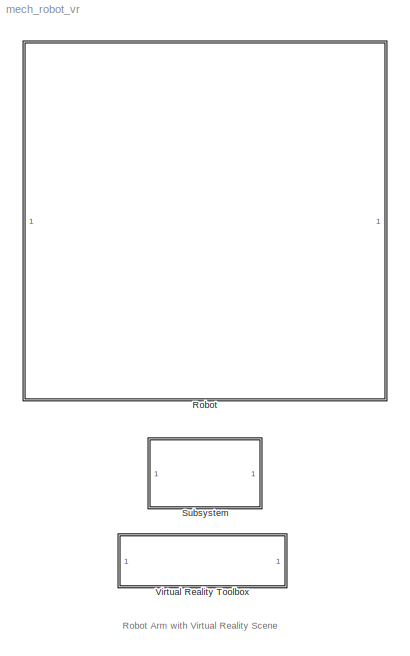
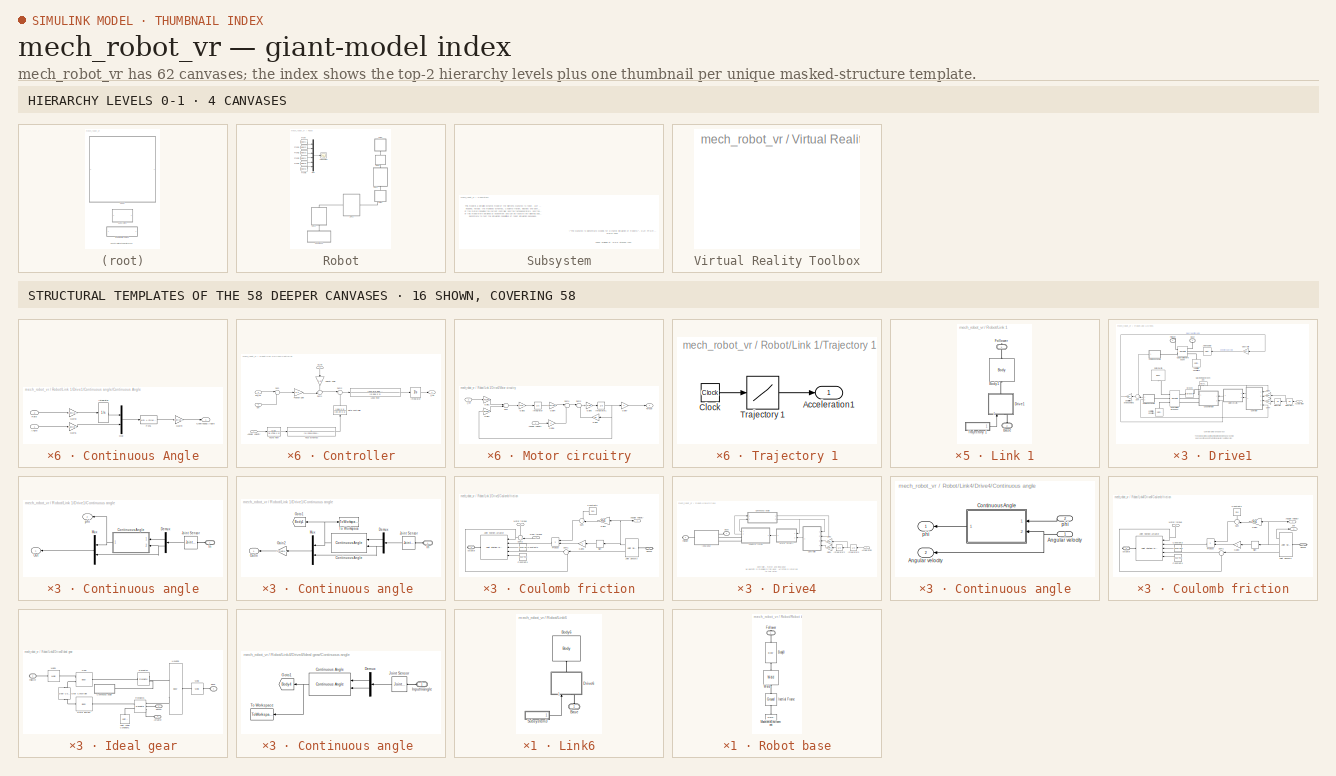
[diagram: thumbnail index - top-2 hierarchy levels (4 canvases) + 16 structural-template representatives of the remaining 58 canvases]
MODEL mech_robot_vr
KIND model
CONFIG PreLoadFcn = load mech_robot_images;mech_robot_data;
BLOCK [SubSystem] Robot
  FunctionWithSeparateData = off
  MaskDisplay = image(robot);\n\n
  MaskHideContents = off
  MaskIconFrame = on
  MaskIconOpaque = on
  MaskIconRotate = none
  MaskIconUnits = autoscale
  MinAlgLoopOccurrences = off
  Opaque = off
  Ports = []
  PropExecContextOutsideSubsystem = off
  RTWSystemCode = Auto
  RequestExecContextInheritance = off
BLOCK [From] Robot/From
  CloseFcn = tagdialog Close
  GotoTag = Body1
BLOCK [From] Robot/From1
  CloseFcn = tagdialog Close
  GotoTag = Body2
BLOCK [From] Robot/From2
  CloseFcn = tagdialog Close
  GotoTag = Body3
BLOCK [From] Robot/From3
  CloseFcn = tagdialog Close
  GotoTag = Body4
BLOCK [From] Robot/From4
  CloseFcn = tagdialog Close
  GotoTag = Body5
BLOCK [From] Robot/From6
  CloseFcn = tagdialog Close
  GotoTag = Body6
BLOCK [Scope] Robot/Joint Angles
  DataFormat = StructureWithTime
  Floating = off
  NumInputPorts = 1
  Ports = [1]
  SampleTime = 0
BLOCK [SubSystem] Robot/Link 1
  FunctionWithSeparateData = off
  MaskDisplay = image(rbody1)
  MaskHideContents = off
  MaskIconFrame = on
  MaskIconOpaque = on
  MaskIconRotate = none
  MaskIconUnits = autoscale
  MinAlgLoopOccurrences = off
  Opaque = off
  Ports = [0, 0, 0, 0, 0, 1, 1]
  PropExecContextOutsideSubsystem = off
  RTWSystemCode = Auto
  RequestExecContextInheritance = off
BLOCK [PMIOPort] Robot/Link 1/Base
  Port = 2
  Side = Left
BLOCK [Reference] Robot/Link 1/Body1  REF=mblibv1/Bodies/Body
  AttachedToCS = 1
  BodyColor = [0.5 0.5 0.5]
  CG = Left$CG$[0 -0.1750+0.25/2 0]$WORLD$WORLD$m$[0 0 0]$Euler X-Y-Z$deg$WORLD$false
  CGPos = [0 -0.1750+0.25/2 0]
  CGRot = [0 0 0]
  CS0Pos = []
  CS0Rot = []
  CS10Pos = [-0.075 0.075 -0.1]
  CS10Rot = [0 0 0]
  CS11Pos = []
  CS11Rot = []
  CS12Pos = []
  CS12Rot = []
  CS13Pos = []
  CS13Rot = []
  CS14Pos = []
  CS14Rot = []
  CS15Pos = []
  CS15Rot = []
  CS16Pos = []
  CS16Rot = []
  CS17Pos = []
  CS17Rot = []
  CS18Pos = []
  CS18Rot = []
  CS19Pos = []
  CS19Rot = []
  CS1Pos = [0 -0.1750 0]
  CS1Rot = [0 0 0]
  CS20Pos = []
  CS20Rot = []
  CS2Pos = [0.075 0 0]
  CS2Rot = [0 0 0]
  CS3Pos = [-0.075 -0.1750 0.1]
  CS3Rot = [0 0 0]
  CS4Pos = [0.075 -0.1750 0.1]
  CS4Rot = [0 0 0]
  CS5Pos = [0.075 -0.1750 -0.1]
  CS5Rot = [0 0 0]
  CS6Pos = [-0.075 -0.1750 -0.1]
  CS6Rot = [0 0 0]
  CS7Pos = [-0.075 0.075 0.1]
  CS7Rot = [0 0 0]
  CS8Pos = [0.075 0.075 0.1]
  CS8Rot = [0 0 0]
  CS9Pos = [0.075 0.075 -0.1]
  CS9Rot = [0 0 0]
  ClassName = Body
  Density = 1
  DensityUnits = kg/m^3
  DensityUse = false
  Description = Mechanical Blockset
  DialogClass = MechanicalBodyBlock
  DialogController = MECH.DynMechDlgSource
  GraphicsMode = 1
  GraphicsObj = []
  Inertia = diag([0.7 1.16 1])*5E-1
  InertiaUnits = kg*m^2
  LConnTagsString = CS1
  LeftPortType = workingframe
  Mass = 50
  MassUnits = kg
  PhysicalDomain = mechanical
  Ports = [0, 0, 0, 0, 0, 1, 1]
  RConnTagsString = CS2
  RightPortType = workingframe
  Shape = Cylinder
  ShapeDims = [1 1]
  ShapeUnits = m
  ShapeUse = false
  SourceBlock = mblibv1/Bodies/Body
  SourceType = Body
  SubClassName = Unknown
  Tag = Factory generic
  WorkingFrames = Left$CS1$[0 -0.1750 0]$WORLD$WORLD$m$[0 0 0]$Euler X-Y-Z$deg$WORLD$true#Right$CS2$[0.075 0 0]$WORLD$WORLD$m$[0 0 0]$Euler X-Y-Z$deg$WORLD$true#Right$CS3$[-0.075 -0.1750 0.1]$CG$CG$m$[0 0 0]$Euler X-Y-Z$deg$WORLD$false#Right$CS4$[0.075 -0.1750 0.1]$CG$CG$m$[0 0 0]$Euler X-Y-Z$deg$WORLD$false#Right$CS5$[0.075 -0.1750 -0.1]$CG$CG$m$[0 0 0]$Euler X-Y-Z$deg$WORLD$false#Right$CS6$[-0.075 -0.1750 -0.1]$C...<+335ch>
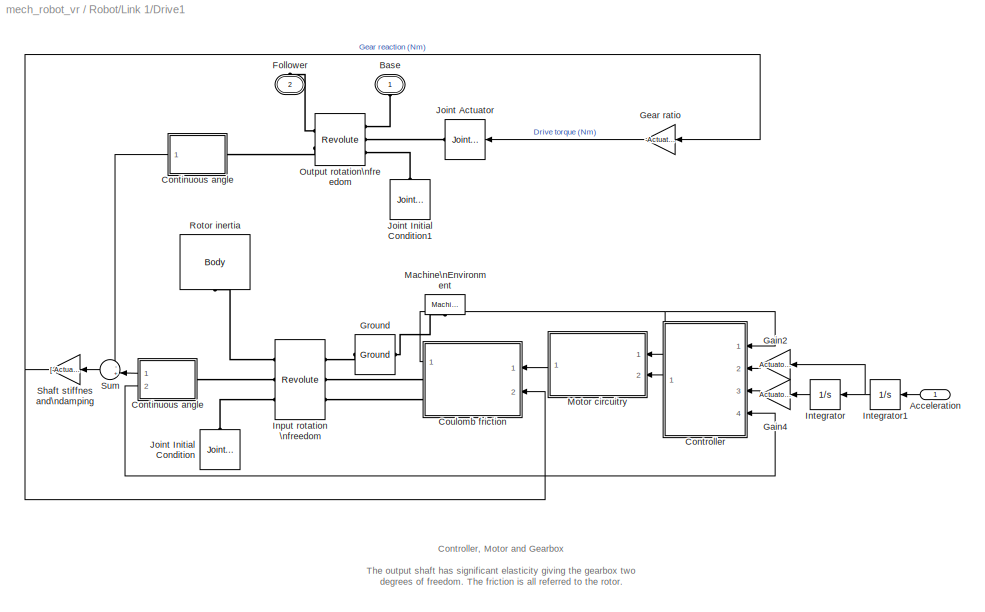
BLOCK [SubSystem] Robot/Link 1/Drive1
  AttributesFormatString = \\n
  FunctionWithSeparateData = off
  MaskCallbackString = |
  MaskDisplay = plot(-80,-80,80,80,[0,9,18,24,29,30,29,24,18,9,0,-9,-18,-24,-29,-30,-29,-24,-18,-9,0],[30,29,24,18,9,0,-9,-18,-24,-29,-30,-29,-24,-18,-9,0,9,18,24,29,30],[-29,-35,-35,-29],[-8,-8,8,8],[29,35,35,29],[-8,-8,8,8],[-35,-55],[0,0],[35,55],[0,0],[-78,-50,-50,-49,-45,-39,-33,-26,-21,-18,-17,-19,-22,-22,-26,-27,-25,-22,-16,-9,-3,2,6,6,4,1,1,-3,-4,-2,2,7,14,20,26,29,30,28,24,24,21,20,21,25,31,37,44,49,50,5...<+266ch>  <repeated x6 — deduplicated; at blocks: Drive1, Drive2, Drive3, Drive4, Drive5, Drive6>
  MaskEnableString = on,on
  MaskHideContents = off
  MaskIconFrame = on
  MaskIconOpaque = on
  MaskIconRotate = none
  MaskIconUnits = autoscale
  MaskPromptString = Initial angle (rad)|Actuator data structure
  MaskStyleString = edit,edit
  MaskTabNameString = ,
  MaskToolTipString = on,on
  MaskTunableValueString = on,on
  MaskValueString = -1|Actuator{1}
  MaskVarAliasString = ,
  MaskVariables = q0=@1;Actuator=@2;
  MaskVisibilityString = on,on
  MinAlgLoopOccurrences = off
  Opaque = off
  Ports = [1, 0, 0, 0, 0, 1, 1]
  PropExecContextOutsideSubsystem = off
  RTWSystemCode = Auto
  RequestExecContextInheritance = off
BLOCK [Inport] Robot/Link 1/Drive1/Acceleration
  IconDisplay = Port number
  OutDataType = sfix(16)
  OutScaling = 2^0
BLOCK [PMIOPort] Robot/Link 1/Drive1/Base
  Port = 1
  Side = Left
  Tag = PMCPort
BLOCK [SubSystem] Robot/Link 1/Drive1/Continuous angle
  FunctionWithSeparateData = off
  MaskHideContents = off
  MinAlgLoopOccurrences = off
  Opaque = off
  Ports = [0, 2, 0, 0, 0, 1]
  PropExecContextOutsideSubsystem = off
  RTWSystemCode = Auto
  RequestExecContextInheritance = off
BLOCK [SubSystem] Robot/Link 1/Drive1/Continuous angle 
  FunctionWithSeparateData = off
  MaskHideContents = off
  MinAlgLoopOccurrences = off
  Opaque = off
  Ports = [0, 1, 0, 0, 0, 1]
  PropExecContextOutsideSubsystem = off
  RTWSystemCode = Auto
  RequestExecContextInheritance = off
BLOCK [Reference] Robot/Link 1/Drive1/Continuous angle /Continuous Angle  REF=mblibv1/Utilities/Continuous Angle
  FunctionWithSeparateData = off
  Ports = [2, 1]
  RTWMemSecDataConstants = Inherit from model
  RTWMemSecDataInternal = Inherit from model
  RTWMemSecDataParameters = Inherit from model
  RTWMemSecFuncExecute = Inherit from model
  RTWMemSecFuncInitTerm = Inherit from model
  ShowPortLabels = FromPortIcon
  SourceBlock = mblibv1/Utilities/Continuous Angle
  SourceType = Continuous Angle
  SystemSampleTime = -1
  Tag = Factory continuousAngle
  rad = rad
  rads = rad/s
BLOCK [Demux] Robot/Link 1/Drive1/Continuous angle /Demux
  Outputs = 2
  Ports = [1, 2]
BLOCK [Gain] Robot/Link 1/Drive1/Continuous angle /Gain2
  Gain = Actuator.GearRatio
  OutDataType = sfix(16)
  OutScaling = 2^0
  ParameterDataType = sfix(16)
  ParameterScaling = 2^0
BLOCK [Goto] Robot/Link 1/Drive1/Continuous angle /Goto1
  GotoTag = Body1
  TagVisibility = global
BLOCK [PMIOPort] Robot/Link 1/Drive1/Continuous angle /In
  Port = 1
  Side = Left
BLOCK [Reference] Robot/Link 1/Drive1/Continuous angle /Joint Sensor  REF=mblibv1/Sensors & \nActuators/Joint Sensor
  Acceleration = off
  AccelerationUnits = m/s^2
  ActiveIO = on
  Angle = on
  AngleUnits = rad
  ArcAcceleration = off
  ArcAccelerationUnits = deg/s^2
  ArcVelocity = on
  ArcVelocityUnits = rad/s
  ClassName = JointSensor
  CoordPosition = on
  CoordPositionUnits = m
  DialogClass = MechanicalSensorBlock
  DialogController = MECH.DynMechDlgSource
  Force = off
  ForceUnits = N
  FunctionWithSeparateData = off
  Muxed = on
  OutputVector = [ 1 1 ]
  PhysicalDomain = Mechanical
  PortType = blob
  Ports = [0, 1, 0, 0, 0, 1]
  Pose = off
  Primitive = R1
  Quaternion = on
  QuaternionDDT = off
  QuaternionDT = off
  QuaternionUnits = off
  RTWMemSecDataConstants = Inherit from model
  RTWMemSecDataInternal = Inherit from model
  RTWMemSecDataParameters = Inherit from model
  RTWMemSecFuncExecute = Inherit from model
  RTWMemSecFuncInitTerm = Inherit from model
  ReactionForce = off
  ReactionForceUnits = N
  ReactionMoment = off
  ReactionMomentUnits = N-m
  ReactionReferenceFrame = Absolute (World)
  ReactionSensedSide = Base
  ReferenceFrame = Absolute (INERTIAL)
  ShowPortLabels = FromPortIcon
  SourceBlock = mblibv1/Sensors & \nActuators/Joint Sensor
  SourceType = Joint Sensor
  SystemSampleTime = -1
  Torque = off
  TorqueUnits = N-m
  Velocity = off
  VelocityUnits = m/s
  Width = 2
BLOCK [Mux] Robot/Link 1/Drive1/Continuous angle /Mux
  DisplayOption = bar
  Inputs = 2
  Ports = [2, 1]
BLOCK [Outport] Robot/Link 1/Drive1/Continuous angle /Out\n
  IconDisplay = Port number
  OutDataType = sfix(16)
  OutScaling = 2^0
BLOCK [ToWorkspace] Robot/Link 1/Drive1/Continuous angle /To Workspace
  MaxDataPoints = inf
  SampleTime = -1
  SaveFormat = Structure With Time
  VariableName = Body1_D
BLOCK [SubSystem] Robot/Link 1/Drive1/Continuous angle/Continuous Angle
  AncestorBlock = mblibv1/Utilities/Continuous Angle
  FunctionWithSeparateData = off
  MaskCallbackString = |
  MaskDescription = Outputs a continuous, unbounded angle given a discontinuous, bounded angle and the angular velocity. Choose units for the angle and the angular velocity (rate).
  MaskEnableString = on,on
  MaskHelp = web(mech_help('continuousangle'))
  MaskHideContents = off
  MaskIconFrame = on
  MaskIconOpaque = on
  MaskIconRotate = none
  MaskIconUnits = autoscale
  MaskPromptString = Angle measured in:|Rate measured in:
  MaskStyleString = popup(rad|deg),popup(rad/s|deg/s)
  MaskTabNameString = ,
  MaskToolTipString = on,on
  MaskTunableValueString = on,on
  MaskValueString = rad|rad/s
  MaskVarAliasString = ,
  MaskVariables = rad=@1;rads=@2;
  MaskVisibilityString = on,on
  MinAlgLoopOccurrences = off
  Opaque = off
  Ports = [2, 1]
  PropExecContextOutsideSubsystem = off
  RTWSystemCode = Auto
  RequestExecContextInheritance = off
  Tag = Factory continuousAngle
BLOCK [Inport] Robot/Link 1/Drive1/Continuous angle/Continuous Angle/Angle
  IconDisplay = Port number
  OutDataType = sfix(16)
  OutScaling = 2^0
BLOCK [Outport] Robot/Link 1/Drive1/Continuous angle/Continuous Angle/Continuous Angle
  IconDisplay = Port number
  OutDataType = sfix(16)
  OutScaling = 2^0
BLOCK [Fcn] Robot/Link 1/Drive1/Continuous angle/Continuous Angle/Fcn1
  Expr = u(2) + (2*(u(1) > u(2)) - 1)*2*pi*floor(abs(u(1)-u(2))/(2*pi) + 0.5)
BLOCK [Gain] Robot/Link 1/Drive1/Continuous angle/Continuous Angle/Gain1
  Gain = rad+(pi/180-2)*(rad-1)
  OutDataType = sfix(16)
  OutScaling = 2^0
  ParameterDataType = sfix(16)
  ParameterScaling = 2^0
BLOCK [Gain] Robot/Link 1/Drive1/Continuous angle/Continuous Angle/Gain3
  Gain = rads+(pi/180-2)*(rads-1)
  OutDataType = sfix(16)
  OutScaling = 2^0
  ParameterDataType = sfix(16)
  ParameterScaling = 2^0
BLOCK [Gain] Robot/Link 1/Drive1/Continuous angle/Continuous Angle/Gain4
  Gain = rad+(180/pi-2)*(rad-1)
  OutDataType = sfix(16)
  OutScaling = 2^0
  ParameterDataType = sfix(16)
  ParameterScaling = 2^0
BLOCK [Integrator] Robot/Link 1/Drive1/Continuous angle/Continuous Angle/Integrator
  AbsoluteTolerance = 1e-3
  InitialCondition = q0*Actuator.GearRatio
  Ports = [1, 1]
  ZeroCross = off
BLOCK [Mux] Robot/Link 1/Drive1/Continuous angle/Continuous Angle/Mux
  DisplayOption = bar
  Inputs = 2
  Ports = [2, 1]
BLOCK [Inport] Robot/Link 1/Drive1/Continuous angle/Continuous Angle/Rate
  IconDisplay = Port number
  OutDataType = sfix(16)
  OutScaling = 2^0
  Port = 2
BLOCK [Demux] Robot/Link 1/Drive1/Continuous angle/Demux
  Outputs = 2
  Ports = [1, 2]
BLOCK [PMIOPort] Robot/Link 1/Drive1/Continuous angle/In
  Port = 1
  Side = Left
BLOCK [Reference] Robot/Link 1/Drive1/Continuous angle/Joint Sensor  REF=mblibv1/Sensors & \nActuators/Joint Sensor
  Acceleration = off
  AccelerationUnits = m/s^2
  ActiveIO = on
  Angle = on
  AngleUnits = rad
  ArcAcceleration = off
  ArcAccelerationUnits = deg/s^2
  ArcVelocity = on
  ArcVelocityUnits = rad/s
  ClassName = JointSensor
  CoordPosition = on
  CoordPositionUnits = m
  DialogClass = MechanicalSensorBlock
  DialogController = MECH.DynMechDlgSource
  Force = off
  ForceUnits = N
  FunctionWithSeparateData = off
  Muxed = on
  OutputVector = [ 1 1 ]
  PhysicalDomain = Mechanical
  PortType = blob
  Ports = [0, 1, 0, 0, 0, 1]
  Pose = off
  Primitive = R1
  Quaternion = on
  QuaternionDDT = off
  QuaternionDT = off
  QuaternionUnits = off
  RTWMemSecDataConstants = Inherit from model
  RTWMemSecDataInternal = Inherit from model
  RTWMemSecDataParameters = Inherit from model
  RTWMemSecFuncExecute = Inherit from model
  RTWMemSecFuncInitTerm = Inherit from model
  ReactionForce = off
  ReactionForceUnits = N
  ReactionMoment = off
  ReactionMomentUnits = N-m
  ReactionReferenceFrame = Absolute (World)
  ReactionSensedSide = Base
  ReferenceFrame = Absolute (INERTIAL)
  ShowPortLabels = FromPortIcon
  SourceBlock = mblibv1/Sensors & \nActuators/Joint Sensor
  SourceType = Joint Sensor
  SystemSampleTime = -1
  Torque = off
  TorqueUnits = N-m
  Velocity = off
  VelocityUnits = m/s
  Width = 2
BLOCK [Mux] Robot/Link 1/Drive1/Continuous angle/Mux
  DisplayOption = bar
  Inputs = 2
  Ports = [2, 1]
BLOCK [Outport] Robot/Link 1/Drive1/Continuous angle/Out
  IconDisplay = Port number
  OutDataType = sfix(16)
  OutScaling = 2^0
BLOCK [Outport] Robot/Link 1/Drive1/Continuous angle/phi
  IconDisplay = Port number
  OutDataType = sfix(16)
  OutScaling = 2^0
  Port = 2
BLOCK [SubSystem] Robot/Link 1/Drive1/Controller
  FunctionWithSeparateData = off
  MaskHideContents = off
  MinAlgLoopOccurrences = off
  Opaque = off
  Ports = [4, 1]
  PropExecContextOutsideSubsystem = off
  RTWSystemCode = Auto
  RequestExecContextInheritance = off
BLOCK [Inport] Robot/Link 1/Drive1/Controller/Angular velocity
  IconDisplay = Port number
  OutDataType = sfix(16)
  OutScaling = 2^0
BLOCK [Integrator] Robot/Link 1/Drive1/Controller/Integrator
  Ports = [1, 1]
  ZeroCross = off
BLOCK [TransferFcn] Robot/Link 1/Drive1/Controller/Lead filter
  Denominator = [0.56e-3 1]
  Numerator = [340.8*9.95e-3 340.8]
BLOCK [Gain] Robot/Link 1/Drive1/Controller/Position gain
  Gain = 0.3
  OutDataType = sfix(16)
  OutScaling = 2^0
  ParameterDataType = sfix(16)
  ParameterScaling = 2^0
BLOCK [TransferFcn] Robot/Link 1/Drive1/Controller/Rate controller
  Denominator = [20.2e-3 1]
  Numerator = [40e-3 1]
BLOCK [Sum] Robot/Link 1/Drive1/Controller/Sum
  IconShape = round
  InputSameDT = off
  Inputs = |+-
  OutDataType = sfix(16)
  OutDataTypeMode = Inherit via internal rule
  OutDataTypeStr = Inherit: Inherit via internal rule
  OutScaling = 2^0
  Ports = [2, 1]
BLOCK [Sum] Robot/Link 1/Drive1/Controller/Sum1
  IconShape = round
  InputSameDT = off
  Inputs = ++|
  OutDataType = sfix(16)
  OutDataTypeMode = Inherit via internal rule
  OutDataTypeStr = Inherit: Inherit via internal rule
  OutScaling = 2^0
  Ports = [2, 1]
BLOCK [Sum] Robot/Link 1/Drive1/Controller/Sum2
  IconShape = round
  InputSameDT = off
  Inputs = |+-
  OutDataType = sfix(16)
  OutDataTypeMode = Inherit via internal rule
  OutDataTypeStr = Inherit: Inherit via internal rule
  OutScaling = 2^0
  Ports = [2, 1]
BLOCK [TransferFcn] Robot/Link 1/Drive1/Controller/Tacho filter
  Denominator = [8.475e-4  1]
  Numerator = 0.03
BLOCK [TransferFcn] Robot/Link 1/Drive1/Controller/Taco dynamics
  Denominator = [1/(2014*2014)   2*0.294/2014  1]
  Numerator = 1
BLOCK [Gain] Robot/Link 1/Drive1/Controller/Velocity gain
  Gain = 0.03
  OutDataType = sfix(16)
  OutScaling = 2^0
  ParameterDataType = sfix(16)
  ParameterScaling = 2^0
BLOCK [Outport] Robot/Link 1/Drive1/Controller/i_ref
  IconDisplay = Port number
  OutDataType = sfix(16)
  OutScaling = 2^0
BLOCK [Inport] Robot/Link 1/Drive1/Controller/phi
  IconDisplay = Port number
  OutDataType = sfix(16)
  OutScaling = 2^0
  Port = 4
BLOCK [Inport] Robot/Link 1/Drive1/Controller/phi_ref
  IconDisplay = Port number
  OutDataType = sfix(16)
  OutScaling = 2^0
  Port = 3
BLOCK [Inport] Robot/Link 1/Drive1/Controller/w_ref
  IconDisplay = Port number
  OutDataType = sfix(16)
  OutScaling = 2^0
  Port = 2
BLOCK [SubSystem] Robot/Link 1/Drive1/Coulomb friction
  FunctionWithSeparateData = off
  MaskCallbackString = ||
  MaskDisplay = plot([-2 0 0 2],[-2 -1 1 2]);\nplot([-5 5],[0 0]);\nplot([0 0],[-5 5]);\nplot([-0.02 -0.02],[-3 3]);\nplot([-0.04 -0.04],[-3 3]);\nplot([-0.06 -0.06],[-3 3]);\nplot([-0.08 -0.08],[-3 3]);\nplot([-0.1 -0.1],[-3 3]);\nplot([0.02 0.02],[-3 3]);\nplot([0.04 0.04],[-3 3]);\nplot([0.06 0.06],[-3 3]);\nplot([0.08 0.08],[-3 3]);\nplot([0.1 0.1],[-3 3]);\nplot([-2 0],[-2.03 -1.03]);\nplot([-2 0],[-2.06 -1....<+389ch>  <repeated x6 — deduplicated; at blocks: Coulomb friction>
  MaskEnableString = on,on,on
  MaskHideContents = off
  MaskIconFrame = on
  MaskIconOpaque = on
  MaskIconRotate = none
  MaskIconUnits = autoscale
  MaskPromptString = Peak ratio|Friction gain (Nm.s/rad)|Friction constant (Nm)
  MaskStyleString = edit,edit,edit
  MaskTabNameString = ,,
  MaskToolTipString = on,on,on
  MaskTunableValueString = on,on,on
  MaskValueString = Actuator.PeakRatio|Actuator.FrictionGain|Actuator.FrictionConstant
  MaskVarAliasString = ,,
  MaskVariables = peak=@1;Rv1=@2;Rv0=@3;
  MaskVisibilityString = on,on,on
  MinAlgLoopOccurrences = off
  Opaque = off
  Ports = [2, 1, 0, 0, 0, 0, 2]
  PropExecContextOutsideSubsystem = off
  RTWSystemCode = Auto
  RequestExecContextInheritance = off
BLOCK [PMIOPort] Robot/Link 1/Drive1/Coulomb friction/Actuator
  Port = 2
  Side = Right
BLOCK [Outport] Robot/Link 1/Drive1/Coulomb friction/Angular velocity
  IconDisplay = Port number
  OutDataType = sfix(16)
  OutScaling = 2^0
BLOCK [Constant] Robot/Link 1/Drive1/Coulomb friction/Constant2
  OutDataType = sfix(16)
  OutScaling = 2^0
  Value = Rv0
BLOCK [Constant] Robot/Link 1/Drive1/Coulomb friction/Constant3
  OutDataType = sfix(16)
  OutScaling = 2^0
  Value = -peak*Rv0
BLOCK [Constant] Robot/Link 1/Drive1/Coulomb friction/Constant4
  OutDataType = sfix(16)
  OutScaling = 2^0
  Value = peak*Rv0
BLOCK [Gain] Robot/Link 1/Drive1/Coulomb friction/Gain3
  Gain = -1
  OutDataType = sfix(16)
  OutScaling = 2^0
  ParameterDataType = sfix(16)
  ParameterScaling = 2^0
BLOCK [Gain] Robot/Link 1/Drive1/Coulomb friction/Gain4
  Gain = Rv1
  OutDataType = sfix(16)
  OutScaling = 2^0
  ParameterDataType = sfix(16)
  ParameterScaling = 2^0
BLOCK [Inport] Robot/Link 1/Drive1/Coulomb friction/Gear torque
  IconDisplay = Port number
  OutDataType = sfix(16)
  OutScaling = 2^0
  Port = 2
BLOCK [Reference] Robot/Link 1/Drive1/Coulomb friction/Joint Sensor3  REF=mblibv1/Sensors & \nActuators/Joint Sensor
  Acceleration = off
  AccelerationUnits = m/s^2
  ActiveIO = on
  Angle = off
  AngleUnits = rad
  ArcAcceleration = off
  ArcAccelerationUnits = deg/s^2
  ArcVelocity = on
  ArcVelocityUnits = rad/s
  ClassName = JointSensor
  CoordPosition = off
  CoordPositionUnits = m
  Description = Mechanical Blockset
  DialogClass = MechanicalSensorBlock
  DialogController = MECH.DynMechDlgSource
  Force = off
  ForceUnits = N
  FunctionWithSeparateData = off
  Muxed = off
  OutputVector = [ 1 1 ]
  PhysicalDomain = Mechanical
  PortType = blob
  Ports = [0, 2, 0, 0, 0, 1]
  Pose = off
  Primitive = R1
  Quaternion = off
  QuaternionDDT = off
  QuaternionDT = off
  QuaternionUnits = off
  RTWMemSecDataConstants = Inherit from model
  RTWMemSecDataInternal = Inherit from model
  RTWMemSecDataParameters = Inherit from model
  RTWMemSecFuncExecute = Inherit from model
  RTWMemSecFuncInitTerm = Inherit from model
  ReactionForce = off
  ReactionForceUnits = N
  ReactionMoment = off
  ReactionMomentUnits = N-m
  ReactionReferenceFrame = Absolute (World)
  ReactionSensedSide = Base
  ReferenceFrame = Absolute (INERTIAL)
  ShowPortLabels = FromPortIcon
  SourceBlock = mblibv1/Sensors & \nActuators/Joint Sensor
  SourceType = Joint Sensor
  SystemSampleTime = -1
  Torque = on
  TorqueUnits = N-m
  Velocity = off
  VelocityUnits = m/s
  Width = 2
BLOCK [Reference] Robot/Link 1/Drive1/Coulomb friction/Joint Stiction Actuator  REF=mblibv1/Sensors & \nActuators/Joint Stiction Actuator
  AccelerationUnits = m/s^2
  ActiveIO = on
  ActuationStyle = Force
  AngleUnits = deg
  ArcAccelerationUnits = deg/s^2
  ArcVelocityUnits = deg/s
  ClassName = JointStictionActuator
  CoordPositionUnits = m
  Description = Mechanical Blockset
  DialogClass = EventActuatorBlock
  DialogController = MECH.DynMechDlgSource
  ExternalForceUnits = N
  ExternalTorqueUnits = N-m
  ForceUnits = N
  FrictionalForceUnits = N
  FrictionalTorqueUnits = N-m
  FunctionWithSeparateData = off
  LockingTolerance = 1e-3
  PhysicalDomain = Mechanical
  PortType = blob
  Ports = [5, 0, 0, 0, 0, 0, 1]
  Primitive = R1
  RTWMemSecDataConstants = Inherit from model
  RTWMemSecDataInternal = Inherit from model
  RTWMemSecDataParameters = Inherit from model
  RTWMemSecFuncExecute = Inherit from model
  RTWMemSecFuncInitTerm = Inherit from model
  ShowPortLabels = FromPortIcon
  SourceBlock = mblibv1/Sensors & \nActuators/Joint Stiction Actuator
  SourceType = Joint Stiction Actuator
  SystemSampleTime = -1
  TorqueUnits = N-m
  VelocityUnits = m/s
  Width = 5
BLOCK [Inport] Robot/Link 1/Drive1/Coulomb friction/Motor torque
  IconDisplay = Port number
  OutDataType = sfix(16)
  OutScaling = 2^0
BLOCK [Product] Robot/Link 1/Drive1/Coulomb friction/Product
  OutDataType = sfix(16)
  OutScaling = 2^0
  Ports = [2, 1]
  RndMeth = Floor
BLOCK [PMIOPort] Robot/Link 1/Drive1/Coulomb friction/Sensor
  Port = 1
  Side = Right
BLOCK [Signum] Robot/Link 1/Drive1/Coulomb friction/Sign
BLOCK [Sum] Robot/Link 1/Drive1/Coulomb friction/Sum
  IconShape = round
  Inputs = ++|
  OutDataType = sfix(16)
  OutScaling = 2^0
  Ports = [2, 1]
BLOCK [Sum] Robot/Link 1/Drive1/Coulomb friction/Sum1
  IconShape = round
  Inputs = |+-
  OutDataType = sfix(16)
  OutScaling = 2^0
  Ports = [2, 1]
BLOCK [Sum] Robot/Link 1/Drive1/Coulomb friction/Sum2
  IconShape = round
  InputSameDT = off
  Inputs = ++|
  OutDataType = sfix(16)
  OutDataTypeMode = Inherit via internal rule
  OutDataTypeStr = Inherit: Inherit via internal rule
  OutScaling = 2^0
  Ports = [2, 1]
BLOCK [PMIOPort] Robot/Link 1/Drive1/Follower
  Port = 2
  Side = Right
  Tag = PMCPort
BLOCK [Gain] Robot/Link 1/Drive1/Gain2
  Gain = Actuator.GearRatio
  OutDataType = sfix(16)
  OutScaling = 2^0
  ParameterDataType = sfix(16)
  ParameterScaling = 2^0
BLOCK [Gain] Robot/Link 1/Drive1/Gain4
  Gain = Actuator.GearRatio
  OutDataType = sfix(16)
  OutScaling = 2^0
  ParameterDataType = sfix(16)
  ParameterScaling = 2^0
BLOCK [Gain] Robot/Link 1/Drive1/Gear ratio
  Gain = -Actuator.GearRatio
  OutDataType = sfix(16)
  OutScaling = 2^0
  ParameterDataType = sfix(16)
  ParameterScaling = 2^0
BLOCK [Reference] Robot/Link 1/Drive1/Ground  REF=mblibv1/Bodies/Ground
  ClassName = Ground
  CoordPosition = [0 0 0]
  CoordPositionUnits = m
  DialogClass = GroundBlock
  DialogController = MECH.DynMechDlgSource
  FunctionWithSeparateData = off
  LeftPortType = env
  MachineId = [0 0]
  PhysicalDomain = Mechanical
  Ports = [0, 0, 0, 0, 0, 1, 1]
  RTWMemSecDataConstants = Inherit from model
  RTWMemSecDataInternal = Inherit from model
  RTWMemSecDataParameters = Inherit from model
  RTWMemSecFuncExecute = Inherit from model
  RTWMemSecFuncInitTerm = Inherit from model
  RightPortType = workingframe
  ShowEnvPort = on
  ShowPortLabels = FromPortIcon
  SourceBlock = mblibv1/Bodies/Ground
  SourceType = Ground
  StateVectorMgrId = -1
  SystemSampleTime = -1
  UserData = DataTag0
  UserDataPersistent = on
BLOCK [Reference] Robot/Link 1/Drive1/Input rotation \nfreedom  REF=mblibv1/Joints/Revolute
  ClassName = Joint
  CutJoint = off
  Description = Mechanical Blockset
  DialogClass = JointBlock
  DialogController = MECH.DynMechDlgSource
  LConnTagsString = __newl0|SA1|SA2
  LeftPortType = blob
  MarkAsCut = off
  NumSAPorts = 4
  PhysicalDomain = mechanical
  Ports = [0, 0, 0, 0, 0, 3, 3]
  PrimitiveProps = R1$WORLD$Actuator.Axis$revolute
  Primitives = revolute
  R1Axis = Actuator.Axis
  RConnTagsString = __newr0|SA1|SA2
  RightPortType = blob
  SourceBlock = mblibv1/Joints/Revolute
  SourceType = Revolute
  SubClassName = Unknown
  Tag = Factory generic
BLOCK [Integrator] Robot/Link 1/Drive1/Integrator
  InitialCondition = q0
  Ports = [1, 1]
  ZeroCross = off
BLOCK [Integrator] Robot/Link 1/Drive1/Integrator1
  Ports = [1, 1]
  ZeroCross = off
BLOCK [Reference] Robot/Link 1/Drive1/Joint Actuator  REF=mblibv1/Sensors & \nActuators/Joint Actuator
  AccelerationUnits = m/s^2
  ActiveIO = on
  ActuationStyle = Force
  AngleUnits = deg
  ArcAccelerationUnits = deg/s^2
  ArcVelocityUnits = deg/s
  ClassName = JointActuator
  CoordPositionUnits = m
  DialogClass = MechanicalActuatorBlock
  DialogController = MECH.DynMechDlgSource
  ForceUnits = N
  FunctionWithSeparateData = off
  PhysicalDomain = Mechanical
  PortType = blob
  Ports = [1, 0, 0, 0, 0, 0, 1]
  Primitive = R1
  RTWMemSecDataConstants = Inherit from model
  RTWMemSecDataInternal = Inherit from model
  RTWMemSecDataParameters = Inherit from model
  RTWMemSecFuncExecute = Inherit from model
  RTWMemSecFuncInitTerm = Inherit from model
  ReferenceFrame = Absolute (INERTIAL)
  ShowPortLabels = FromPortIcon
  SourceBlock = mblibv1/Sensors & \nActuators/Joint Actuator
  SourceType = Joint Actuator
  SystemSampleTime = -1
  TorqueUnits = N-m
  VelocityUnits = m/s
  Width = 1
BLOCK [Reference] Robot/Link 1/Drive1/Joint Initial Condition  REF=mblibv1/Sensors & \nActuators/Joint Initial Condition
  AngleUnits = rad
  ArcVelocityUnits = deg/s
  ClassName = InitialCondition
  CoordPosition = q0*Actuator.GearRatio
  CoordPositionUnits = m
  DialogClass = InitialConditionBlock
  DialogController = MECH.DynMechDlgSource
  FunctionWithSeparateData = off
  InitialConditions = P1$false$0$m$rad$0$m/s$rad/s#P2$false$0$m$rad$0$m/s$rad/s#P3$false$0$m$rad$0$m/s$rad/s#R1$true$q0*Actuator.GearRatio$m$rad$0.0$m/s$deg/s#R2$false$0$m$rad$0$m/s$rad/s#R3$false$0$m$rad$0$m/s$rad/s#S$false$0$m$rad$0$m/s$rad/s  <repeated x3 — deduplicated; at blocks: Joint Initial Condition>
  P1PIC = 0
  P1VIC = 0
  P2PIC = 0
  P2VIC = 0
  P3PIC = 0
  P3VIC = 0
  PhysicalDomain = Mechanical
  Ports = [0, 0, 0, 0, 0, 0, 1]
  Primitive = R1
  R1PIC = q0*Actuator.GearRatio
  R1VIC = 0.0
  R2PIC = 0
  R2VIC = 0
  R3PIC = 0
  R3VIC = 0
  RTWMemSecDataConstants = Inherit from model
  RTWMemSecDataInternal = Inherit from model
  RTWMemSecDataParameters = Inherit from model
  RTWMemSecFuncExecute = Inherit from model
  RTWMemSecFuncInitTerm = Inherit from model
  SPIC = 0
  SVIC = 0
  ShowPortLabels = FromPortIcon
  SourceBlock = mblibv1/Sensors & \nActuators/Joint Initial Condition
  SourceType = Joint Initial Condition
  SystemSampleTime = -1
  Velocity = 0.0
  VelocityUnits = m/s
BLOCK [Reference] Robot/Link 1/Drive1/Joint Initial Condition1  REF=mblibv1/Sensors & \nActuators/Joint Initial Condition
  AngleUnits = rad
  ArcVelocityUnits = deg/s
  ClassName = InitialCondition
  CoordPosition = q0
  CoordPositionUnits = m
  DialogClass = InitialConditionBlock
  DialogController = MECH.DynMechDlgSource
  FunctionWithSeparateData = off
  InitialConditions = P1$false$0$m$rad$0$m/s$rad/s#P2$false$0$m$rad$0$m/s$rad/s#P3$false$0$m$rad$0$m/s$rad/s#R1$true$q0$m$rad$0.0$m/s$deg/s#R2$false$0$m$rad$0$m/s$rad/s#R3$false$0$m$rad$0$m/s$rad/s#S$false$0$m$rad$0$m/s$rad/s  <repeated x3 — deduplicated; at blocks: Joint Initial Condition1>
  P1PIC = 0
  P1VIC = 0
  P2PIC = 0
  P2VIC = 0
  P3PIC = 0
  P3VIC = 0
  PhysicalDomain = Mechanical
  Ports = [0, 0, 0, 0, 0, 0, 1]
  Primitive = R1
  R1PIC = q0
  R1VIC = 0.0
  R2PIC = 0
  R2VIC = 0
  R3PIC = 0
  R3VIC = 0
  RTWMemSecDataConstants = Inherit from model
  RTWMemSecDataInternal = Inherit from model
  RTWMemSecDataParameters = Inherit from model
  RTWMemSecFuncExecute = Inherit from model
  RTWMemSecFuncInitTerm = Inherit from model
  SPIC = 0
  SVIC = 0
  ShowPortLabels = FromPortIcon
  SourceBlock = mblibv1/Sensors & \nActuators/Joint Initial Condition
  SourceType = Joint Initial Condition
  SystemSampleTime = -1
  Velocity = 0.0
  VelocityUnits = m/s
BLOCK [Reference] Robot/Link 1/Drive1/Machine\nEnvironment  REF=mblibv1/Bodies/Machine\nEnvironment
  AnalysisType = Forward dynamics
  AngularAssemblyTolerance = 1e-3
  AngularAssemblyToleranceUnits = rad
  ClassName = Environment
  ConstraintAbsTolerance = 1e-4
  ConstraintRelTolerance = 1e-4
  ConstraintSolverType = Stabilizing
  DialogController = MECH.DialogSource
  DialogTemplateClass = MECH.MachineEnvironment
  Dimensionality = 3D Only
  FunctionWithSeparateData = off
  Gravity = [0 -9.81 0]
  GravityAsSignal = off
  GravityUnits = m/s^2
  LinearAssemblyTolerance = 1e-3
  LinearAssemblyToleranceUnits = m
  PerturbationSize = 1e-5
  PhysicalDomain = Mechanical
  PortType = env
  Ports = [0, 0, 0, 0, 0, 0, 1]
  RTWMemSecDataConstants = Inherit from model
  RTWMemSecDataInternal = Inherit from model
  RTWMemSecDataParameters = Inherit from model
  RTWMemSecFuncExecute = Inherit from model
  RTWMemSecFuncInitTerm = Inherit from model
  RedundancyAnalysisTolerance = 1e-14
  RedundancyAnalysisToleranceType = Automatically select tolerance
  ShowPortLabels = FromPortIcon
  SourceBlock = mblibv1/Bodies/Machine\nEnvironment
  SourceType = Machine Environment
  StatePerturbationType = Fixed
  SyncWhenCopied = off
  SystemSampleTime = -1
  Tag = Factory ground
  UseRobustSingularityHandling = off
  VisualizeMachine = on
BLOCK [SubSystem] Robot/Link 1/Drive1/Motor circuitry
  FunctionWithSeparateData = off
  MaskCallbackString = ||||||||||
  MaskDisplay = plot(-140,-140,140,140,2*[-30,-30,0,-30,-30,-55]+25,(2*[20,0,20,41,20,20]+8),[0,0]+25,(2*[0,40]+8),2*[37.5,0]+25,(2*[20,20]+8),2*[10,10,0]+25,(1*[-15,6,20]+12),1*[-65,-65,-20,-20,40,40,85,85,85,40,40,-20,-20],1*[48,-20,-20,-10,-10,-20,-20,48,-20,-20,-30,-30,-20])  <repeated x6 — deduplicated; at blocks: Motor circuitry>
  MaskEnableString = on,on,on,on,on,on,on,on,on,on,on
  MaskHideContents = off
  MaskIconFrame = on
  MaskIconOpaque = on
  MaskIconRotate = none
  MaskIconUnits = autoscale
  MaskPromptString = Ri (Ohms)|Ra (Ohms)|Rd1 (Ohms)|Rd2 (Ohms)|Rd3 (Ohms)|Rd4 (Ohms)|Rp1 (Ohms)|Rp2 (Ohms)|Motor gain (Nm/A)|Motor damping|Motor time constant
  MaskStyleString = edit,edit,edit,edit,edit,edit,edit,edit,edit,edit,edit
  MaskTabNameString = ,,,,,,,,,,
  MaskToolTipString = on,on,on,on,on,on,on,on,on,on,on
  MaskTunableValueString = on,on,on,on,on,on,on,on,on,on,on
  MaskValueString = 10|250|100|100|100|100|200|50|Actuator.MotorGain|Actuator.MotorDamping|Actuator.MotorConstant
  MaskVarAliasString = ,,,,,,,,,,
  MaskVariables = Ri=@1;Ra=@2;Rd1=@3;Rd2=@4;Rd3=@5;Rd4=@6;Rp1=@7;Rp2=@8;k=@9;d=@10;w=@11;
  MaskVisibilityString = on,on,on,on,on,on,on,on,on,on,on
  MinAlgLoopOccurrences = off
  Opaque = off
  Ports = [2, 1]
  PropExecContextOutsideSubsystem = off
  RTWSystemCode = Auto
  RequestExecContextInheritance = off
BLOCK [Inport] Robot/Link 1/Drive1/Motor circuitry/Angular velocity
  IconDisplay = Port number
  OutDataType = sfix(16)
  OutScaling = 2^0
BLOCK [Gain] Robot/Link 1/Drive1/Motor circuitry/Gain1
  Gain = -Rd1/Rd2
  OutDataType = sfix(16)
  OutScaling = 2^0
  ParameterDataType = sfix(16)
  ParameterScaling = 2^0
BLOCK [Gain] Robot/Link 1/Drive1/Motor circuitry/Gain2
  Gain = (Rd4/Rd2)*((Rd1+Rd2)/(Rd3+Rd4))
  OutDataType = sfix(16)
  OutScaling = 2^0
  ParameterDataType = sfix(16)
  ParameterScaling = 2^0
BLOCK [Gain] Robot/Link 1/Drive1/Motor circuitry/Gain3
  Gain = -1/(Ri*0.004*d/w)
  OutDataType = sfix(16)
  OutScaling = 2^0
  ParameterDataType = sfix(16)
  ParameterScaling = 2^0
BLOCK [Gain] Robot/Link 1/Drive1/Motor circuitry/Gain4
  Gain = (Rp2+Rp1)/Rp2
  OutDataType = sfix(16)
  OutScaling = 2^0
  ParameterDataType = sfix(16)
  ParameterScaling = 2^0
BLOCK [Gain] Robot/Link 1/Drive1/Motor circuitry/Gain5
  Gain = Ra
  OutDataType = sfix(16)
  OutScaling = 2^0
  ParameterDataType = sfix(16)
  ParameterScaling = 2^0
BLOCK [Gain] Robot/Link 1/Drive1/Motor circuitry/Gain6
  Gain = 2*d*w/250
  OutDataType = sfix(16)
  OutScaling = 2^0
  ParameterDataType = sfix(16)
  ParameterScaling = 2^0
BLOCK [Gain] Robot/Link 1/Drive1/Motor circuitry/Gain7
  Gain = k
  OutDataType = sfix(16)
  OutScaling = 2^0
  ParameterDataType = sfix(16)
  ParameterScaling = 2^0
BLOCK [Gain] Robot/Link 1/Drive1/Motor circuitry/Gain8
  Gain = k
  OutDataType = sfix(16)
  OutScaling = 2^0
  ParameterDataType = sfix(16)
  ParameterScaling = 2^0
BLOCK [Integrator] Robot/Link 1/Drive1/Motor circuitry/Integrator
  Ports = [1, 1]
  ZeroCross = off
BLOCK [Integrator] Robot/Link 1/Drive1/Motor circuitry/Integrator1
  Ports = [1, 1]
  ZeroCross = off
BLOCK [Sum] Robot/Link 1/Drive1/Motor circuitry/Sum
  IconShape = round
  OutDataType = sfix(16)
  OutScaling = 2^0
  Ports = [2, 1]
BLOCK [Sum] Robot/Link 1/Drive1/Motor circuitry/Sum1
  IconShape = round
  Inputs = |+-
  OutDataType = sfix(16)
  OutScaling = 2^0
  Ports = [2, 1]
BLOCK [Sum] Robot/Link 1/Drive1/Motor circuitry/Sum2
  IconShape = round
  Inputs = |+-
  OutDataType = sfix(16)
  OutScaling = 2^0
  Ports = [2, 1]
BLOCK [Outport] Robot/Link 1/Drive1/Motor circuitry/Torque
  IconDisplay = Port number
  OutDataType = sfix(16)
  OutScaling = 2^0
BLOCK [Inport] Robot/Link 1/Drive1/Motor circuitry/i_ref
  IconDisplay = Port number
  OutDataType = sfix(16)
  OutScaling = 2^0
  Port = 2
BLOCK [Reference] Robot/Link 1/Drive1/Output rotation\nfreedom  REF=mblibv1/Joints/Revolute
  ClassName = Joint
  CutJoint = off
  Description = Mechanical Blockset
  DialogClass = JointBlock
  DialogController = MECH.DynMechDlgSource
  LConnTagsString = __newl0|SA1|SA2
  LeftPortType = blob
  MarkAsCut = off
  NumSAPorts = 3
  PhysicalDomain = mechanical
  Ports = [0, 0, 0, 0, 0, 3, 2]
  PrimitiveProps = R1$WORLD$Actuator.Axis$revolute
  Primitives = revolute
  R1Axis = Actuator.Axis
  RConnTagsString = __newr0|SA1
  RightPortType = blob
  SourceBlock = mblibv1/Joints/Revolute
  SourceType = Revolute
  SubClassName = Unknown
  Tag = Factory generic
BLOCK [Reference] Robot/Link 1/Drive1/Rotor inertia  REF=mblibv1/Bodies/Body
  AttachedToCS = 1
  BodyColor = [0.5 0.5 0.5]
  CG = Left$CG$[0 0 0]$CS1$CS1$m$[0 0 0]$Euler X-Y-Z$deg$WORLD$false
  CGPos = [0 0 0]
  CGRot = [0 0 0]
  CS0Pos = []
  CS0Rot = []
  CS10Pos = []
  CS10Rot = []
  CS11Pos = []
  CS11Rot = []
  CS12Pos = []
  CS12Rot = []
  CS13Pos = []
  CS13Rot = []
  CS14Pos = []
  CS14Rot = []
  CS15Pos = []
  CS15Rot = []
  CS16Pos = []
  CS16Rot = []
  CS17Pos = []
  CS17Rot = []
  CS18Pos = []
  CS18Rot = []
  CS19Pos = []
  CS19Rot = []
  CS1Pos = [0 0 0]
  CS1Rot = [0 0 0]
  CS20Pos = []
  CS20Rot = []
  CS2Pos = []
  CS2Rot = []
  CS3Pos = []
  CS3Rot = []
  CS4Pos = []
  CS4Rot = []
  CS5Pos = []
  CS5Rot = []
  CS6Pos = []
  CS6Rot = []
  CS7Pos = []
  CS7Rot = []
  CS8Pos = []
  CS8Rot = []
  CS9Pos = []
  CS9Rot = []
  ClassName = Body
  Density = 1
  DensityUnits = kg/m^3
  DensityUse = false
  Description = Mechanical Blockset
  DialogClass = MechanicalBodyBlock
  DialogController = MECH.DynMechDlgSource
  GraphicsMode = 1
  GraphicsObj = []
  Inertia = Actuator.MotorInertia*eye(3)
  InertiaUnits = kg*m^2
  LConnTagsString = CS1
  LeftPortType = workingframe
  Mass = 0.5
  MassUnits = kg
  PhysicalDomain = mechanical
  Ports = [0, 0, 0, 0, 0, 1]
  RightPortType = workingframe
  Shape = Cylinder
  ShapeDims = [1 1]
  ShapeUnits = m
  ShapeUse = false
  SourceBlock = mblibv1/Bodies/Body
  SourceType = Body
  SubClassName = Unknown
  Tag = Factory generic
  WorkingFrames = Left$CS1$[0 0 0]$ADJOINING$ADJOINING$m$[0 0 0]$Euler X-Y-Z$deg$WORLD$true
BLOCK [Gain] Robot/Link 1/Drive1/Shaft stiffnes and\ndamping
  Gain = [-Actuator.ShaftStiffness -Actuator.ShaftDamping]
  Multiplication = Matrix(K*u)
  OutDataType = sfix(16)
  OutScaling = 2^0
  ParameterDataType = sfix(16)
  ParameterScaling = 2^0
BLOCK [Sum] Robot/Link 1/Drive1/Sum
  IconShape = round
  Inputs = -+|
  OutDataType = sfix(16)
  OutScaling = 2^0
  Ports = [2, 1]
BLOCK [PMIOPort] Robot/Link 1/Follower
  Port = 1
  Side = Right
BLOCK [SubSystem] Robot/Link 1/Trajectory 1
  FunctionWithSeparateData = off
  MaskHideContents = off
  MinAlgLoopOccurrences = off
  Opaque = off
  Ports = [0, 1]
  PropExecContextOutsideSubsystem = off
  RTWSystemCode = Auto
  RequestExecContextInheritance = off
BLOCK [Outport] Robot/Link 1/Trajectory 1/Acceleration1
  IconDisplay = Port number
  OutDataType = sfix(16)
  OutScaling = 2^0
BLOCK [Clock] Robot/Link 1/Trajectory 1/Clock
  Decimation = 10
BLOCK [Lookup] Robot/Link 1/Trajectory 1/Trajectory 1
  InputValues = [0    0.1000    0.1000    0.7400    0.7400    1.1200    1.1200    1.2000    1.2000    1.3000]
  OutDataType = sfix(16)
  OutScaling = 2^0
  Table = [30.0000   30.0000         0         0  -13.9600  -13.9600   28.7500   28.7500         0         0]
BLOCK [SubSystem] Robot/Link 2
  FunctionWithSeparateData = off
  MaskDisplay = image(rbody2);
  MaskHideContents = off
  MaskIconFrame = on
  MaskIconOpaque = on
  MaskIconRotate = port
  MaskIconUnits = autoscale
  MinAlgLoopOccurrences = off
  Opaque = off
  Ports = [0, 0, 0, 0, 0, 1, 1]
  PropExecContextOutsideSubsystem = off
  RTWSystemCode = Auto
  RequestExecContextInheritance = off
BLOCK [PMIOPort] Robot/Link 2/Base
  Port = 2
  Side = Left
BLOCK [Reference] Robot/Link 2/Body2  REF=mblibv1/Bodies/Body
  AttachedToCS = 1
  BodyColor = [0.5 0.5 0.5]
  CG = Left$CG$[0.172 0.205 0]$WORLD$WORLD$m$[0 0 0]$Euler X-Y-Z$deg$WORLD$false
  CGPos = [0.172 0.205 0]
  CGRot = [0 0 0]
  CS0Pos = []
  CS0Rot = []
  CS10Pos = [0.225 0.6 -0.1]
  CS10Rot = [0 0 0]
  CS11Pos = []
  CS11Rot = []
  CS12Pos = []
  CS12Rot = []
  CS13Pos = []
  CS13Rot = []
  CS14Pos = []
  CS14Rot = []
  CS15Pos = []
  CS15Rot = []
  CS16Pos = []
  CS16Rot = []
  CS17Pos = []
  CS17Rot = []
  CS18Pos = []
  CS18Rot = []
  CS19Pos = []
  CS19Rot = []
  CS1Pos = [0.075 0 0]
  CS1Rot = [0 0 0]
  CS20Pos = []
  CS20Rot = []
  CS2Pos = [0.075 0.5 0]
  CS2Rot = [0 0 0]
  CS3Pos = [0.075 -0.1 0.1]
  CS3Rot = [0 0 0]
  CS4Pos = [0.075 0.6 0.1]
  CS4Rot = [0 0 0]
  CS5Pos = [0.075 0.6 -0.1]
  CS5Rot = [0 0 0]
  CS6Pos = [0.075 -0.1 -0.1]
  CS6Rot = [0 0 0]
  CS7Pos = [0.225 -0.1 -0.1]
  CS7Rot = [0 0 0]
  CS8Pos = [0.225 -0.1 0.1]
  CS8Rot = [0 0 0]
  CS9Pos = [0.225 0.6 0.1]
  CS9Rot = [0 0 0]
  ClassName = Body
  Density = 1
  DensityUnits = kg/m^3
  DensityUse = false
  Description = Mechanical Blockset
  DialogClass = MechanicalBodyBlock
  DialogController = MECH.DynMechDlgSource
  GraphicsMode = 1
  GraphicsObj = []
  Inertia = [2.58 -0.46 0;-0.46 0.64 0;0 0 2.73]
  InertiaUnits = kg*m^2
  LConnTagsString = CS1
  LeftPortType = workingframe
  Mass = 56.5
  MassUnits = kg
  PhysicalDomain = mechanical
  Ports = [0, 0, 0, 0, 0, 1, 1]
  RConnTagsString = CS2
  RightPortType = workingframe
  Shape = Cylinder
  ShapeDims = [1 1]
  ShapeUnits = m
  ShapeUse = false
  SourceBlock = mblibv1/Bodies/Body
  SourceType = Body
  SubClassName = Unknown
  Tag = Factory generic
  WorkingFrames = Left$CS1$[0.075 0 0]$WORLD$WORLD$m$[0 0 0]$Euler X-Y-Z$deg$WORLD$true#Right$CS2$[0.075 0.5 0]$WORLD$WORLD$m$[0 0 0]$Euler X-Y-Z$deg$WORLD$true#Right$CS3$[0.075 -0.1 0.1]$WORLD$WORLD$m$[0 0 0]$Euler X-Y-Z$deg$WORLD$false#Right$CS4$[0.075 0.6 0.1]$WORLD$WORLD$m$[0 0 0]$Euler X-Y-Z$deg$WORLD$false#Right$CS5$[0.075 0.6 -0.1]$WORLD$WORLD$m$[0 0 0]$Euler X-Y-Z$deg$WORLD$false#Right$CS6$[0.075 -0.1 -0.1]...<+359ch>
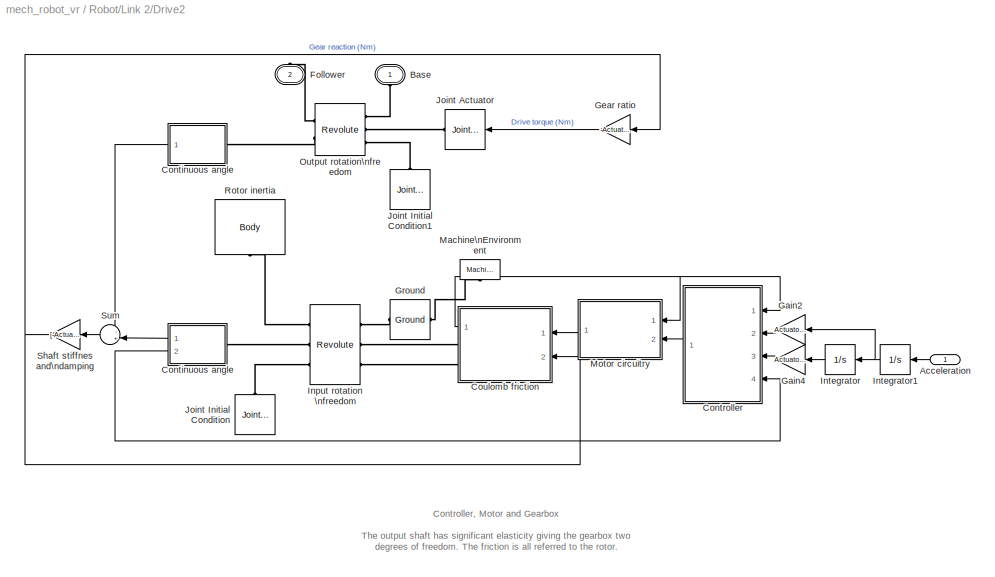
BLOCK [SubSystem] Robot/Link 2/Drive2
  FunctionWithSeparateData = off
  MaskCallbackString = |
  MaskEnableString = on,on
  MaskHideContents = off
  MaskIconFrame = on
  MaskIconOpaque = on
  MaskIconRotate = none
  MaskIconUnits = autoscale
  MaskPromptString = Initial angle (rad)|Actuator data structure
  MaskStyleString = edit,edit
  MaskTabNameString = ,
  MaskToolTipString = on,on
  MaskTunableValueString = on,on
  MaskValueString = 0.43|Actuator{2}
  MaskVarAliasString = ,
  MaskVariables = q0=@1;Actuator=@2;
  MaskVisibilityString = on,on
  MinAlgLoopOccurrences = off
  Opaque = off
  Ports = [1, 0, 0, 0, 0, 1, 1]
  PropExecContextOutsideSubsystem = off
  RTWSystemCode = Auto
  RequestExecContextInheritance = off
BLOCK [Inport] Robot/Link 2/Drive2/Acceleration
  IconDisplay = Port number
  OutDataType = sfix(16)
  OutScaling = 2^0
BLOCK [PMIOPort] Robot/Link 2/Drive2/Base
  Port = 1
  Side = Left
  Tag = PMCPort
BLOCK [SubSystem] Robot/Link 2/Drive2/Continuous angle
  FunctionWithSeparateData = off
  MaskHideContents = off
  MinAlgLoopOccurrences = off
  Opaque = off
  Ports = [0, 2, 0, 0, 0, 1]
  PropExecContextOutsideSubsystem = off
  RTWSystemCode = Auto
  RequestExecContextInheritance = off
BLOCK [SubSystem] Robot/Link 2/Drive2/Continuous angle 
  FunctionWithSeparateData = off
  MaskHideContents = off
  MinAlgLoopOccurrences = off
  Opaque = off
  Ports = [0, 1, 0, 0, 0, 1]
  PropExecContextOutsideSubsystem = off
  RTWSystemCode = Auto
  RequestExecContextInheritance = off
BLOCK [Reference] Robot/Link 2/Drive2/Continuous angle /Continuous Angle  REF=mblibv1/Utilities/Continuous Angle
  FunctionWithSeparateData = off
  Ports = [2, 1]
  RTWMemSecDataConstants = Inherit from model
  RTWMemSecDataInternal = Inherit from model
  RTWMemSecDataParameters = Inherit from model
  RTWMemSecFuncExecute = Inherit from model
  RTWMemSecFuncInitTerm = Inherit from model
  ShowPortLabels = FromPortIcon
  SourceBlock = mblibv1/Utilities/Continuous Angle
  SourceType = Continuous Angle
  SystemSampleTime = -1
  Tag = Factory continuousAngle
  rad = rad
  rads = rad/s
BLOCK [Demux] Robot/Link 2/Drive2/Continuous angle /Demux
  Outputs = 2
  Ports = [1, 2]
BLOCK [Gain] Robot/Link 2/Drive2/Continuous angle /Gain2
  Gain = Actuator.GearRatio
  OutDataType = sfix(16)
  OutScaling = 2^0
  ParameterDataType = sfix(16)
  ParameterScaling = 2^0
BLOCK [Goto] Robot/Link 2/Drive2/Continuous angle /Goto1
  GotoTag = Body2
  TagVisibility = global
BLOCK [PMIOPort] Robot/Link 2/Drive2/Continuous angle /In
  Port = 1
  Side = Left
BLOCK [Reference] Robot/Link 2/Drive2/Continuous angle /Joint Sensor  REF=mblibv1/Sensors & \nActuators/Joint Sensor
  Acceleration = off
  AccelerationUnits = m/s^2
  ActiveIO = on
  Angle = on
  AngleUnits = rad
  ArcAcceleration = off
  ArcAccelerationUnits = deg/s^2
  ArcVelocity = on
  ArcVelocityUnits = rad/s
  ClassName = JointSensor
  CoordPosition = on
  CoordPositionUnits = m
  DialogClass = MechanicalSensorBlock
  DialogController = MECH.DynMechDlgSource
  Force = off
  ForceUnits = N
  FunctionWithSeparateData = off
  Muxed = on
  OutputVector = [ 1 1 ]
  PhysicalDomain = Mechanical
  PortType = blob
  Ports = [0, 1, 0, 0, 0, 1]
  Pose = off
  Primitive = R1
  Quaternion = on
  QuaternionDDT = off
  QuaternionDT = off
  QuaternionUnits = off
  RTWMemSecDataConstants = Inherit from model
  RTWMemSecDataInternal = Inherit from model
  RTWMemSecDataParameters = Inherit from model
  RTWMemSecFuncExecute = Inherit from model
  RTWMemSecFuncInitTerm = Inherit from model
  ReactionForce = off
  ReactionForceUnits = N
  ReactionMoment = off
  ReactionMomentUnits = N-m
  ReactionReferenceFrame = Absolute (World)
  ReactionSensedSide = Base
  ReferenceFrame = Absolute (INERTIAL)
  ShowPortLabels = FromPortIcon
  SourceBlock = mblibv1/Sensors & \nActuators/Joint Sensor
  SourceType = Joint Sensor
  SystemSampleTime = -1
  Torque = off
  TorqueUnits = N-m
  Velocity = off
  VelocityUnits = m/s
  Width = 2
BLOCK [Mux] Robot/Link 2/Drive2/Continuous angle /Mux
  DisplayOption = bar
  Inputs = 2
  Ports = [2, 1]
BLOCK [Outport] Robot/Link 2/Drive2/Continuous angle /Out\n
  IconDisplay = Port number
  OutDataType = sfix(16)
  OutScaling = 2^0
BLOCK [ToWorkspace] Robot/Link 2/Drive2/Continuous angle /To Workspace
  MaxDataPoints = inf
  SampleTime = -1
  SaveFormat = Structure With Time
  VariableName = Body2_D
BLOCK [SubSystem] Robot/Link 2/Drive2/Continuous angle/Continuous Angle
  AncestorBlock = mblibv1/Utilities/Continuous Angle
  FunctionWithSeparateData = off
  MaskCallbackString = |
  MaskDescription = Outputs a continuous, unbounded angle given a discontinuous, bounded angle and the angular velocity. Choose units for the angle and the angular velocity (rate).
  MaskEnableString = on,on
  MaskHelp = web(mech_help('continuousangle'))
  MaskHideContents = off
  MaskIconFrame = on
  MaskIconOpaque = on
  MaskIconRotate = none
  MaskIconUnits = autoscale
  MaskPromptString = Angle measured in:|Rate measured in:
  MaskStyleString = popup(rad|deg),popup(rad/s|deg/s)
  MaskTabNameString = ,
  MaskToolTipString = on,on
  MaskTunableValueString = on,on
  MaskValueString = rad|rad/s
  MaskVarAliasString = ,
  MaskVariables = rad=@1;rads=@2;
  MaskVisibilityString = on,on
  MinAlgLoopOccurrences = off
  Opaque = off
  Ports = [2, 1]
  PropExecContextOutsideSubsystem = off
  RTWSystemCode = Auto
  RequestExecContextInheritance = off
  Tag = Factory continuousAngle
BLOCK [Inport] Robot/Link 2/Drive2/Continuous angle/Continuous Angle/Angle
  IconDisplay = Port number
  OutDataType = sfix(16)
  OutScaling = 2^0
BLOCK [Outport] Robot/Link 2/Drive2/Continuous angle/Continuous Angle/Continuous Angle
  IconDisplay = Port number
  OutDataType = sfix(16)
  OutScaling = 2^0
BLOCK [Fcn] Robot/Link 2/Drive2/Continuous angle/Continuous Angle/Fcn1
  Expr = u(2) + (2*(u(1) > u(2)) - 1)*2*pi*floor(abs(u(1)-u(2))/(2*pi) + 0.5)
BLOCK [Gain] Robot/Link 2/Drive2/Continuous angle/Continuous Angle/Gain1
  Gain = rad+(pi/180-2)*(rad-1)
  OutDataType = sfix(16)
  OutScaling = 2^0
  ParameterDataType = sfix(16)
  ParameterScaling = 2^0
BLOCK [Gain] Robot/Link 2/Drive2/Continuous angle/Continuous Angle/Gain3
  Gain = rads+(pi/180-2)*(rads-1)
  OutDataType = sfix(16)
  OutScaling = 2^0
  ParameterDataType = sfix(16)
  ParameterScaling = 2^0
BLOCK [Gain] Robot/Link 2/Drive2/Continuous angle/Continuous Angle/Gain4
  Gain = rad+(180/pi-2)*(rad-1)
  OutDataType = sfix(16)
  OutScaling = 2^0
  ParameterDataType = sfix(16)
  ParameterScaling = 2^0
BLOCK [Integrator] Robot/Link 2/Drive2/Continuous angle/Continuous Angle/Integrator
  AbsoluteTolerance = 1e-3
  InitialCondition = q0*Actuator.GearRatio
  Ports = [1, 1]
  ZeroCross = off
BLOCK [Mux] Robot/Link 2/Drive2/Continuous angle/Continuous Angle/Mux
  DisplayOption = bar
  Inputs = 2
  Ports = [2, 1]
BLOCK [Inport] Robot/Link 2/Drive2/Continuous angle/Continuous Angle/Rate
  IconDisplay = Port number
  OutDataType = sfix(16)
  OutScaling = 2^0
  Port = 2
BLOCK [Demux] Robot/Link 2/Drive2/Continuous angle/Demux
  Outputs = 2
  Ports = [1, 2]
BLOCK [PMIOPort] Robot/Link 2/Drive2/Continuous angle/In
  Port = 1
  Side = Left
BLOCK [Reference] Robot/Link 2/Drive2/Continuous angle/Joint Sensor  REF=mblibv1/Sensors & \nActuators/Joint Sensor
  Acceleration = off
  AccelerationUnits = m/s^2
  ActiveIO = on
  Angle = on
  AngleUnits = rad
  ArcAcceleration = off
  ArcAccelerationUnits = deg/s^2
  ArcVelocity = on
  ArcVelocityUnits = rad/s
  ClassName = JointSensor
  CoordPosition = on
  CoordPositionUnits = m
  DialogClass = MechanicalSensorBlock
  DialogController = MECH.DynMechDlgSource
  Force = off
  ForceUnits = N
  FunctionWithSeparateData = off
  Muxed = on
  OutputVector = [ 1 1 ]
  PhysicalDomain = Mechanical
  PortType = blob
  Ports = [0, 1, 0, 0, 0, 1]
  Pose = off
  Primitive = R1
  Quaternion = on
  QuaternionDDT = off
  QuaternionDT = off
  QuaternionUnits = off
  RTWMemSecDataConstants = Inherit from model
  RTWMemSecDataInternal = Inherit from model
  RTWMemSecDataParameters = Inherit from model
  RTWMemSecFuncExecute = Inherit from model
  RTWMemSecFuncInitTerm = Inherit from model
  ReactionForce = off
  ReactionForceUnits = N
  ReactionMoment = off
  ReactionMomentUnits = N-m
  ReactionReferenceFrame = Absolute (World)
  ReactionSensedSide = Base
  ReferenceFrame = Absolute (INERTIAL)
  ShowPortLabels = FromPortIcon
  SourceBlock = mblibv1/Sensors & \nActuators/Joint Sensor
  SourceType = Joint Sensor
  SystemSampleTime = -1
  Torque = off
  TorqueUnits = N-m
  Velocity = off
  VelocityUnits = m/s
  Width = 2
BLOCK [Mux] Robot/Link 2/Drive2/Continuous angle/Mux
  DisplayOption = bar
  Inputs = 2
  Ports = [2, 1]
BLOCK [Outport] Robot/Link 2/Drive2/Continuous angle/Out
  IconDisplay = Port number
  OutDataType = sfix(16)
  OutScaling = 2^0
BLOCK [Outport] Robot/Link 2/Drive2/Continuous angle/phi
  IconDisplay = Port number
  OutDataType = sfix(16)
  OutScaling = 2^0
  Port = 2
BLOCK [SubSystem] Robot/Link 2/Drive2/Controller
  FunctionWithSeparateData = off
  MaskHideContents = off
  MinAlgLoopOccurrences = off
  Opaque = off
  Ports = [4, 1]
  PropExecContextOutsideSubsystem = off
  RTWSystemCode = Auto
  RequestExecContextInheritance = off
BLOCK [Inport] Robot/Link 2/Drive2/Controller/Angular velocity
  IconDisplay = Port number
  OutDataType = sfix(16)
  OutScaling = 2^0
BLOCK [Integrator] Robot/Link 2/Drive2/Controller/Integrator
  Ports = [1, 1]
  ZeroCross = off
BLOCK [TransferFcn] Robot/Link 2/Drive2/Controller/Lead filter
  Denominator = [0.56e-3 1]
  Numerator = [340.8*9.95e-3 340.8]
BLOCK [Gain] Robot/Link 2/Drive2/Controller/Position gain
  Gain = 0.3
  OutDataType = sfix(16)
  OutScaling = 2^0
  ParameterDataType = sfix(16)
  ParameterScaling = 2^0
BLOCK [TransferFcn] Robot/Link 2/Drive2/Controller/Rate controller
  Denominator = [20.2e-3 1]
  Numerator = [40e-3 1]
BLOCK [Sum] Robot/Link 2/Drive2/Controller/Sum
  IconShape = round
  InputSameDT = off
  Inputs = |+-
  OutDataType = sfix(16)
  OutDataTypeMode = Inherit via internal rule
  OutDataTypeStr = Inherit: Inherit via internal rule
  OutScaling = 2^0
  Ports = [2, 1]
BLOCK [Sum] Robot/Link 2/Drive2/Controller/Sum1
  IconShape = round
  InputSameDT = off
  Inputs = ++|
  OutDataType = sfix(16)
  OutDataTypeMode = Inherit via internal rule
  OutDataTypeStr = Inherit: Inherit via internal rule
  OutScaling = 2^0
  Ports = [2, 1]
BLOCK [Sum] Robot/Link 2/Drive2/Controller/Sum2
  IconShape = round
  InputSameDT = off
  Inputs = |+-
  OutDataType = sfix(16)
  OutDataTypeMode = Inherit via internal rule
  OutDataTypeStr = Inherit: Inherit via internal rule
  OutScaling = 2^0
  Ports = [2, 1]
BLOCK [TransferFcn] Robot/Link 2/Drive2/Controller/Tacho filter
  Denominator = [8.475e-4  1]
  Numerator = 0.03
BLOCK [TransferFcn] Robot/Link 2/Drive2/Controller/Taco dynamics
  Denominator = [1/(2014*2014)   2*0.294/2014  1]
  Numerator = 1
BLOCK [Gain] Robot/Link 2/Drive2/Controller/Velocity gain
  Gain = 0.03
  OutDataType = sfix(16)
  OutScaling = 2^0
  ParameterDataType = sfix(16)
  ParameterScaling = 2^0
BLOCK [Outport] Robot/Link 2/Drive2/Controller/i_ref
  IconDisplay = Port number
  OutDataType = sfix(16)
  OutScaling = 2^0
BLOCK [Inport] Robot/Link 2/Drive2/Controller/phi
  IconDisplay = Port number
  OutDataType = sfix(16)
  OutScaling = 2^0
  Port = 4
BLOCK [Inport] Robot/Link 2/Drive2/Controller/phi_ref
  IconDisplay = Port number
  OutDataType = sfix(16)
  OutScaling = 2^0
  Port = 3
BLOCK [Inport] Robot/Link 2/Drive2/Controller/w_ref
  IconDisplay = Port number
  OutDataType = sfix(16)
  OutScaling = 2^0
  Port = 2
BLOCK [SubSystem] Robot/Link 2/Drive2/Coulomb friction
  FunctionWithSeparateData = off
  MaskCallbackString = ||
  MaskEnableString = on,on,on
  MaskHideContents = off
  MaskIconFrame = on
  MaskIconOpaque = on
  MaskIconRotate = none
  MaskIconUnits = autoscale
  MaskPromptString = Peak ratio|Friction gain (Nm.s/rad)|Friction constant (Nm)
  MaskStyleString = edit,edit,edit
  MaskTabNameString = ,,
  MaskToolTipString = on,on,on
  MaskTunableValueString = on,on,on
  MaskValueString = Actuator.PeakRatio|Actuator.FrictionGain|Actuator.FrictionConstant
  MaskVarAliasString = ,,
  MaskVariables = peak=@1;Rv1=@2;Rv0=@3;
  MaskVisibilityString = on,on,on
  MinAlgLoopOccurrences = off
  Opaque = off
  Ports = [2, 1, 0, 0, 0, 0, 2]
  PropExecContextOutsideSubsystem = off
  RTWSystemCode = Auto
  RequestExecContextInheritance = off
BLOCK [PMIOPort] Robot/Link 2/Drive2/Coulomb friction/Actuator
  Port = 2
  Side = Right
BLOCK [Outport] Robot/Link 2/Drive2/Coulomb friction/Angular velocity
  IconDisplay = Port number
  OutDataType = sfix(16)
  OutScaling = 2^0
BLOCK [Constant] Robot/Link 2/Drive2/Coulomb friction/Constant2
  OutDataType = sfix(16)
  OutScaling = 2^0
  Value = Rv0
BLOCK [Constant] Robot/Link 2/Drive2/Coulomb friction/Constant3
  OutDataType = sfix(16)
  OutScaling = 2^0
  Value = -peak*Rv0
BLOCK [Constant] Robot/Link 2/Drive2/Coulomb friction/Constant4
  OutDataType = sfix(16)
  OutScaling = 2^0
  Value = peak*Rv0
BLOCK [Gain] Robot/Link 2/Drive2/Coulomb friction/Gain3
  Gain = -1
  OutDataType = sfix(16)
  OutScaling = 2^0
  ParameterDataType = sfix(16)
  ParameterScaling = 2^0
BLOCK [Gain] Robot/Link 2/Drive2/Coulomb friction/Gain4
  Gain = Rv1
  OutDataType = sfix(16)
  OutScaling = 2^0
  ParameterDataType = sfix(16)
  ParameterScaling = 2^0
BLOCK [Inport] Robot/Link 2/Drive2/Coulomb friction/Gear torque
  IconDisplay = Port number
  OutDataType = sfix(16)
  OutScaling = 2^0
  Port = 2
BLOCK [Reference] Robot/Link 2/Drive2/Coulomb friction/Joint Sensor3  REF=mblibv1/Sensors & \nActuators/Joint Sensor
  Acceleration = off
  AccelerationUnits = m/s^2
  ActiveIO = on
  Angle = off
  AngleUnits = rad
  ArcAcceleration = off
  ArcAccelerationUnits = deg/s^2
  ArcVelocity = on
  ArcVelocityUnits = rad/s
  ClassName = JointSensor
  CoordPosition = off
  CoordPositionUnits = m
  Description = Mechanical Blockset
  DialogClass = MechanicalSensorBlock
  DialogController = MECH.DynMechDlgSource
  Force = off
  ForceUnits = N
  FunctionWithSeparateData = off
  Muxed = off
  OutputVector = [ 1 1 ]
  PhysicalDomain = Mechanical
  PortType = blob
  Ports = [0, 2, 0, 0, 0, 1]
  Pose = off
  Primitive = R1
  Quaternion = off
  QuaternionDDT = off
  QuaternionDT = off
  QuaternionUnits = off
  RTWMemSecDataConstants = Inherit from model
  RTWMemSecDataInternal = Inherit from model
  RTWMemSecDataParameters = Inherit from model
  RTWMemSecFuncExecute = Inherit from model
  RTWMemSecFuncInitTerm = Inherit from model
  ReactionForce = off
  ReactionForceUnits = N
  ReactionMoment = off
  ReactionMomentUnits = N-m
  ReactionReferenceFrame = Absolute (World)
  ReactionSensedSide = Base
  ReferenceFrame = Absolute (INERTIAL)
  ShowPortLabels = FromPortIcon
  SourceBlock = mblibv1/Sensors & \nActuators/Joint Sensor
  SourceType = Joint Sensor
  SystemSampleTime = -1
  Torque = on
  TorqueUnits = N-m
  Velocity = off
  VelocityUnits = m/s
  Width = 2
BLOCK [Reference] Robot/Link 2/Drive2/Coulomb friction/Joint Stiction Actuator  REF=mblibv1/Sensors & \nActuators/Joint Stiction Actuator
  AccelerationUnits = m/s^2
  ActiveIO = on
  ActuationStyle = Force
  AngleUnits = deg
  ArcAccelerationUnits = deg/s^2
  ArcVelocityUnits = deg/s
  ClassName = JointStictionActuator
  CoordPositionUnits = m
  Description = Mechanical Blockset
  DialogClass = EventActuatorBlock
  DialogController = MECH.DynMechDlgSource
  ExternalForceUnits = N
  ExternalTorqueUnits = N-m
  ForceUnits = N
  FrictionalForceUnits = N
  FrictionalTorqueUnits = N-m
  FunctionWithSeparateData = off
  LockingTolerance = 1e-3
  PhysicalDomain = Mechanical
  PortType = blob
  Ports = [5, 0, 0, 0, 0, 0, 1]
  Primitive = R1
  RTWMemSecDataConstants = Inherit from model
  RTWMemSecDataInternal = Inherit from model
  RTWMemSecDataParameters = Inherit from model
  RTWMemSecFuncExecute = Inherit from model
  RTWMemSecFuncInitTerm = Inherit from model
  ShowPortLabels = FromPortIcon
  SourceBlock = mblibv1/Sensors & \nActuators/Joint Stiction Actuator
  SourceType = Joint Stiction Actuator
  SystemSampleTime = -1
  TorqueUnits = N-m
  VelocityUnits = m/s
  Width = 5
BLOCK [Inport] Robot/Link 2/Drive2/Coulomb friction/Motor torque
  IconDisplay = Port number
  OutDataType = sfix(16)
  OutScaling = 2^0
BLOCK [Product] Robot/Link 2/Drive2/Coulomb friction/Product
  OutDataType = sfix(16)
  OutScaling = 2^0
  Ports = [2, 1]
  RndMeth = Floor
BLOCK [PMIOPort] Robot/Link 2/Drive2/Coulomb friction/Sensor
  Port = 1
  Side = Right
BLOCK [Signum] Robot/Link 2/Drive2/Coulomb friction/Sign
BLOCK [Sum] Robot/Link 2/Drive2/Coulomb friction/Sum
  IconShape = round
  Inputs = ++|
  OutDataType = sfix(16)
  OutScaling = 2^0
  Ports = [2, 1]
BLOCK [Sum] Robot/Link 2/Drive2/Coulomb friction/Sum1
  IconShape = round
  Inputs = |+-
  OutDataType = sfix(16)
  OutScaling = 2^0
  Ports = [2, 1]
BLOCK [Sum] Robot/Link 2/Drive2/Coulomb friction/Sum2
  IconShape = round
  InputSameDT = off
  Inputs = ++|
  OutDataType = sfix(16)
  OutDataTypeMode = Inherit via internal rule
  OutDataTypeStr = Inherit: Inherit via internal rule
  OutScaling = 2^0
  Ports = [2, 1]
BLOCK [PMIOPort] Robot/Link 2/Drive2/Follower
  Port = 2
  Side = Right
  Tag = PMCPort
BLOCK [Gain] Robot/Link 2/Drive2/Gain2
  Gain = Actuator.GearRatio
  OutDataType = sfix(16)
  OutScaling = 2^0
  ParameterDataType = sfix(16)
  ParameterScaling = 2^0
BLOCK [Gain] Robot/Link 2/Drive2/Gain4
  Gain = Actuator.GearRatio
  OutDataType = sfix(16)
  OutScaling = 2^0
  ParameterDataType = sfix(16)
  ParameterScaling = 2^0
BLOCK [Gain] Robot/Link 2/Drive2/Gear ratio
  Gain = -Actuator.GearRatio
  OutDataType = sfix(16)
  OutScaling = 2^0
  ParameterDataType = sfix(16)
  ParameterScaling = 2^0
BLOCK [Reference] Robot/Link 2/Drive2/Ground  REF=mblibv1/Bodies/Ground
  ClassName = Ground
  CoordPosition = [0 0 0]
  CoordPositionUnits = m
  DialogClass = GroundBlock
  DialogController = MECH.DynMechDlgSource
  FunctionWithSeparateData = off
  LeftPortType = env
  MachineId = [0 0]
  PhysicalDomain = Mechanical
  Ports = [0, 0, 0, 0, 0, 1, 1]
  RTWMemSecDataConstants = Inherit from model
  RTWMemSecDataInternal = Inherit from model
  RTWMemSecDataParameters = Inherit from model
  RTWMemSecFuncExecute = Inherit from model
  RTWMemSecFuncInitTerm = Inherit from model
  RightPortType = workingframe
  ShowEnvPort = on
  ShowPortLabels = FromPortIcon
  SourceBlock = mblibv1/Bodies/Ground
  SourceType = Ground
  StateVectorMgrId = -1
  SystemSampleTime = -1
  UserData = DataTag1
  UserDataPersistent = on
BLOCK [Reference] Robot/Link 2/Drive2/Input rotation \nfreedom  REF=mblibv1/Joints/Revolute
  ClassName = Joint
  CutJoint = off
  Description = Mechanical Blockset
  DialogClass = JointBlock
  DialogController = MECH.DynMechDlgSource
  LConnTagsString = __newl0|SA1|SA2
  LeftPortType = blob
  MarkAsCut = off
  NumSAPorts = 4
  PhysicalDomain = mechanical
  Ports = [0, 0, 0, 0, 0, 3, 3]
  PrimitiveProps = R1$WORLD$Actuator.Axis$revolute
  Primitives = revolute
  R1Axis = Actuator.Axis
  RConnTagsString = __newr0|SA1|SA2
  RightPortType = blob
  SourceBlock = mblibv1/Joints/Revolute
  SourceType = Revolute
  SubClassName = Unknown
  Tag = Factory generic
BLOCK [Integrator] Robot/Link 2/Drive2/Integrator
  InitialCondition = q0
  Ports = [1, 1]
  ZeroCross = off
BLOCK [Integrator] Robot/Link 2/Drive2/Integrator1
  Ports = [1, 1]
  ZeroCross = off
BLOCK [Reference] Robot/Link 2/Drive2/Joint Actuator  REF=mblibv1/Sensors & \nActuators/Joint Actuator
  AccelerationUnits = m/s^2
  ActiveIO = on
  ActuationStyle = Force
  AngleUnits = deg
  ArcAccelerationUnits = deg/s^2
  ArcVelocityUnits = deg/s
  ClassName = JointActuator
  CoordPositionUnits = m
  DialogClass = MechanicalActuatorBlock
  DialogController = MECH.DynMechDlgSource
  ForceUnits = N
  FunctionWithSeparateData = off
  PhysicalDomain = Mechanical
  PortType = blob
  Ports = [1, 0, 0, 0, 0, 0, 1]
  Primitive = R1
  RTWMemSecDataConstants = Inherit from model
  RTWMemSecDataInternal = Inherit from model
  RTWMemSecDataParameters = Inherit from model
  RTWMemSecFuncExecute = Inherit from model
  RTWMemSecFuncInitTerm = Inherit from model
  ReferenceFrame = Absolute (INERTIAL)
  ShowPortLabels = FromPortIcon
  SourceBlock = mblibv1/Sensors & \nActuators/Joint Actuator
  SourceType = Joint Actuator
  SystemSampleTime = -1
  TorqueUnits = N-m
  VelocityUnits = m/s
  Width = 1
BLOCK [Reference] Robot/Link 2/Drive2/Joint Initial Condition  REF=mblibv1/Sensors & \nActuators/Joint Initial Condition
  AngleUnits = rad
  ArcVelocityUnits = deg/s
  ClassName = InitialCondition
  CoordPosition = q0*Actuator.GearRatio
  CoordPositionUnits = m
  DialogClass = InitialConditionBlock
  DialogController = MECH.DynMechDlgSource
  FunctionWithSeparateData = off
  P1PIC = 0
  P1VIC = 0
  P2PIC = 0
  P2VIC = 0
  P3PIC = 0
  P3VIC = 0
  PhysicalDomain = Mechanical
  Ports = [0, 0, 0, 0, 0, 0, 1]
  Primitive = R1
  R1PIC = q0*Actuator.GearRatio
  R1VIC = 0.0
  R2PIC = 0
  R2VIC = 0
  R3PIC = 0
  R3VIC = 0
  RTWMemSecDataConstants = Inherit from model
  RTWMemSecDataInternal = Inherit from model
  RTWMemSecDataParameters = Inherit from model
  RTWMemSecFuncExecute = Inherit from model
  RTWMemSecFuncInitTerm = Inherit from model
  SPIC = 0
  SVIC = 0
  ShowPortLabels = FromPortIcon
  SourceBlock = mblibv1/Sensors & \nActuators/Joint Initial Condition
  SourceType = Joint Initial Condition
  SystemSampleTime = -1
  Velocity = 0.0
  VelocityUnits = m/s
BLOCK [Reference] Robot/Link 2/Drive2/Joint Initial Condition1  REF=mblibv1/Sensors & \nActuators/Joint Initial Condition
  AngleUnits = rad
  ArcVelocityUnits = deg/s
  ClassName = InitialCondition
  CoordPosition = q0
  CoordPositionUnits = m
  DialogClass = InitialConditionBlock
  DialogController = MECH.DynMechDlgSource
  FunctionWithSeparateData = off
  P1PIC = 0
  P1VIC = 0
  P2PIC = 0
  P2VIC = 0
  P3PIC = 0
  P3VIC = 0
  PhysicalDomain = Mechanical
  Ports = [0, 0, 0, 0, 0, 0, 1]
  Primitive = R1
  R1PIC = q0
  R1VIC = 0.0
  R2PIC = 0
  R2VIC = 0
  R3PIC = 0
  R3VIC = 0
  RTWMemSecDataConstants = Inherit from model
  RTWMemSecDataInternal = Inherit from model
  RTWMemSecDataParameters = Inherit from model
  RTWMemSecFuncExecute = Inherit from model
  RTWMemSecFuncInitTerm = Inherit from model
  SPIC = 0
  SVIC = 0
  ShowPortLabels = FromPortIcon
  SourceBlock = mblibv1/Sensors & \nActuators/Joint Initial Condition
  SourceType = Joint Initial Condition
  SystemSampleTime = -1
  Velocity = 0.0
  VelocityUnits = m/s
BLOCK [Reference] Robot/Link 2/Drive2/Machine\nEnvironment  REF=mblibv1/Bodies/Machine\nEnvironment
  AnalysisType = Forward dynamics
  AngularAssemblyTolerance = 1e-3
  AngularAssemblyToleranceUnits = rad
  ClassName = Environment
  ConstraintAbsTolerance = 1e-4
  ConstraintRelTolerance = 1e-4
  ConstraintSolverType = Stabilizing
  DialogController = MECH.DialogSource
  DialogTemplateClass = MECH.MachineEnvironment
  Dimensionality = 3D Only
  FunctionWithSeparateData = off
  Gravity = [0 -9.81 0]
  GravityAsSignal = off
  GravityUnits = m/s^2
  LinearAssemblyTolerance = 1e-3
  LinearAssemblyToleranceUnits = m
  PerturbationSize = 1e-5
  PhysicalDomain = Mechanical
  PortType = env
  Ports = [0, 0, 0, 0, 0, 0, 1]
  RTWMemSecDataConstants = Inherit from model
  RTWMemSecDataInternal = Inherit from model
  RTWMemSecDataParameters = Inherit from model
  RTWMemSecFuncExecute = Inherit from model
  RTWMemSecFuncInitTerm = Inherit from model
  RedundancyAnalysisTolerance = 1e-14
  RedundancyAnalysisToleranceType = Automatically select tolerance
  ShowPortLabels = FromPortIcon
  SourceBlock = mblibv1/Bodies/Machine\nEnvironment
  SourceType = Machine Environment
  StatePerturbationType = Fixed
  SyncWhenCopied = off
  SystemSampleTime = -1
  Tag = Factory ground
  UseRobustSingularityHandling = off
  VisualizeMachine = on
BLOCK [SubSystem] Robot/Link 2/Drive2/Motor circuitry
  FunctionWithSeparateData = off
  MaskCallbackString = ||||||||||
  MaskEnableString = on,on,on,on,on,on,on,on,on,on,on
  MaskHideContents = off
  MaskIconFrame = on
  MaskIconOpaque = on
  MaskIconRotate = none
  MaskIconUnits = autoscale
  MaskPromptString = Ri (Ohms)|Ra (Ohms)|Rd1 (Ohms)|Rd2 (Ohms)|Rd3 (Ohms)|Rd4 (Ohms)|Rp1 (Ohms)|Rp2 (Ohms)|Motor gain (Nm/A)|Motor damping|Motor time constant
  MaskStyleString = edit,edit,edit,edit,edit,edit,edit,edit,edit,edit,edit
  MaskTabNameString = ,,,,,,,,,,
  MaskToolTipString = on,on,on,on,on,on,on,on,on,on,on
  MaskTunableValueString = on,on,on,on,on,on,on,on,on,on,on
  MaskValueString = 10|250|100|100|100|100|200|50|Actuator.MotorGain|Actuator.MotorDamping|Actuator.MotorConstant
  MaskVarAliasString = ,,,,,,,,,,
  MaskVariables = Ri=@1;Ra=@2;Rd1=@3;Rd2=@4;Rd3=@5;Rd4=@6;Rp1=@7;Rp2=@8;k=@9;d=@10;w=@11;
  MaskVisibilityString = on,on,on,on,on,on,on,on,on,on,on
  MinAlgLoopOccurrences = off
  Opaque = off
  Ports = [2, 1]
  PropExecContextOutsideSubsystem = off
  RTWSystemCode = Auto
  RequestExecContextInheritance = off
BLOCK [Inport] Robot/Link 2/Drive2/Motor circuitry/Angular velocity
  IconDisplay = Port number
  OutDataType = sfix(16)
  OutScaling = 2^0
BLOCK [Gain] Robot/Link 2/Drive2/Motor circuitry/Gain1
  Gain = -Rd1/Rd2
  OutDataType = sfix(16)
  OutScaling = 2^0
  ParameterDataType = sfix(16)
  ParameterScaling = 2^0
BLOCK [Gain] Robot/Link 2/Drive2/Motor circuitry/Gain2
  Gain = (Rd4/Rd2)*((Rd1+Rd2)/(Rd3+Rd4))
  OutDataType = sfix(16)
  OutScaling = 2^0
  ParameterDataType = sfix(16)
  ParameterScaling = 2^0
BLOCK [Gain] Robot/Link 2/Drive2/Motor circuitry/Gain3
  Gain = -1/(Ri*0.004*d/w)
  OutDataType = sfix(16)
  OutScaling = 2^0
  ParameterDataType = sfix(16)
  ParameterScaling = 2^0
BLOCK [Gain] Robot/Link 2/Drive2/Motor circuitry/Gain4
  Gain = (Rp2+Rp1)/Rp2
  OutDataType = sfix(16)
  OutScaling = 2^0
  ParameterDataType = sfix(16)
  ParameterScaling = 2^0
BLOCK [Gain] Robot/Link 2/Drive2/Motor circuitry/Gain5
  Gain = Ra
  OutDataType = sfix(16)
  OutScaling = 2^0
  ParameterDataType = sfix(16)
  ParameterScaling = 2^0
BLOCK [Gain] Robot/Link 2/Drive2/Motor circuitry/Gain6
  Gain = 2*d*w/250
  OutDataType = sfix(16)
  OutScaling = 2^0
  ParameterDataType = sfix(16)
  ParameterScaling = 2^0
BLOCK [Gain] Robot/Link 2/Drive2/Motor circuitry/Gain7
  Gain = k
  OutDataType = sfix(16)
  OutScaling = 2^0
  ParameterDataType = sfix(16)
  ParameterScaling = 2^0
BLOCK [Gain] Robot/Link 2/Drive2/Motor circuitry/Gain8
  Gain = k
  OutDataType = sfix(16)
  OutScaling = 2^0
  ParameterDataType = sfix(16)
  ParameterScaling = 2^0
BLOCK [Integrator] Robot/Link 2/Drive2/Motor circuitry/Integrator
  Ports = [1, 1]
  ZeroCross = off
BLOCK [Integrator] Robot/Link 2/Drive2/Motor circuitry/Integrator1
  Ports = [1, 1]
  ZeroCross = off
BLOCK [Sum] Robot/Link 2/Drive2/Motor circuitry/Sum
  IconShape = round
  OutDataType = sfix(16)
  OutScaling = 2^0
  Ports = [2, 1]
BLOCK [Sum] Robot/Link 2/Drive2/Motor circuitry/Sum1
  IconShape = round
  Inputs = |+-
  OutDataType = sfix(16)
  OutScaling = 2^0
  Ports = [2, 1]
BLOCK [Sum] Robot/Link 2/Drive2/Motor circuitry/Sum2
  IconShape = round
  Inputs = |+-
  OutDataType = sfix(16)
  OutScaling = 2^0
  Ports = [2, 1]
BLOCK [Outport] Robot/Link 2/Drive2/Motor circuitry/Torque
  IconDisplay = Port number
  OutDataType = sfix(16)
  OutScaling = 2^0
BLOCK [Inport] Robot/Link 2/Drive2/Motor circuitry/i_ref
  IconDisplay = Port number
  OutDataType = sfix(16)
  OutScaling = 2^0
  Port = 2
BLOCK [Reference] Robot/Link 2/Drive2/Output rotation\nfreedom  REF=mblibv1/Joints/Revolute
  ClassName = Joint
  CutJoint = off
  Description = Mechanical Blockset
  DialogClass = JointBlock
  DialogController = MECH.DynMechDlgSource
  LConnTagsString = __newl0|SA1|SA2
  LeftPortType = blob
  MarkAsCut = off
  NumSAPorts = 3
  PhysicalDomain = mechanical
  Ports = [0, 0, 0, 0, 0, 3, 2]
  PrimitiveProps = R1$WORLD$Actuator.Axis$revolute
  Primitives = revolute
  R1Axis = Actuator.Axis
  RConnTagsString = __newr0|SA1
  RightPortType = blob
  SourceBlock = mblibv1/Joints/Revolute
  SourceType = Revolute
  SubClassName = Unknown
  Tag = Factory generic
BLOCK [Reference] Robot/Link 2/Drive2/Rotor inertia  REF=mblibv1/Bodies/Body
  AttachedToCS = 1
  BodyColor = [0.5 0.5 0.5]
  CG = Left$CG$[0 0 0]$CS1$CS1$m$[0 0 0]$Euler X-Y-Z$deg$WORLD$false
  CGPos = [0 0 0]
  CGRot = [0 0 0]
  CS0Pos = []
  CS0Rot = []
  CS10Pos = []
  CS10Rot = []
  CS11Pos = []
  CS11Rot = []
  CS12Pos = []
  CS12Rot = []
  CS13Pos = []
  CS13Rot = []
  CS14Pos = []
  CS14Rot = []
  CS15Pos = []
  CS15Rot = []
  CS16Pos = []
  CS16Rot = []
  CS17Pos = []
  CS17Rot = []
  CS18Pos = []
  CS18Rot = []
  CS19Pos = []
  CS19Rot = []
  CS1Pos = [0 0 0]
  CS1Rot = [0 0 0]
  CS20Pos = []
  CS20Rot = []
  CS2Pos = []
  CS2Rot = []
  CS3Pos = []
  CS3Rot = []
  CS4Pos = []
  CS4Rot = []
  CS5Pos = []
  CS5Rot = []
  CS6Pos = []
  CS6Rot = []
  CS7Pos = []
  CS7Rot = []
  CS8Pos = []
  CS8Rot = []
  CS9Pos = []
  CS9Rot = []
  ClassName = Body
  Density = 1
  DensityUnits = kg/m^3
  DensityUse = false
  Description = Mechanical Blockset
  DialogClass = MechanicalBodyBlock
  DialogController = MECH.DynMechDlgSource
  GraphicsMode = 1
  GraphicsObj = []
  Inertia = Actuator.MotorInertia*eye(3)
  InertiaUnits = kg*m^2
  LConnTagsString = CS1
  LeftPortType = workingframe
  Mass = 0.5
  MassUnits = kg
  PhysicalDomain = mechanical
  Ports = [0, 0, 0, 0, 0, 1]
  RightPortType = workingframe
  Shape = Cylinder
  ShapeDims = [1 1]
  ShapeUnits = m
  ShapeUse = false
  SourceBlock = mblibv1/Bodies/Body
  SourceType = Body
  SubClassName = Unknown
  Tag = Factory generic
  WorkingFrames = Left$CS1$[0 0 0]$ADJOINING$ADJOINING$m$[0 0 0]$Euler X-Y-Z$deg$WORLD$true
BLOCK [Gain] Robot/Link 2/Drive2/Shaft stiffnes and\ndamping
  Gain = [-Actuator.ShaftStiffness -Actuator.ShaftDamping]
  Multiplication = Matrix(K*u)
  OutDataType = sfix(16)
  OutScaling = 2^0
  ParameterDataType = sfix(16)
  ParameterScaling = 2^0
BLOCK [Sum] Robot/Link 2/Drive2/Sum
  IconShape = round
  Inputs = -+|
  OutDataType = sfix(16)
  OutScaling = 2^0
  Ports = [2, 1]
BLOCK [PMIOPort] Robot/Link 2/Follower
  Port = 1
  Side = Right
BLOCK [SubSystem] Robot/Link 2/Subsystem
  FunctionWithSeparateData = off
  MaskHideContents = off
  MinAlgLoopOccurrences = off
  Opaque = off
  Ports = [0, 1]
  PropExecContextOutsideSubsystem = off
  RTWSystemCode = Auto
  RequestExecContextInheritance = off
BLOCK [Outport] Robot/Link 2/Subsystem/Acceleration2
  IconDisplay = Port number
  OutDataType = sfix(16)
  OutScaling = 2^0
BLOCK [Clock] Robot/Link 2/Subsystem/Clock1
  Decimation = 10
BLOCK [Lookup] Robot/Link 2/Subsystem/Trajectory 2
  InputValues = [0    0.1000    0.1000    1.1000    1.1000    1.2000    1.2000    1.3000]
  OutDataType = sfix(16)
  OutScaling = 2^0
  Table = [-15   -15     0     0    15    15     0     0]
BLOCK [SubSystem] Robot/Link3
  FunctionWithSeparateData = off
  MaskDisplay = image(rbody3);
  MaskHideContents = off
  MaskIconFrame = on
  MaskIconOpaque = on
  MaskIconRotate = none
  MaskIconUnits = autoscale
  MinAlgLoopOccurrences = off
  Opaque = off
  Ports = [0, 0, 0, 0, 0, 1, 1]
  PropExecContextOutsideSubsystem = off
  RTWSystemCode = Auto
  RequestExecContextInheritance = off
BLOCK [SubSystem] Robot/Link3/Acceleration3
  FunctionWithSeparateData = off
  MaskHideContents = off
  MinAlgLoopOccurrences = off
  Opaque = off
  Ports = [0, 1]
  PropExecContextOutsideSubsystem = off
  RTWSystemCode = Auto
  RequestExecContextInheritance = off
BLOCK [Outport] Robot/Link3/Acceleration3/Acceleration3
  IconDisplay = Port number
  OutDataType = sfix(16)
  OutScaling = 2^0
BLOCK [Clock] Robot/Link3/Acceleration3/Clock5
  Decimation = 10
BLOCK [Lookup] Robot/Link3/Acceleration3/Trajectory 3
  InputValues = [0    0.1500    0.1500    0.6000    0.6000    0.9000    0.9000    1.2000    1.2000    1.3000]
  OutDataType = sfix(16)
  OutScaling = 2^0
  Table = [30.0000   30.0000  -21.5600  -21.5600         0         0   17.3300   17.3300         0         0]
BLOCK [PMIOPort] Robot/Link3/Base
  Port = 2
  Side = Left
BLOCK [Reference] Robot/Link3/Body3  REF=mblibv1/Bodies/Body
  AttachedToCS = 1
  BodyColor = [0.5 0.5 0.5]
  CG = Left$CG$[0.064 0.5-0.034 0]$WORLD$WORLD$m$[0 0 0]$Euler X-Y-Z$deg$WORLD$false
  CGPos = [0.064 0.5-0.034 0]
  CGRot = [0 0 0]
  CS0Pos = []
  CS0Rot = []
  CS10Pos = [0.075 0.5+0.075 0.075]
  CS10Rot = [0 0 0]
  CS11Pos = []
  CS11Rot = []
  CS12Pos = []
  CS12Rot = []
  CS13Pos = []
  CS13Rot = []
  CS14Pos = []
  CS14Rot = []
  CS15Pos = []
  CS15Rot = []
  CS16Pos = []
  CS16Rot = []
  CS17Pos = []
  CS17Rot = []
  CS18Pos = []
  CS18Rot = []
  CS19Pos = []
  CS19Rot = []
  CS1Pos = [0.075 0.5 0]
  CS1Rot = [0 0 0]
  CS20Pos = []
  CS20Rot = []
  CS2Pos = [0 0.5+0.075 0]
  CS2Rot = [0 0 0]
  CS3Pos = [-0.075 0.5-0.075 0.075]
  CS3Rot = [0 0 0]
  CS4Pos = [0.075 0.5-0.075 0.075]
  CS4Rot = [0 0 0]
  CS5Pos = [0.075 0.5-0.075 -0.075]
  CS5Rot = [0 0 0]
  CS6Pos = [-0.075 0.5-0.075 -0.075]
  CS6Rot = [0 0 0]
  CS7Pos = [-0.075 0.5+0.075 0.075]
  CS7Rot = [0 0 0]
  CS8Pos = [-0.075 0.5+0.075 -0.075]
  CS8Rot = [0 0 0]
  CS9Pos = [0.075 0.5+0.075 -0.075]
  CS9Rot = [0 0 0]
  ClassName = Body
  Density = 1
  DensityUnits = kg/m^3
  DensityUse = false
  Description = Mechanical Blockset
  DialogClass = MechanicalBodyBlock
  DialogController = MECH.DynMechDlgSource
  GraphicsMode = 1
  GraphicsObj = []
  Inertia = [0.279  -0.070  0;-0.070  0.245  0;0  0   0.413]
  InertiaUnits = kg*m^2
  LConnTagsString = CS1
  LeftPortType = workingframe
  Mass = 26.4
  MassUnits = kg
  PhysicalDomain = mechanical
  Ports = [0, 0, 0, 0, 0, 1, 1]
  RConnTagsString = CS2
  RightPortType = workingframe
  Shape = Cylinder
  ShapeDims = [1 1]
  ShapeUnits = m
  ShapeUse = false
  SourceBlock = mblibv1/Bodies/Body
  SourceType = Body
  SubClassName = Unknown
  Tag = Factory generic
  WorkingFrames = Left$CS1$[0.075 0.5 0]$WORLD$WORLD$m$[0 0 0]$Euler X-Y-Z$deg$WORLD$true#Right$CS2$[0 0.5+0.075 0]$WORLD$WORLD$m$[0 0 0]$Euler X-Y-Z$deg$WORLD$true#Right$CS3$[-0.075 0.5-0.075 0.075]$WORLD$WORLD$m$[0 0 0]$Euler X-Y-Z$deg$WORLD$false#Right$CS4$[0.075 0.5-0.075 0.075]$WORLD$WORLD$m$[0 0 0]$Euler X-Y-Z$deg$WORLD$false#Right$CS5$[0.075 0.5-0.075 -0.075]$WORLD$WORLD$m$[0 0 0]$Euler X-Y-Z$deg$WORLD$false...<+427ch>
BLOCK [SubSystem] Robot/Link3/Drive3
  FunctionWithSeparateData = off
  MaskCallbackString = |
  MaskEnableString = on,on
  MaskHideContents = off
  MaskIconFrame = on
  MaskIconOpaque = on
  MaskIconRotate = none
  MaskIconUnits = autoscale
  MaskPromptString = Initial angle (rad)|Actuator data structure
  MaskStyleString = edit,edit
  MaskTabNameString = ,
  MaskToolTipString = on,on
  MaskTunableValueString = on,on
  MaskValueString = 1.57|Actuator{3}
  MaskVarAliasString = ,
  MaskVariables = q0=@1;Actuator=@2;
  MaskVisibilityString = on,on
  MinAlgLoopOccurrences = off
  Opaque = off
  Ports = [1, 0, 0, 0, 0, 1, 1]
  PropExecContextOutsideSubsystem = off
  RTWSystemCode = Auto
  RequestExecContextInheritance = off
BLOCK [Inport] Robot/Link3/Drive3/Acceleration
  IconDisplay = Port number
  OutDataType = sfix(16)
  OutScaling = 2^0
BLOCK [PMIOPort] Robot/Link3/Drive3/Base
  Port = 1
  Side = Left
  Tag = PMCPort
BLOCK [SubSystem] Robot/Link3/Drive3/Continuous angle
  FunctionWithSeparateData = off
  MaskHideContents = off
  MinAlgLoopOccurrences = off
  Opaque = off
  Ports = [0, 2, 0, 0, 0, 1]
  PropExecContextOutsideSubsystem = off
  RTWSystemCode = Auto
  RequestExecContextInheritance = off
BLOCK [SubSystem] Robot/Link3/Drive3/Continuous angle 
  FunctionWithSeparateData = off
  MaskHideContents = off
  MinAlgLoopOccurrences = off
  Opaque = off
  Ports = [0, 1, 0, 0, 0, 1]
  PropExecContextOutsideSubsystem = off
  RTWSystemCode = Auto
  RequestExecContextInheritance = off
BLOCK [Reference] Robot/Link3/Drive3/Continuous angle /Continuous Angle  REF=mblibv1/Utilities/Continuous Angle
  FunctionWithSeparateData = off
  Ports = [2, 1]
  RTWMemSecDataConstants = Inherit from model
  RTWMemSecDataInternal = Inherit from model
  RTWMemSecDataParameters = Inherit from model
  RTWMemSecFuncExecute = Inherit from model
  RTWMemSecFuncInitTerm = Inherit from model
  ShowPortLabels = FromPortIcon
  SourceBlock = mblibv1/Utilities/Continuous Angle
  SourceType = Continuous Angle
  SystemSampleTime = -1
  Tag = Factory continuousAngle
  rad = rad
  rads = rad/s
BLOCK [Demux] Robot/Link3/Drive3/Continuous angle /Demux
  Outputs = 2
  Ports = [1, 2]
BLOCK [Gain] Robot/Link3/Drive3/Continuous angle /Gain2
  Gain = Actuator.GearRatio
  OutDataType = sfix(16)
  OutScaling = 2^0
  ParameterDataType = sfix(16)
  ParameterScaling = 2^0
BLOCK [Goto] Robot/Link3/Drive3/Continuous angle /Goto1
  GotoTag = Body3
  TagVisibility = global
BLOCK [PMIOPort] Robot/Link3/Drive3/Continuous angle /In
  Port = 1
  Side = Left
BLOCK [Reference] Robot/Link3/Drive3/Continuous angle /Joint Sensor  REF=mblibv1/Sensors & \nActuators/Joint Sensor
  Acceleration = off
  AccelerationUnits = m/s^2
  ActiveIO = on
  Angle = on
  AngleUnits = rad
  ArcAcceleration = off
  ArcAccelerationUnits = deg/s^2
  ArcVelocity = on
  ArcVelocityUnits = rad/s
  ClassName = JointSensor
  CoordPosition = on
  CoordPositionUnits = m
  DialogClass = MechanicalSensorBlock
  DialogController = MECH.DynMechDlgSource
  Force = off
  ForceUnits = N
  FunctionWithSeparateData = off
  Muxed = on
  OutputVector = [ 1 1 ]
  PhysicalDomain = Mechanical
  PortType = blob
  Ports = [0, 1, 0, 0, 0, 1]
  Pose = off
  Primitive = R1
  Quaternion = on
  QuaternionDDT = off
  QuaternionDT = off
  QuaternionUnits = off
  RTWMemSecDataConstants = Inherit from model
  RTWMemSecDataInternal = Inherit from model
  RTWMemSecDataParameters = Inherit from model
  RTWMemSecFuncExecute = Inherit from model
  RTWMemSecFuncInitTerm = Inherit from model
  ReactionForce = off
  ReactionForceUnits = N
  ReactionMoment = off
  ReactionMomentUnits = N-m
  ReactionReferenceFrame = Absolute (World)
  ReactionSensedSide = Base
  ReferenceFrame = Absolute (INERTIAL)
  ShowPortLabels = FromPortIcon
  SourceBlock = mblibv1/Sensors & \nActuators/Joint Sensor
  SourceType = Joint Sensor
  SystemSampleTime = -1
  Torque = off
  TorqueUnits = N-m
  Velocity = off
  VelocityUnits = m/s
  Width = 2
BLOCK [Mux] Robot/Link3/Drive3/Continuous angle /Mux
  DisplayOption = bar
  Inputs = 2
  Ports = [2, 1]
BLOCK [Outport] Robot/Link3/Drive3/Continuous angle /Out\n
  IconDisplay = Port number
  OutDataType = sfix(16)
  OutScaling = 2^0
BLOCK [ToWorkspace] Robot/Link3/Drive3/Continuous angle /To Workspace
  MaxDataPoints = inf
  SampleTime = -1
  SaveFormat = Structure With Time
  VariableName = Body3_D
BLOCK [SubSystem] Robot/Link3/Drive3/Continuous angle/Continuous Angle
  AncestorBlock = mblibv1/Utilities/Continuous Angle
  FunctionWithSeparateData = off
  MaskCallbackString = |
  MaskDescription = Outputs a continuous, unbounded angle given a discontinuous, bounded angle and the angular velocity. Choose units for the angle and the angular velocity (rate).
  MaskEnableString = on,on
  MaskHelp = web(mech_help('continuousangle'))
  MaskHideContents = off
  MaskIconFrame = on
  MaskIconOpaque = on
  MaskIconRotate = none
  MaskIconUnits = autoscale
  MaskPromptString = Angle measured in:|Rate measured in:
  MaskStyleString = popup(rad|deg),popup(rad/s|deg/s)
  MaskTabNameString = ,
  MaskToolTipString = on,on
  MaskTunableValueString = on,on
  MaskValueString = rad|rad/s
  MaskVarAliasString = ,
  MaskVariables = rad=@1;rads=@2;
  MaskVisibilityString = on,on
  MinAlgLoopOccurrences = off
  Opaque = off
  Ports = [2, 1]
  PropExecContextOutsideSubsystem = off
  RTWSystemCode = Auto
  RequestExecContextInheritance = off
  Tag = Factory continuousAngle
BLOCK [Inport] Robot/Link3/Drive3/Continuous angle/Continuous Angle/Angle
  IconDisplay = Port number
  OutDataType = sfix(16)
  OutScaling = 2^0
BLOCK [Outport] Robot/Link3/Drive3/Continuous angle/Continuous Angle/Continuous Angle
  IconDisplay = Port number
  OutDataType = sfix(16)
  OutScaling = 2^0
BLOCK [Fcn] Robot/Link3/Drive3/Continuous angle/Continuous Angle/Fcn1
  Expr = u(2) + (2*(u(1) > u(2)) - 1)*2*pi*floor(abs(u(1)-u(2))/(2*pi) + 0.5)
BLOCK [Gain] Robot/Link3/Drive3/Continuous angle/Continuous Angle/Gain1
  Gain = rad+(pi/180-2)*(rad-1)
  OutDataType = sfix(16)
  OutScaling = 2^0
  ParameterDataType = sfix(16)
  ParameterScaling = 2^0
BLOCK [Gain] Robot/Link3/Drive3/Continuous angle/Continuous Angle/Gain3
  Gain = rads+(pi/180-2)*(rads-1)
  OutDataType = sfix(16)
  OutScaling = 2^0
  ParameterDataType = sfix(16)
  ParameterScaling = 2^0
BLOCK [Gain] Robot/Link3/Drive3/Continuous angle/Continuous Angle/Gain4
  Gain = rad+(180/pi-2)*(rad-1)
  OutDataType = sfix(16)
  OutScaling = 2^0
  ParameterDataType = sfix(16)
  ParameterScaling = 2^0
BLOCK [Integrator] Robot/Link3/Drive3/Continuous angle/Continuous Angle/Integrator
  AbsoluteTolerance = 1e-3
  InitialCondition = q0*Actuator.GearRatio
  Ports = [1, 1]
  ZeroCross = off
BLOCK [Mux] Robot/Link3/Drive3/Continuous angle/Continuous Angle/Mux
  DisplayOption = bar
  Inputs = 2
  Ports = [2, 1]
BLOCK [Inport] Robot/Link3/Drive3/Continuous angle/Continuous Angle/Rate
  IconDisplay = Port number
  OutDataType = sfix(16)
  OutScaling = 2^0
  Port = 2
BLOCK [Demux] Robot/Link3/Drive3/Continuous angle/Demux
  Outputs = 2
  Ports = [1, 2]
BLOCK [PMIOPort] Robot/Link3/Drive3/Continuous angle/In
  Port = 1
  Side = Left
BLOCK [Reference] Robot/Link3/Drive3/Continuous angle/Joint Sensor  REF=mblibv1/Sensors & \nActuators/Joint Sensor
  Acceleration = off
  AccelerationUnits = m/s^2
  ActiveIO = on
  Angle = on
  AngleUnits = rad
  ArcAcceleration = off
  ArcAccelerationUnits = deg/s^2
  ArcVelocity = on
  ArcVelocityUnits = rad/s
  ClassName = JointSensor
  CoordPosition = on
  CoordPositionUnits = m
  DialogClass = MechanicalSensorBlock
  DialogController = MECH.DynMechDlgSource
  Force = off
  ForceUnits = N
  FunctionWithSeparateData = off
  Muxed = on
  OutputVector = [ 1 1 ]
  PhysicalDomain = Mechanical
  PortType = blob
  Ports = [0, 1, 0, 0, 0, 1]
  Pose = off
  Primitive = R1
  Quaternion = on
  QuaternionDDT = off
  QuaternionDT = off
  QuaternionUnits = off
  RTWMemSecDataConstants = Inherit from model
  RTWMemSecDataInternal = Inherit from model
  RTWMemSecDataParameters = Inherit from model
  RTWMemSecFuncExecute = Inherit from model
  RTWMemSecFuncInitTerm = Inherit from model
  ReactionForce = off
  ReactionForceUnits = N
  ReactionMoment = off
  ReactionMomentUnits = N-m
  ReactionReferenceFrame = Absolute (World)
  ReactionSensedSide = Base
  ReferenceFrame = Absolute (INERTIAL)
  ShowPortLabels = FromPortIcon
  SourceBlock = mblibv1/Sensors & \nActuators/Joint Sensor
  SourceType = Joint Sensor
  SystemSampleTime = -1
  Torque = off
  TorqueUnits = N-m
  Velocity = off
  VelocityUnits = m/s
  Width = 2
BLOCK [Mux] Robot/Link3/Drive3/Continuous angle/Mux
  DisplayOption = bar
  Inputs = 2
  Ports = [2, 1]
BLOCK [Outport] Robot/Link3/Drive3/Continuous angle/Out
  IconDisplay = Port number
  OutDataType = sfix(16)
  OutScaling = 2^0
BLOCK [Outport] Robot/Link3/Drive3/Continuous angle/phi
  IconDisplay = Port number
  OutDataType = sfix(16)
  OutScaling = 2^0
  Port = 2
BLOCK [SubSystem] Robot/Link3/Drive3/Controller
  FunctionWithSeparateData = off
  MaskHideContents = off
  MinAlgLoopOccurrences = off
  Opaque = off
  Ports = [4, 1]
  PropExecContextOutsideSubsystem = off
  RTWSystemCode = Auto
  RequestExecContextInheritance = off
BLOCK [Inport] Robot/Link3/Drive3/Controller/Angular velocity
  IconDisplay = Port number
  OutDataType = sfix(16)
  OutScaling = 2^0
BLOCK [Integrator] Robot/Link3/Drive3/Controller/Integrator
  Ports = [1, 1]
  ZeroCross = off
BLOCK [TransferFcn] Robot/Link3/Drive3/Controller/Lead filter
  Denominator = [0.56e-3 1]
  Numerator = [340.8*9.95e-3 340.8]
BLOCK [Gain] Robot/Link3/Drive3/Controller/Position gain
  Gain = 0.3
  OutDataType = sfix(16)
  OutScaling = 2^0
  ParameterDataType = sfix(16)
  ParameterScaling = 2^0
BLOCK [TransferFcn] Robot/Link3/Drive3/Controller/Rate controller
  Denominator = [20.2e-3 1]
  Numerator = [40e-3 1]
BLOCK [Sum] Robot/Link3/Drive3/Controller/Sum
  IconShape = round
  InputSameDT = off
  Inputs = |+-
  OutDataType = sfix(16)
  OutDataTypeMode = Inherit via internal rule
  OutDataTypeStr = Inherit: Inherit via internal rule
  OutScaling = 2^0
  Ports = [2, 1]
BLOCK [Sum] Robot/Link3/Drive3/Controller/Sum1
  IconShape = round
  InputSameDT = off
  Inputs = ++|
  OutDataType = sfix(16)
  OutDataTypeMode = Inherit via internal rule
  OutDataTypeStr = Inherit: Inherit via internal rule
  OutScaling = 2^0
  Ports = [2, 1]
BLOCK [Sum] Robot/Link3/Drive3/Controller/Sum2
  IconShape = round
  InputSameDT = off
  Inputs = |+-
  OutDataType = sfix(16)
  OutDataTypeMode = Inherit via internal rule
  OutDataTypeStr = Inherit: Inherit via internal rule
  OutScaling = 2^0
  Ports = [2, 1]
BLOCK [TransferFcn] Robot/Link3/Drive3/Controller/Tacho filter
  Denominator = [8.475e-4  1]
  Numerator = 0.03
BLOCK [TransferFcn] Robot/Link3/Drive3/Controller/Taco dynamics
  Denominator = [1/(2014*2014)   2*0.294/2014  1]
  Numerator = 1
BLOCK [Gain] Robot/Link3/Drive3/Controller/Velocity gain
  Gain = 0.03
  OutDataType = sfix(16)
  OutScaling = 2^0
  ParameterDataType = sfix(16)
  ParameterScaling = 2^0
BLOCK [Outport] Robot/Link3/Drive3/Controller/i_ref
  IconDisplay = Port number
  OutDataType = sfix(16)
  OutScaling = 2^0
BLOCK [Inport] Robot/Link3/Drive3/Controller/phi
  IconDisplay = Port number
  OutDataType = sfix(16)
  OutScaling = 2^0
  Port = 4
BLOCK [Inport] Robot/Link3/Drive3/Controller/phi_ref
  IconDisplay = Port number
  OutDataType = sfix(16)
  OutScaling = 2^0
  Port = 3
BLOCK [Inport] Robot/Link3/Drive3/Controller/w_ref
  IconDisplay = Port number
  OutDataType = sfix(16)
  OutScaling = 2^0
  Port = 2
BLOCK [SubSystem] Robot/Link3/Drive3/Coulomb friction
  FunctionWithSeparateData = off
  MaskCallbackString = ||
  MaskEnableString = on,on,on
  MaskHideContents = off
  MaskIconFrame = on
  MaskIconOpaque = on
  MaskIconRotate = none
  MaskIconUnits = autoscale
  MaskPromptString = Peak ratio|Friction gain (Nm.s/rad)|Friction constant (Nm)
  MaskStyleString = edit,edit,edit
  MaskTabNameString = ,,
  MaskToolTipString = on,on,on
  MaskTunableValueString = on,on,on
  MaskValueString = Actuator.PeakRatio|Actuator.FrictionGain|Actuator.FrictionConstant
  MaskVarAliasString = ,,
  MaskVariables = peak=@1;Rv1=@2;Rv0=@3;
  MaskVisibilityString = on,on,on
  MinAlgLoopOccurrences = off
  Opaque = off
  Ports = [2, 1, 0, 0, 0, 0, 2]
  PropExecContextOutsideSubsystem = off
  RTWSystemCode = Auto
  RequestExecContextInheritance = off
BLOCK [PMIOPort] Robot/Link3/Drive3/Coulomb friction/Actuator
  Port = 2
  Side = Right
BLOCK [Outport] Robot/Link3/Drive3/Coulomb friction/Angular velocity
  IconDisplay = Port number
  OutDataType = sfix(16)
  OutScaling = 2^0
BLOCK [Constant] Robot/Link3/Drive3/Coulomb friction/Constant2
  OutDataType = sfix(16)
  OutScaling = 2^0
  Value = Rv0
BLOCK [Constant] Robot/Link3/Drive3/Coulomb friction/Constant3
  OutDataType = sfix(16)
  OutScaling = 2^0
  Value = -peak*Rv0
BLOCK [Constant] Robot/Link3/Drive3/Coulomb friction/Constant4
  OutDataType = sfix(16)
  OutScaling = 2^0
  Value = peak*Rv0
BLOCK [Gain] Robot/Link3/Drive3/Coulomb friction/Gain3
  Gain = -1
  OutDataType = sfix(16)
  OutScaling = 2^0
  ParameterDataType = sfix(16)
  ParameterScaling = 2^0
BLOCK [Gain] Robot/Link3/Drive3/Coulomb friction/Gain4
  Gain = Rv1
  OutDataType = sfix(16)
  OutScaling = 2^0
  ParameterDataType = sfix(16)
  ParameterScaling = 2^0
BLOCK [Inport] Robot/Link3/Drive3/Coulomb friction/Gear torque
  IconDisplay = Port number
  OutDataType = sfix(16)
  OutScaling = 2^0
  Port = 2
BLOCK [Reference] Robot/Link3/Drive3/Coulomb friction/Joint Sensor3  REF=mblibv1/Sensors & \nActuators/Joint Sensor
  Acceleration = off
  AccelerationUnits = m/s^2
  ActiveIO = on
  Angle = off
  AngleUnits = rad
  ArcAcceleration = off
  ArcAccelerationUnits = deg/s^2
  ArcVelocity = on
  ArcVelocityUnits = rad/s
  ClassName = JointSensor
  CoordPosition = off
  CoordPositionUnits = m
  Description = Mechanical Blockset
  DialogClass = MechanicalSensorBlock
  DialogController = MECH.DynMechDlgSource
  Force = off
  ForceUnits = N
  FunctionWithSeparateData = off
  Muxed = off
  OutputVector = [ 1 1 ]
  PhysicalDomain = Mechanical
  PortType = blob
  Ports = [0, 2, 0, 0, 0, 1]
  Pose = off
  Primitive = R1
  Quaternion = off
  QuaternionDDT = off
  QuaternionDT = off
  QuaternionUnits = off
  RTWMemSecDataConstants = Inherit from model
  RTWMemSecDataInternal = Inherit from model
  RTWMemSecDataParameters = Inherit from model
  RTWMemSecFuncExecute = Inherit from model
  RTWMemSecFuncInitTerm = Inherit from model
  ReactionForce = off
  ReactionForceUnits = N
  ReactionMoment = off
  ReactionMomentUnits = N-m
  ReactionReferenceFrame = Absolute (World)
  ReactionSensedSide = Base
  ReferenceFrame = Absolute (INERTIAL)
  ShowPortLabels = FromPortIcon
  SourceBlock = mblibv1/Sensors & \nActuators/Joint Sensor
  SourceType = Joint Sensor
  SystemSampleTime = -1
  Torque = on
  TorqueUnits = N-m
  Velocity = off
  VelocityUnits = m/s
  Width = 2
BLOCK [Reference] Robot/Link3/Drive3/Coulomb friction/Joint Stiction Actuator  REF=mblibv1/Sensors & \nActuators/Joint Stiction Actuator
  AccelerationUnits = m/s^2
  ActiveIO = on
  ActuationStyle = Force
  AngleUnits = deg
  ArcAccelerationUnits = deg/s^2
  ArcVelocityUnits = deg/s
  ClassName = JointStictionActuator
  CoordPositionUnits = m
  Description = Mechanical Blockset
  DialogClass = EventActuatorBlock
  DialogController = MECH.DynMechDlgSource
  ExternalForceUnits = N
  ExternalTorqueUnits = N-m
  ForceUnits = N
  FrictionalForceUnits = N
  FrictionalTorqueUnits = N-m
  FunctionWithSeparateData = off
  LockingTolerance = 1e-3
  PhysicalDomain = Mechanical
  PortType = blob
  Ports = [5, 0, 0, 0, 0, 0, 1]
  Primitive = R1
  RTWMemSecDataConstants = Inherit from model
  RTWMemSecDataInternal = Inherit from model
  RTWMemSecDataParameters = Inherit from model
  RTWMemSecFuncExecute = Inherit from model
  RTWMemSecFuncInitTerm = Inherit from model
  ShowPortLabels = FromPortIcon
  SourceBlock = mblibv1/Sensors & \nActuators/Joint Stiction Actuator
  SourceType = Joint Stiction Actuator
  SystemSampleTime = -1
  TorqueUnits = N-m
  VelocityUnits = m/s
  Width = 5
BLOCK [Inport] Robot/Link3/Drive3/Coulomb friction/Motor torque
  IconDisplay = Port number
  OutDataType = sfix(16)
  OutScaling = 2^0
BLOCK [Product] Robot/Link3/Drive3/Coulomb friction/Product
  OutDataType = sfix(16)
  OutScaling = 2^0
  Ports = [2, 1]
  RndMeth = Floor
BLOCK [PMIOPort] Robot/Link3/Drive3/Coulomb friction/Sensor
  Port = 1
  Side = Right
BLOCK [Signum] Robot/Link3/Drive3/Coulomb friction/Sign
BLOCK [Sum] Robot/Link3/Drive3/Coulomb friction/Sum
  IconShape = round
  Inputs = ++|
  OutDataType = sfix(16)
  OutScaling = 2^0
  Ports = [2, 1]
BLOCK [Sum] Robot/Link3/Drive3/Coulomb friction/Sum1
  IconShape = round
  Inputs = |+-
  OutDataType = sfix(16)
  OutScaling = 2^0
  Ports = [2, 1]
BLOCK [Sum] Robot/Link3/Drive3/Coulomb friction/Sum2
  IconShape = round
  InputSameDT = off
  Inputs = ++|
  OutDataType = sfix(16)
  OutDataTypeMode = Inherit via internal rule
  OutDataTypeStr = Inherit: Inherit via internal rule
  OutScaling = 2^0
  Ports = [2, 1]
BLOCK [PMIOPort] Robot/Link3/Drive3/Follower
  Port = 2
  Side = Right
  Tag = PMCPort
BLOCK [Gain] Robot/Link3/Drive3/Gain2
  Gain = Actuator.GearRatio
  OutDataType = sfix(16)
  OutScaling = 2^0
  ParameterDataType = sfix(16)
  ParameterScaling = 2^0
BLOCK [Gain] Robot/Link3/Drive3/Gain4
  Gain = Actuator.GearRatio
  OutDataType = sfix(16)
  OutScaling = 2^0
  ParameterDataType = sfix(16)
  ParameterScaling = 2^0
BLOCK [Gain] Robot/Link3/Drive3/Gear ratio
  Gain = -Actuator.GearRatio
  OutDataType = sfix(16)
  OutScaling = 2^0
  ParameterDataType = sfix(16)
  ParameterScaling = 2^0
BLOCK [Reference] Robot/Link3/Drive3/Ground  REF=mblibv1/Bodies/Ground
  ClassName = Ground
  CoordPosition = [0 0 0]
  CoordPositionUnits = m
  DialogClass = GroundBlock
  DialogController = MECH.DynMechDlgSource
  FunctionWithSeparateData = off
  LeftPortType = env
  MachineId = [0 0]
  PhysicalDomain = Mechanical
  Ports = [0, 0, 0, 0, 0, 1, 1]
  RTWMemSecDataConstants = Inherit from model
  RTWMemSecDataInternal = Inherit from model
  RTWMemSecDataParameters = Inherit from model
  RTWMemSecFuncExecute = Inherit from model
  RTWMemSecFuncInitTerm = Inherit from model
  RightPortType = workingframe
  ShowEnvPort = on
  ShowPortLabels = FromPortIcon
  SourceBlock = mblibv1/Bodies/Ground
  SourceType = Ground
  StateVectorMgrId = -1
  SystemSampleTime = -1
  UserData = DataTag2
  UserDataPersistent = on
BLOCK [Reference] Robot/Link3/Drive3/Input rotation \nfreedom  REF=mblibv1/Joints/Revolute
  ClassName = Joint
  CutJoint = off
  Description = Mechanical Blockset
  DialogClass = JointBlock
  DialogController = MECH.DynMechDlgSource
  LConnTagsString = __newl0|SA1|SA2
  LeftPortType = blob
  MarkAsCut = off
  NumSAPorts = 4
  PhysicalDomain = mechanical
  Ports = [0, 0, 0, 0, 0, 3, 3]
  PrimitiveProps = R1$WORLD$Actuator.Axis$revolute
  Primitives = revolute
  R1Axis = Actuator.Axis
  RConnTagsString = __newr0|SA1|SA2
  RightPortType = blob
  SourceBlock = mblibv1/Joints/Revolute
  SourceType = Revolute
  SubClassName = Unknown
  Tag = Factory generic
BLOCK [Integrator] Robot/Link3/Drive3/Integrator
  InitialCondition = q0
  Ports = [1, 1]
  ZeroCross = off
BLOCK [Integrator] Robot/Link3/Drive3/Integrator1
  Ports = [1, 1]
  ZeroCross = off
BLOCK [Reference] Robot/Link3/Drive3/Joint Actuator  REF=mblibv1/Sensors & \nActuators/Joint Actuator
  AccelerationUnits = m/s^2
  ActiveIO = on
  ActuationStyle = Force
  AngleUnits = deg
  ArcAccelerationUnits = deg/s^2
  ArcVelocityUnits = deg/s
  ClassName = JointActuator
  CoordPositionUnits = m
  DialogClass = MechanicalActuatorBlock
  DialogController = MECH.DynMechDlgSource
  ForceUnits = N
  FunctionWithSeparateData = off
  PhysicalDomain = Mechanical
  PortType = blob
  Ports = [1, 0, 0, 0, 0, 0, 1]
  Primitive = R1
  RTWMemSecDataConstants = Inherit from model
  RTWMemSecDataInternal = Inherit from model
  RTWMemSecDataParameters = Inherit from model
  RTWMemSecFuncExecute = Inherit from model
  RTWMemSecFuncInitTerm = Inherit from model
  ReferenceFrame = Absolute (INERTIAL)
  ShowPortLabels = FromPortIcon
  SourceBlock = mblibv1/Sensors & \nActuators/Joint Actuator
  SourceType = Joint Actuator
  SystemSampleTime = -1
  TorqueUnits = N-m
  VelocityUnits = m/s
  Width = 1
BLOCK [Reference] Robot/Link3/Drive3/Joint Initial Condition  REF=mblibv1/Sensors & \nActuators/Joint Initial Condition
  AngleUnits = rad
  ArcVelocityUnits = deg/s
  ClassName = InitialCondition
  CoordPosition = q0*Actuator.GearRatio
  CoordPositionUnits = m
  DialogClass = InitialConditionBlock
  DialogController = MECH.DynMechDlgSource
  FunctionWithSeparateData = off
  P1PIC = 0
  P1VIC = 0
  P2PIC = 0
  P2VIC = 0
  P3PIC = 0
  P3VIC = 0
  PhysicalDomain = Mechanical
  Ports = [0, 0, 0, 0, 0, 0, 1]
  Primitive = R1
  R1PIC = q0*Actuator.GearRatio
  R1VIC = 0.0
  R2PIC = 0
  R2VIC = 0
  R3PIC = 0
  R3VIC = 0
  RTWMemSecDataConstants = Inherit from model
  RTWMemSecDataInternal = Inherit from model
  RTWMemSecDataParameters = Inherit from model
  RTWMemSecFuncExecute = Inherit from model
  RTWMemSecFuncInitTerm = Inherit from model
  SPIC = 0
  SVIC = 0
  ShowPortLabels = FromPortIcon
  SourceBlock = mblibv1/Sensors & \nActuators/Joint Initial Condition
  SourceType = Joint Initial Condition
  SystemSampleTime = -1
  Velocity = 0.0
  VelocityUnits = m/s
BLOCK [Reference] Robot/Link3/Drive3/Joint Initial Condition1  REF=mblibv1/Sensors & \nActuators/Joint Initial Condition
  AngleUnits = rad
  ArcVelocityUnits = deg/s
  ClassName = InitialCondition
  CoordPosition = q0
  CoordPositionUnits = m
  DialogClass = InitialConditionBlock
  DialogController = MECH.DynMechDlgSource
  FunctionWithSeparateData = off
  P1PIC = 0
  P1VIC = 0
  P2PIC = 0
  P2VIC = 0
  P3PIC = 0
  P3VIC = 0
  PhysicalDomain = Mechanical
  Ports = [0, 0, 0, 0, 0, 0, 1]
  Primitive = R1
  R1PIC = q0
  R1VIC = 0.0
  R2PIC = 0
  R2VIC = 0
  R3PIC = 0
  R3VIC = 0
  RTWMemSecDataConstants = Inherit from model
  RTWMemSecDataInternal = Inherit from model
  RTWMemSecDataParameters = Inherit from model
  RTWMemSecFuncExecute = Inherit from model
  RTWMemSecFuncInitTerm = Inherit from model
  SPIC = 0
  SVIC = 0
  ShowPortLabels = FromPortIcon
  SourceBlock = mblibv1/Sensors & \nActuators/Joint Initial Condition
  SourceType = Joint Initial Condition
  SystemSampleTime = -1
  Velocity = 0.0
  VelocityUnits = m/s
BLOCK [Reference] Robot/Link3/Drive3/Machine\nEnvironment  REF=mblibv1/Bodies/Machine\nEnvironment
  AnalysisType = Forward dynamics
  AngularAssemblyTolerance = 1e-3
  AngularAssemblyToleranceUnits = rad
  ClassName = Environment
  ConstraintAbsTolerance = 1e-4
  ConstraintRelTolerance = 1e-4
  ConstraintSolverType = Stabilizing
  DialogController = MECH.DialogSource
  DialogTemplateClass = MECH.MachineEnvironment
  Dimensionality = 3D Only
  FunctionWithSeparateData = off
  Gravity = [0 -9.81 0]
  GravityAsSignal = off
  GravityUnits = m/s^2
  LinearAssemblyTolerance = 1e-3
  LinearAssemblyToleranceUnits = m
  PerturbationSize = 1e-5
  PhysicalDomain = Mechanical
  PortType = env
  Ports = [0, 0, 0, 0, 0, 0, 1]
  RTWMemSecDataConstants = Inherit from model
  RTWMemSecDataInternal = Inherit from model
  RTWMemSecDataParameters = Inherit from model
  RTWMemSecFuncExecute = Inherit from model
  RTWMemSecFuncInitTerm = Inherit from model
  RedundancyAnalysisTolerance = 1e-14
  RedundancyAnalysisToleranceType = Automatically select tolerance
  ShowPortLabels = FromPortIcon
  SourceBlock = mblibv1/Bodies/Machine\nEnvironment
  SourceType = Machine Environment
  StatePerturbationType = Fixed
  SyncWhenCopied = off
  SystemSampleTime = -1
  Tag = Factory ground
  UseRobustSingularityHandling = off
  VisualizeMachine = on
BLOCK [SubSystem] Robot/Link3/Drive3/Motor circuitry
  FunctionWithSeparateData = off
  MaskCallbackString = ||||||||||
  MaskEnableString = on,on,on,on,on,on,on,on,on,on,on
  MaskHideContents = off
  MaskIconFrame = on
  MaskIconOpaque = on
  MaskIconRotate = none
  MaskIconUnits = autoscale
  MaskPromptString = Ri (Ohms)|Ra (Ohms)|Rd1 (Ohms)|Rd2 (Ohms)|Rd3 (Ohms)|Rd4 (Ohms)|Rp1 (Ohms)|Rp2 (Ohms)|Motor gain (Nm/A)|Motor damping|Motor time constant
  MaskStyleString = edit,edit,edit,edit,edit,edit,edit,edit,edit,edit,edit
  MaskTabNameString = ,,,,,,,,,,
  MaskToolTipString = on,on,on,on,on,on,on,on,on,on,on
  MaskTunableValueString = on,on,on,on,on,on,on,on,on,on,on
  MaskValueString = 10|250|100|100|100|100|200|50|Actuator.MotorGain|Actuator.MotorDamping|Actuator.MotorConstant
  MaskVarAliasString = ,,,,,,,,,,
  MaskVariables = Ri=@1;Ra=@2;Rd1=@3;Rd2=@4;Rd3=@5;Rd4=@6;Rp1=@7;Rp2=@8;k=@9;d=@10;w=@11;
  MaskVisibilityString = on,on,on,on,on,on,on,on,on,on,on
  MinAlgLoopOccurrences = off
  Opaque = off
  Ports = [2, 1]
  PropExecContextOutsideSubsystem = off
  RTWSystemCode = Auto
  RequestExecContextInheritance = off
BLOCK [Inport] Robot/Link3/Drive3/Motor circuitry/Angular velocity
  IconDisplay = Port number
  OutDataType = sfix(16)
  OutScaling = 2^0
BLOCK [Gain] Robot/Link3/Drive3/Motor circuitry/Gain1
  Gain = -Rd1/Rd2
  OutDataType = sfix(16)
  OutScaling = 2^0
  ParameterDataType = sfix(16)
  ParameterScaling = 2^0
BLOCK [Gain] Robot/Link3/Drive3/Motor circuitry/Gain2
  Gain = (Rd4/Rd2)*((Rd1+Rd2)/(Rd3+Rd4))
  OutDataType = sfix(16)
  OutScaling = 2^0
  ParameterDataType = sfix(16)
  ParameterScaling = 2^0
BLOCK [Gain] Robot/Link3/Drive3/Motor circuitry/Gain3
  Gain = -1/(Ri*0.004*d/w)
  OutDataType = sfix(16)
  OutScaling = 2^0
  ParameterDataType = sfix(16)
  ParameterScaling = 2^0
BLOCK [Gain] Robot/Link3/Drive3/Motor circuitry/Gain4
  Gain = (Rp2+Rp1)/Rp2
  OutDataType = sfix(16)
  OutScaling = 2^0
  ParameterDataType = sfix(16)
  ParameterScaling = 2^0
BLOCK [Gain] Robot/Link3/Drive3/Motor circuitry/Gain5
  Gain = Ra
  OutDataType = sfix(16)
  OutScaling = 2^0
  ParameterDataType = sfix(16)
  ParameterScaling = 2^0
BLOCK [Gain] Robot/Link3/Drive3/Motor circuitry/Gain6
  Gain = 2*d*w/250
  OutDataType = sfix(16)
  OutScaling = 2^0
  ParameterDataType = sfix(16)
  ParameterScaling = 2^0
BLOCK [Gain] Robot/Link3/Drive3/Motor circuitry/Gain7
  Gain = k
  OutDataType = sfix(16)
  OutScaling = 2^0
  ParameterDataType = sfix(16)
  ParameterScaling = 2^0
BLOCK [Gain] Robot/Link3/Drive3/Motor circuitry/Gain8
  Gain = k
  OutDataType = sfix(16)
  OutScaling = 2^0
  ParameterDataType = sfix(16)
  ParameterScaling = 2^0
BLOCK [Integrator] Robot/Link3/Drive3/Motor circuitry/Integrator
  Ports = [1, 1]
  ZeroCross = off
BLOCK [Integrator] Robot/Link3/Drive3/Motor circuitry/Integrator1
  Ports = [1, 1]
  ZeroCross = off
BLOCK [Sum] Robot/Link3/Drive3/Motor circuitry/Sum
  IconShape = round
  OutDataType = sfix(16)
  OutScaling = 2^0
  Ports = [2, 1]
BLOCK [Sum] Robot/Link3/Drive3/Motor circuitry/Sum1
  IconShape = round
  Inputs = |+-
  OutDataType = sfix(16)
  OutScaling = 2^0
  Ports = [2, 1]
BLOCK [Sum] Robot/Link3/Drive3/Motor circuitry/Sum2
  IconShape = round
  Inputs = |+-
  OutDataType = sfix(16)
  OutScaling = 2^0
  Ports = [2, 1]
BLOCK [Outport] Robot/Link3/Drive3/Motor circuitry/Torque
  IconDisplay = Port number
  OutDataType = sfix(16)
  OutScaling = 2^0
BLOCK [Inport] Robot/Link3/Drive3/Motor circuitry/i_ref
  IconDisplay = Port number
  OutDataType = sfix(16)
  OutScaling = 2^0
  Port = 2
BLOCK [Reference] Robot/Link3/Drive3/Output rotation\nfreedom  REF=mblibv1/Joints/Revolute
  ClassName = Joint
  CutJoint = off
  Description = Mechanical Blockset
  DialogClass = JointBlock
  DialogController = MECH.DynMechDlgSource
  LConnTagsString = __newl0|SA1|SA2
  LeftPortType = blob
  MarkAsCut = off
  NumSAPorts = 3
  PhysicalDomain = mechanical
  Ports = [0, 0, 0, 0, 0, 3, 2]
  PrimitiveProps = R1$WORLD$Actuator.Axis$revolute
  Primitives = revolute
  R1Axis = Actuator.Axis
  RConnTagsString = __newr0|SA1
  RightPortType = blob
  SourceBlock = mblibv1/Joints/Revolute
  SourceType = Revolute
  SubClassName = Unknown
  Tag = Factory generic
BLOCK [Reference] Robot/Link3/Drive3/Rotor inertia  REF=mblibv1/Bodies/Body
  AttachedToCS = 1
  BodyColor = [0.5 0.5 0.5]
  CG = Left$CG$[0 0 0]$CS1$CS1$m$[0 0 0]$Euler X-Y-Z$deg$WORLD$false
  CGPos = [0 0 0]
  CGRot = [0 0 0]
  CS0Pos = []
  CS0Rot = []
  CS10Pos = []
  CS10Rot = []
  CS11Pos = []
  CS11Rot = []
  CS12Pos = []
  CS12Rot = []
  CS13Pos = []
  CS13Rot = []
  CS14Pos = []
  CS14Rot = []
  CS15Pos = []
  CS15Rot = []
  CS16Pos = []
  CS16Rot = []
  CS17Pos = []
  CS17Rot = []
  CS18Pos = []
  CS18Rot = []
  CS19Pos = []
  CS19Rot = []
  CS1Pos = [0 0 0]
  CS1Rot = [0 0 0]
  CS20Pos = []
  CS20Rot = []
  CS2Pos = []
  CS2Rot = []
  CS3Pos = []
  CS3Rot = []
  CS4Pos = []
  CS4Rot = []
  CS5Pos = []
  CS5Rot = []
  CS6Pos = []
  CS6Rot = []
  CS7Pos = []
  CS7Rot = []
  CS8Pos = []
  CS8Rot = []
  CS9Pos = []
  CS9Rot = []
  ClassName = Body
  Density = 1
  DensityUnits = kg/m^3
  DensityUse = false
  Description = Mechanical Blockset
  DialogClass = MechanicalBodyBlock
  DialogController = MECH.DynMechDlgSource
  GraphicsMode = 1
  GraphicsObj = []
  Inertia = Actuator.MotorInertia*eye(3)
  InertiaUnits = kg*m^2
  LConnTagsString = CS1
  LeftPortType = workingframe
  Mass = 0.5
  MassUnits = kg
  PhysicalDomain = mechanical
  Ports = [0, 0, 0, 0, 0, 1]
  RightPortType = workingframe
  Shape = Cylinder
  ShapeDims = [1 1]
  ShapeUnits = m
  ShapeUse = false
  SourceBlock = mblibv1/Bodies/Body
  SourceType = Body
  SubClassName = Unknown
  Tag = Factory generic
  WorkingFrames = Left$CS1$[0 0 0]$ADJOINING$ADJOINING$m$[0 0 0]$Euler X-Y-Z$deg$WORLD$true
BLOCK [Gain] Robot/Link3/Drive3/Shaft stiffnes and\ndamping
  Gain = [-Actuator.ShaftStiffness -Actuator.ShaftDamping]
  Multiplication = Matrix(K*u)
  OutDataType = sfix(16)
  OutScaling = 2^0
  ParameterDataType = sfix(16)
  ParameterScaling = 2^0
BLOCK [Sum] Robot/Link3/Drive3/Sum
  IconShape = round
  Inputs = -+|
  OutDataType = sfix(16)
  OutScaling = 2^0
  Ports = [2, 1]
BLOCK [PMIOPort] Robot/Link3/Follower
  Port = 1
  Side = Right
BLOCK [SubSystem] Robot/Link4
  FunctionWithSeparateData = off
  MaskDisplay = image(rbody4);
  MaskHideContents = off
  MaskIconFrame = on
  MaskIconOpaque = on
  MaskIconRotate = none
  MaskIconUnits = autoscale
  MinAlgLoopOccurrences = off
  Opaque = off
  Ports = [0, 0, 0, 0, 0, 1, 1]
  PropExecContextOutsideSubsystem = off
  RTWSystemCode = Auto
  RequestExecContextInheritance = off
BLOCK [PMIOPort] Robot/Link4/Base
  Port = 2
  Side = Left
BLOCK [Reference] Robot/Link4/Body4  REF=mblibv1/Bodies/Body
  AttachedToCS = 1
  BodyColor = [0.5 0.5 0.5]
  CG = Left$CG$[0 0.5+0.32 0]$WORLD$WORLD$m$[0 0 0]$Euler X-Y-Z$deg$WORLD$false
  CGPos = [0 0.5+0.32 0]
  CGRot = [0 0 0]
  CS0Pos = []
  CS0Rot = []
  CS10Pos = [0.05 0.5+0.075+0.73 0.05]
  CS10Rot = [0 0 0]
  CS11Pos = []
  CS11Rot = []
  CS12Pos = []
  CS12Rot = []
  CS13Pos = []
  CS13Rot = []
  CS14Pos = []
  CS14Rot = []
  CS15Pos = []
  CS15Rot = []
  CS16Pos = []
  CS16Rot = []
  CS17Pos = []
  CS17Rot = []
  CS18Pos = []
  CS18Rot = []
  CS19Pos = []
  CS19Rot = []
  CS1Pos = [0 0.5+0.075 0]
  CS1Rot = [0 0 0]
  CS20Pos = []
  CS20Rot = []
  CS2Pos = [0 0.5+0.73 0]
  CS2Rot = [0 0 0]
  CS3Pos = [-0.05 0.5+0.075 -0.05]
  CS3Rot = [0 0 0]
  CS4Pos = [0.05 0.5+0.075 -0.05]
  CS4Rot = [0 0 0]
  CS5Pos = [0.05 0.5+0.075 0.05]
  CS5Rot = [0 0 0]
  CS6Pos = [-0.05 0.5+0.075 0.05]
  CS6Rot = [0 0 0]
  CS7Pos = [0.05 0.5+0.075+0.73 -0.05]
  CS7Rot = [0 0 0]
  CS8Pos = [-0.05 0.5+0.075+0.73 0.05]
  CS8Rot = [0 0 0]
  CS9Pos = [-0.05 0.5+0.075+0.73 -0.05]
  CS9Rot = [0 0 0]
  ClassName = Body
  Density = 1
  DensityUnits = kg/m^3
  DensityUse = false
  Description = Mechanical Blockset
  DialogClass = MechanicalBodyBlock
  DialogController = MECH.DynMechDlgSource
  GraphicsMode = 1
  GraphicsObj = []
  Inertia = [1.67 0 0;0 0.081 0;0 0 1.67]
  InertiaUnits = kg*m^2
  LConnTagsString = CS1
  LeftPortType = workingframe
  Mass = 28.7
  MassUnits = kg
  PhysicalDomain = mechanical
  Ports = [0, 0, 0, 0, 0, 1, 1]
  RConnTagsString = CS2
  RightPortType = workingframe
  Shape = Cylinder
  ShapeDims = [1 1]
  ShapeUnits = m
  ShapeUse = false
  SourceBlock = mblibv1/Bodies/Body
  SourceType = Body
  SubClassName = Unknown
  Tag = Factory generic
  WorkingFrames = Left$CS1$[0 0.5+0.075 0]$WORLD$WORLD$m$[0 0 0]$Euler X-Y-Z$deg$WORLD$true#Right$CS2$[0 0.5+0.73 0]$WORLD$WORLD$m$[0 0 0]$Euler X-Y-Z$deg$WORLD$true#Right$CS3$[-0.05 0.5+0.075 -0.05]$WORLD$WORLD$m$[0 0 0]$Euler X-Y-Z$deg$WORLD$false#Right$CS4$[0.05 0.5+0.075 -0.05]$WORLD$WORLD$m$[0 0 0]$Euler X-Y-Z$deg$WORLD$false#Right$CS5$[0.05 0.5+0.075 0.05]$WORLD$WORLD$m$[0 0 0]$Euler X-Y-Z$deg$WORLD$false#Rig...<+432ch>
BLOCK [SubSystem] Robot/Link4/Drive4
  FunctionWithSeparateData = off
  MaskCallbackString = |
  MaskEnableString = on,on
  MaskHideContents = off
  MaskIconFrame = on
  MaskIconOpaque = on
  MaskIconRotate = none
  MaskIconUnits = autoscale
  MaskPromptString = Initial rotation (rad)|Actuator data structure
  MaskStyleString = edit,edit
  MaskTabNameString = ,
  MaskToolTipString = on,on
  MaskTunableValueString = on,on
  MaskValueString = 0|Actuator{4}
  MaskVarAliasString = ,
  MaskVariables = q0=@1;Actuator=@2;
  MaskVisibilityString = on,on
  MinAlgLoopOccurrences = off
  Opaque = off
  Ports = [1, 0, 0, 0, 0, 1, 1]
  PropExecContextOutsideSubsystem = off
  RTWSystemCode = Auto
  RequestExecContextInheritance = off
BLOCK [Inport] Robot/Link4/Drive4/Acceleration
  IconDisplay = Port number
  OutDataType = sfix(16)
  OutScaling = 2^0
BLOCK [PMIOPort] Robot/Link4/Drive4/Base
  Port = 1
  Side = Left
  Tag = PMCPort
BLOCK [SubSystem] Robot/Link4/Drive4/Continuous angle
  FunctionWithSeparateData = off
  MaskHideContents = off
  MinAlgLoopOccurrences = off
  Opaque = off
  Ports = [2, 2]
  PropExecContextOutsideSubsystem = off
  RTWSystemCode = Auto
  RequestExecContextInheritance = off
BLOCK [Inport] Robot/Link4/Drive4/Continuous angle/Angular velocity
  IconDisplay = Port number
  OutDataType = sfix(16)
  OutScaling = 2^0
BLOCK [Outport] Robot/Link4/Drive4/Continuous angle/Angular velocity 
  IconDisplay = Port number
  OutDataType = sfix(16)
  OutScaling = 2^0
  Port = 2
BLOCK [SubSystem] Robot/Link4/Drive4/Continuous angle/Continuous Angle
  AncestorBlock = mblibv1/Utilities/Continuous Angle
  FunctionWithSeparateData = off
  MaskCallbackString = |
  MaskDescription = Outputs a continuous, unbounded angle given a discontinuous, bounded angle and the angular velocity. Choose units for the angle and the angular velocity (rate).
  MaskEnableString = on,on
  MaskHelp = web(mech_help('continuousangle'))
  MaskHideContents = off
  MaskIconFrame = on
  MaskIconOpaque = on
  MaskIconRotate = none
  MaskIconUnits = autoscale
  MaskPromptString = Angle measured in:|Rate measured in:
  MaskStyleString = popup(rad|deg),popup(rad/s|deg/s)
  MaskTabNameString = ,
  MaskToolTipString = on,on
  MaskTunableValueString = on,on
  MaskValueString = rad|rad/s
  MaskVarAliasString = ,
  MaskVariables = rad=@1;rads=@2;
  MaskVisibilityString = on,on
  MinAlgLoopOccurrences = off
  Opaque = off
  Ports = [2, 1]
  PropExecContextOutsideSubsystem = off
  RTWSystemCode = Auto
  RequestExecContextInheritance = off
  Tag = Factory continuousAngle
BLOCK [Inport] Robot/Link4/Drive4/Continuous angle/Continuous Angle/Angle
  IconDisplay = Port number
  OutDataType = sfix(16)
  OutScaling = 2^0
BLOCK [Outport] Robot/Link4/Drive4/Continuous angle/Continuous Angle/Continuous Angle
  IconDisplay = Port number
  OutDataType = sfix(16)
  OutScaling = 2^0
BLOCK [Fcn] Robot/Link4/Drive4/Continuous angle/Continuous Angle/Fcn1
  Expr = u(2) + (2*(u(1) > u(2)) - 1)*2*pi*floor(abs(u(1)-u(2))/(2*pi) + 0.5)
BLOCK [Gain] Robot/Link4/Drive4/Continuous angle/Continuous Angle/Gain1
  Gain = rad+(pi/180-2)*(rad-1)
  OutDataType = sfix(16)
  OutScaling = 2^0
  ParameterDataType = sfix(16)
  ParameterScaling = 2^0
BLOCK [Gain] Robot/Link4/Drive4/Continuous angle/Continuous Angle/Gain3
  Gain = rads+(pi/180-2)*(rads-1)
  OutDataType = sfix(16)
  OutScaling = 2^0
  ParameterDataType = sfix(16)
  ParameterScaling = 2^0
BLOCK [Gain] Robot/Link4/Drive4/Continuous angle/Continuous Angle/Gain4
  Gain = rad+(180/pi-2)*(rad-1)
  OutDataType = sfix(16)
  OutScaling = 2^0
  ParameterDataType = sfix(16)
  ParameterScaling = 2^0
BLOCK [Integrator] Robot/Link4/Drive4/Continuous angle/Continuous Angle/Integrator
  AbsoluteTolerance = 1e-3
  InitialCondition = q0*Actuator.GearRatio
  Ports = [1, 1]
  ZeroCross = off
BLOCK [Mux] Robot/Link4/Drive4/Continuous angle/Continuous Angle/Mux
  DisplayOption = bar
  Inputs = 2
  Ports = [2, 1]
BLOCK [Inport] Robot/Link4/Drive4/Continuous angle/Continuous Angle/Rate
  IconDisplay = Port number
  OutDataType = sfix(16)
  OutScaling = 2^0
  Port = 2
BLOCK [Inport] Robot/Link4/Drive4/Continuous angle/phi
  IconDisplay = Port number
  OutDataType = sfix(16)
  OutScaling = 2^0
  Port = 2
BLOCK [Outport] Robot/Link4/Drive4/Continuous angle/phi 
  IconDisplay = Port number
  OutDataType = sfix(16)
  OutScaling = 2^0
BLOCK [SubSystem] Robot/Link4/Drive4/Controller
  FunctionWithSeparateData = off
  MaskHideContents = off
  MinAlgLoopOccurrences = off
  Opaque = off
  Ports = [4, 1]
  PropExecContextOutsideSubsystem = off
  RTWSystemCode = Auto
  RequestExecContextInheritance = off
BLOCK [Inport] Robot/Link4/Drive4/Controller/Angular velocity
  IconDisplay = Port number
  OutDataType = sfix(16)
  OutScaling = 2^0
BLOCK [Integrator] Robot/Link4/Drive4/Controller/Integrator
  Ports = [1, 1]
  ZeroCross = off
BLOCK [TransferFcn] Robot/Link4/Drive4/Controller/Lead filter
  Denominator = [0.56e-3 1]
  Numerator = [340.8*9.95e-3 340.8]
BLOCK [Gain] Robot/Link4/Drive4/Controller/Position gain
  Gain = 0.3
  OutDataType = sfix(16)
  OutScaling = 2^0
  ParameterDataType = sfix(16)
  ParameterScaling = 2^0
BLOCK [TransferFcn] Robot/Link4/Drive4/Controller/Rate controller
  Denominator = [20.2e-3 1]
  Numerator = [40e-3 1]
BLOCK [Sum] Robot/Link4/Drive4/Controller/Sum
  IconShape = round
  InputSameDT = off
  Inputs = |+-
  OutDataType = sfix(16)
  OutDataTypeMode = Inherit via internal rule
  OutDataTypeStr = Inherit: Inherit via internal rule
  OutScaling = 2^0
  Ports = [2, 1]
BLOCK [Sum] Robot/Link4/Drive4/Controller/Sum1
  IconShape = round
  InputSameDT = off
  Inputs = ++|
  OutDataType = sfix(16)
  OutDataTypeMode = Inherit via internal rule
  OutDataTypeStr = Inherit: Inherit via internal rule
  OutScaling = 2^0
  Ports = [2, 1]
BLOCK [Sum] Robot/Link4/Drive4/Controller/Sum2
  IconShape = round
  InputSameDT = off
  Inputs = |+-
  OutDataType = sfix(16)
  OutDataTypeMode = Inherit via internal rule
  OutDataTypeStr = Inherit: Inherit via internal rule
  OutScaling = 2^0
  Ports = [2, 1]
BLOCK [TransferFcn] Robot/Link4/Drive4/Controller/Tacho filter
  Denominator = [8.475e-4  1]
  Numerator = 0.03
BLOCK [TransferFcn] Robot/Link4/Drive4/Controller/Taco dynamics
  Denominator = [1/(2014*2014)   2*0.294/2014  1]
  Numerator = 1
BLOCK [Gain] Robot/Link4/Drive4/Controller/Velocity gain
  Gain = 0.03
  OutDataType = sfix(16)
  OutScaling = 2^0
  ParameterDataType = sfix(16)
  ParameterScaling = 2^0
BLOCK [Outport] Robot/Link4/Drive4/Controller/i_ref
  IconDisplay = Port number
  OutDataType = sfix(16)
  OutScaling = 2^0
BLOCK [Inport] Robot/Link4/Drive4/Controller/phi
  IconDisplay = Port number
  OutDataType = sfix(16)
  OutScaling = 2^0
  Port = 2
BLOCK [Inport] Robot/Link4/Drive4/Controller/phi_ref
  IconDisplay = Port number
  OutDataType = sfix(16)
  OutScaling = 2^0
  Port = 4
BLOCK [Inport] Robot/Link4/Drive4/Controller/w_ref
  IconDisplay = Port number
  OutDataType = sfix(16)
  OutScaling = 2^0
  Port = 3
BLOCK [SubSystem] Robot/Link4/Drive4/Coulomb friction
  FunctionWithSeparateData = off
  MaskCallbackString = ||
  MaskEnableString = on,on,on
  MaskHideContents = off
  MaskIconFrame = on
  MaskIconOpaque = on
  MaskIconRotate = none
  MaskIconUnits = autoscale
  MaskPromptString = Peak ratio|Friction gain (Nm.s/rad)|Friction constant (Nm)
  MaskStyleString = edit,edit,edit
  MaskTabNameString = ,,
  MaskToolTipString = on,on,on
  MaskTunableValueString = on,on,on
  MaskValueString = Actuator.PeakRatio|Actuator.FrictionGain|Actuator.FrictionConstant
  MaskVarAliasString = ,,
  MaskVariables = peak=@1;Rv1=@2;Rv0=@3;
  MaskVisibilityString = on,on,on
  MinAlgLoopOccurrences = off
  Opaque = off
  Ports = [1, 2, 0, 0, 0, 0, 2]
  PropExecContextOutsideSubsystem = off
  RTWSystemCode = Auto
  RequestExecContextInheritance = off
BLOCK [PMIOPort] Robot/Link4/Drive4/Coulomb friction/Actuator
  Port = 2
  Side = Right
BLOCK [Outport] Robot/Link4/Drive4/Coulomb friction/Angular velocity
  IconDisplay = Port number
  OutDataType = sfix(16)
  OutScaling = 2^0
  Port = 2
BLOCK [Constant] Robot/Link4/Drive4/Coulomb friction/Constant2
  OutDataType = sfix(16)
  OutScaling = 2^0
  Value = Rv0
BLOCK [Constant] Robot/Link4/Drive4/Coulomb friction/Constant3
  OutDataType = sfix(16)
  OutScaling = 2^0
  Value = -peak*Rv0
BLOCK [Constant] Robot/Link4/Drive4/Coulomb friction/Constant4
  OutDataType = sfix(16)
  OutScaling = 2^0
  Value = peak*Rv0
BLOCK [Gain] Robot/Link4/Drive4/Coulomb friction/Gain3
  Gain = -1
  OutDataType = sfix(16)
  OutScaling = 2^0
  ParameterDataType = sfix(16)
  ParameterScaling = 2^0
BLOCK [Gain] Robot/Link4/Drive4/Coulomb friction/Gain4
  Gain = Rv1
  OutDataType = sfix(16)
  OutScaling = 2^0
  ParameterDataType = sfix(16)
  ParameterScaling = 2^0
BLOCK [Reference] Robot/Link4/Drive4/Coulomb friction/Joint Sensor3  REF=mblibv1/Sensors & \nActuators/Joint Sensor
  Acceleration = off
  AccelerationUnits = m/s^2
  ActiveIO = on
  Angle = on
  AngleUnits = rad
  ArcAcceleration = off
  ArcAccelerationUnits = deg/s^2
  ArcVelocity = on
  ArcVelocityUnits = rad/s
  ClassName = JointSensor
  CoordPosition = off
  CoordPositionUnits = m
  Description = Mechanical Blockset
  DialogClass = MechanicalSensorBlock
  DialogController = MECH.DynMechDlgSource
  Force = off
  ForceUnits = N
  FunctionWithSeparateData = off
  Muxed = off
  OutputVector = [ 1 1 1 ]
  PhysicalDomain = Mechanical
  PortType = blob
  Ports = [0, 3, 0, 0, 0, 1]
  Pose = off
  Primitive = R1
  Quaternion = off
  QuaternionDDT = off
  QuaternionDT = off
  QuaternionUnits = off
  RTWMemSecDataConstants = Inherit from model
  RTWMemSecDataInternal = Inherit from model
  RTWMemSecDataParameters = Inherit from model
  RTWMemSecFuncExecute = Inherit from model
  RTWMemSecFuncInitTerm = Inherit from model
  ReactionForce = off
  ReactionForceUnits = N
  ReactionMoment = off
  ReactionMomentUnits = N-m
  ReactionReferenceFrame = Absolute (World)
  ReactionSensedSide = Base
  ReferenceFrame = Absolute (INERTIAL)
  ShowPortLabels = FromPortIcon
  SourceBlock = mblibv1/Sensors & \nActuators/Joint Sensor
  SourceType = Joint Sensor
  SystemSampleTime = -1
  Torque = on
  TorqueUnits = N-m
  Velocity = off
  VelocityUnits = m/s
  Width = 3
BLOCK [Reference] Robot/Link4/Drive4/Coulomb friction/Joint Stiction Actuator  REF=mblibv1/Sensors & \nActuators/Joint Stiction Actuator
  AccelerationUnits = m/s^2
  ActiveIO = on
  ActuationStyle = Force
  AngleUnits = deg
  ArcAccelerationUnits = deg/s^2
  ArcVelocityUnits = deg/s
  ClassName = JointStictionActuator
  CoordPositionUnits = m
  Description = Mechanical Blockset
  DialogClass = EventActuatorBlock
  DialogController = MECH.DynMechDlgSource
  ExternalForceUnits = N
  ExternalTorqueUnits = N-m
  ForceUnits = N
  FrictionalForceUnits = N
  FrictionalTorqueUnits = N-m
  FunctionWithSeparateData = off
  LockingTolerance = 1e-3
  PhysicalDomain = Mechanical
  PortType = blob
  Ports = [5, 0, 0, 0, 0, 0, 1]
  Primitive = R1
  RTWMemSecDataConstants = Inherit from model
  RTWMemSecDataInternal = Inherit from model
  RTWMemSecDataParameters = Inherit from model
  RTWMemSecFuncExecute = Inherit from model
  RTWMemSecFuncInitTerm = Inherit from model
  ShowPortLabels = FromPortIcon
  SourceBlock = mblibv1/Sensors & \nActuators/Joint Stiction Actuator
  SourceType = Joint Stiction Actuator
  SystemSampleTime = -1
  TorqueUnits = N-m
  VelocityUnits = m/s
  Width = 5
BLOCK [Inport] Robot/Link4/Drive4/Coulomb friction/Motor torque
  IconDisplay = Port number
  OutDataType = sfix(16)
  OutScaling = 2^0
BLOCK [Product] Robot/Link4/Drive4/Coulomb friction/Product
  OutDataType = sfix(16)
  OutScaling = 2^0
  Ports = [2, 1]
  RndMeth = Floor
BLOCK [PMIOPort] Robot/Link4/Drive4/Coulomb friction/Sensor
  Port = 1
  Side = Right
BLOCK [Signum] Robot/Link4/Drive4/Coulomb friction/Sign
BLOCK [Sum] Robot/Link4/Drive4/Coulomb friction/Sum
  IconShape = round
  Inputs = ++|
  OutDataType = sfix(16)
  OutScaling = 2^0
  Ports = [2, 1]
BLOCK [Sum] Robot/Link4/Drive4/Coulomb friction/Sum1
  IconShape = round
  Inputs = |+-
  OutDataType = sfix(16)
  OutScaling = 2^0
  Ports = [2, 1]
BLOCK [Outport] Robot/Link4/Drive4/Coulomb friction/phi
  IconDisplay = Port number
  OutDataType = sfix(16)
  OutScaling = 2^0
BLOCK [PMIOPort] Robot/Link4/Drive4/Follower
  Port = 2
  Side = Right
  Tag = PMCPort
BLOCK [Gain] Robot/Link4/Drive4/Gain2
  Gain = Actuator.GearRatio
  OutDataType = sfix(16)
  OutScaling = 2^0
  ParameterDataType = sfix(16)
  ParameterScaling = 2^0
BLOCK [Gain] Robot/Link4/Drive4/Gain4
  Gain = Actuator.GearRatio
  OutDataType = sfix(16)
  OutScaling = 2^0
  ParameterDataType = sfix(16)
  ParameterScaling = 2^0
BLOCK [SubSystem] Robot/Link4/Drive4/Ideal gear
  FunctionWithSeparateData = off
  MaskCallbackString = ||
  MaskEnableString = on,on,on
  MaskHideContents = off
  MaskIconFrame = on
  MaskIconOpaque = on
  MaskIconRotate = none
  MaskIconUnits = autoscale
  MaskInitialization = Vector = null(Axis(:)')*[1;0];\nNull = cross(Axis,Vector);\nT = [Axis(:),Vector(:),Null(:)];\nVector = (1e-2 - 1e-2/ig)*Vector;
  MaskPromptString = Gear ratio|Rotation axis|Initial angle (rad)
  MaskStyleString = edit,edit,edit
  MaskTabNameString = ,,
  MaskToolTipString = on,on,on
  MaskTunableValueString = on,on,on
  MaskValueString = Actuator.GearRatio|Actuator.Axis|q0
  MaskVarAliasString = ,,
  MaskVariables = ig=@1;Axis=@2;q0=@3;
  MaskVisibilityString = on,on,on
  MinAlgLoopOccurrences = off
  Opaque = off
  Ports = [0, 0, 0, 0, 0, 3, 1]
  PropExecContextOutsideSubsystem = off
  RTWSystemCode = Auto
  RequestExecContextInheritance = off
BLOCK [PMIOPort] Robot/Link4/Drive4/Ideal gear/Actuator
  Port = 4
  Side = Left
BLOCK [PMIOPort] Robot/Link4/Drive4/Ideal gear/Base
  Port = 1
  Side = Left
  Tag = PMCPort
BLOCK [SubSystem] Robot/Link4/Drive4/Ideal gear/Continuous angle 
  FunctionWithSeparateData = off
  MaskHideContents = off
  MinAlgLoopOccurrences = off
  Opaque = off
  Ports = [0, 0, 0, 0, 0, 1]
  PropExecContextOutsideSubsystem = off
  RTWSystemCode = Auto
  RequestExecContextInheritance = off
BLOCK [Reference] Robot/Link4/Drive4/Ideal gear/Continuous angle /Continuous Angle  REF=mblibv1/Utilities/Continuous Angle
  FunctionWithSeparateData = off
  Ports = [2, 1]
  RTWMemSecDataConstants = Inherit from model
  RTWMemSecDataInternal = Inherit from model
  RTWMemSecDataParameters = Inherit from model
  RTWMemSecFuncExecute = Inherit from model
  RTWMemSecFuncInitTerm = Inherit from model
  ShowPortLabels = FromPortIcon
  SourceBlock = mblibv1/Utilities/Continuous Angle
  SourceType = Continuous Angle
  SystemSampleTime = -1
  Tag = Factory continuousAngle
  rad = rad
  rads = rad/s
BLOCK [Demux] Robot/Link4/Drive4/Ideal gear/Continuous angle /Demux
  Outputs = 2
  Ports = [1, 2]
BLOCK [Goto] Robot/Link4/Drive4/Ideal gear/Continuous angle /Goto1
  GotoTag = Body4
  TagVisibility = global
BLOCK [PMIOPort] Robot/Link4/Drive4/Ideal gear/Continuous angle /Input\nangle
  Port = 1
  Side = Left
BLOCK [Reference] Robot/Link4/Drive4/Ideal gear/Continuous angle /Joint Sensor  REF=mblibv1/Sensors & \nActuators/Joint Sensor
  Acceleration = off
  AccelerationUnits = m/s^2
  ActiveIO = on
  Angle = on
  AngleUnits = rad
  ArcAcceleration = off
  ArcAccelerationUnits = deg/s^2
  ArcVelocity = on
  ArcVelocityUnits = rad/s
  ClassName = JointSensor
  CoordPosition = on
  CoordPositionUnits = m
  DialogClass = MechanicalSensorBlock
  DialogController = MECH.DynMechDlgSource
  Force = off
  ForceUnits = N
  FunctionWithSeparateData = off
  Muxed = on
  OutputVector = [ 1 1 ]
  PhysicalDomain = Mechanical
  PortType = blob
  Ports = [0, 1, 0, 0, 0, 1]
  Pose = off
  Primitive = R1
  Quaternion = on
  QuaternionDDT = off
  QuaternionDT = off
  QuaternionUnits = off
  RTWMemSecDataConstants = Inherit from model
  RTWMemSecDataInternal = Inherit from model
  RTWMemSecDataParameters = Inherit from model
  RTWMemSecFuncExecute = Inherit from model
  RTWMemSecFuncInitTerm = Inherit from model
  ReactionForce = off
  ReactionForceUnits = N
  ReactionMoment = off
  ReactionMomentUnits = N-m
  ReactionReferenceFrame = Absolute (World)
  ReactionSensedSide = Base
  ReferenceFrame = Absolute (INERTIAL)
  ShowPortLabels = FromPortIcon
  SourceBlock = mblibv1/Sensors & \nActuators/Joint Sensor
  SourceType = Joint Sensor
  SystemSampleTime = -1
  Torque = off
  TorqueUnits = N-m
  Velocity = off
  VelocityUnits = m/s
  Width = 2
BLOCK [ToWorkspace] Robot/Link4/Drive4/Ideal gear/Continuous angle /To Workspace
  MaxDataPoints = inf
  SampleTime = -1
  SaveFormat = Structure With Time
  VariableName = Body4_D
BLOCK [PMIOPort] Robot/Link4/Drive4/Ideal gear/Follower
  Port = 2
  Side = Right
  Tag = PMCPort
BLOCK [Reference] Robot/Link4/Drive4/Ideal gear/Gear  REF=mblibv1/Bodies/Body
  AttachedToCS = 1
  BodyColor = [0.5 0.5 0.5]
  CG = Left$CG$[0 0 0]$CS1$CS1$m$[0 0 0]$Euler X-Y-Z$deg$WORLD$false
  CGPos = [0 0 0]
  CGRot = [0 0 0]
  CS0Pos = []
  CS0Rot = []
  CS10Pos = []
  CS10Rot = []
  CS11Pos = []
  CS11Rot = []
  CS12Pos = []
  CS12Rot = []
  CS13Pos = []
  CS13Rot = []
  CS14Pos = []
  CS14Rot = []
  CS15Pos = []
  CS15Rot = []
  CS16Pos = []
  CS16Rot = []
  CS17Pos = []
  CS17Rot = []
  CS18Pos = []
  CS18Rot = []
  CS19Pos = []
  CS19Rot = []
  CS1Pos = [0 0 0]
  CS1Rot = [0 0 0]
  CS20Pos = []
  CS20Rot = []
  CS2Pos = [0 0 0]
  CS2Rot = [0 0 0]
  CS3Pos = [0 0 0]
  CS3Rot = [0 0 0]
  CS4Pos = []
  CS4Rot = []
  CS5Pos = []
  CS5Rot = []
  CS6Pos = []
  CS6Rot = []
  CS7Pos = []
  CS7Rot = []
  CS8Pos = []
  CS8Rot = []
  CS9Pos = []
  CS9Rot = []
  ClassName = Body
  Density = 1
  DensityUnits = kg/m^3
  DensityUse = false
  Description = Mechanical Blockset
  DialogClass = MechanicalBodyBlock
  DialogController = MECH.DynMechDlgSource
  GraphicsMode = 1
  GraphicsObj = []
  Inertia = zeros(3,3)
  InertiaUnits = kg*m^2
  LConnTagsString = CS1
  LeftPortType = workingframe
  Mass = 0
  MassUnits = kg
  PhysicalDomain = mechanical
  Ports = [0, 0, 0, 0, 0, 1, 2]
  RConnTagsString = CS2|CS3
  RightPortType = workingframe
  Shape = Cylinder
  ShapeDims = [1 1]
  ShapeUnits = m
  ShapeUse = false
  SourceBlock = mblibv1/Bodies/Body
  SourceType = Body
  SubClassName = Unknown
  Tag = Factory generic
  WorkingFrames = Left$CS1$[0 0 0]$ADJOINING$ADJOINING$m$[0 0 0]$Euler X-Y-Z$deg$WORLD$true#Right$CS2$[0 0 0]$CS1$CS1$m$[0 0 0]$Euler X-Y-Z$deg$WORLD$true#Right$CS3$[0 0 0]$CS1$CS1$m$[0 0 0]$Euler X-Y-Z$deg$WORLD$true  <repeated x3 — deduplicated; at blocks: Gear>
BLOCK [Reference] Robot/Link4/Drive4/Ideal gear/Gear Constraint  REF=mblibv1/Constraints & \nDrivers/Gear Constraint
  BaseRadius = 1e-2/abs(ig)
  BaseRadiusUnits = m
  ClassName = GearConstraint
  DialogClass = GearConstraint
  DialogController = MECH.DynMechDlgSource
  FollowerRadius = 1e-2
  FollowerRadiusUnits = m
  LConnTagsString = __newl0
  LeftPortType = blob
  NumSAPorts = 0
  PhysicalDomain = mechanical
  Ports = [0, 0, 0, 0, 0, 1, 1]
  RConnTagsString = __newr0
  RightPortType = blob
  SourceBlock = mblibv1/Constraints & \nDrivers/Gear Constraint
  SourceType = Gear Constraint
  SubClassName = Unknown
BLOCK [Reference] Robot/Link4/Drive4/Ideal gear/Housing  REF=mblibv1/Bodies/Body
  AttachedToCS = 1
  BodyColor = [0.5 0.5 0.5]
  CG = Left$CG$[0 0 0]$CS1$CS1$m$[0 0 0]$Euler X-Y-Z$deg$WORLD$false
  CGPos = [0 0 0]
  CGRot = [0 0 0]
  CS0Pos = []
  CS0Rot = []
  CS10Pos = []
  CS10Rot = []
  CS11Pos = []
  CS11Rot = []
  CS12Pos = []
  CS12Rot = []
  CS13Pos = []
  CS13Rot = []
  CS14Pos = []
  CS14Rot = []
  CS15Pos = []
  CS15Rot = []
  CS16Pos = []
  CS16Rot = []
  CS17Pos = []
  CS17Rot = []
  CS18Pos = []
  CS18Rot = []
  CS19Pos = []
  CS19Rot = []
  CS1Pos = [0 0 0]
  CS1Rot = [0 0 0]
  CS20Pos = []
  CS20Rot = []
  CS2Pos = [0 0 0]
  CS2Rot = [0 0 0]
  CS3Pos = Vector
  CS3Rot = [0 0 0]
  CS4Pos = []
  CS4Rot = []
  CS5Pos = []
  CS5Rot = []
  CS6Pos = []
  CS6Rot = []
  CS7Pos = []
  CS7Rot = []
  CS8Pos = []
  CS8Rot = []
  CS9Pos = []
  CS9Rot = []
  ClassName = Body
  Density = 1
  DensityUnits = kg/m^3
  DensityUse = false
  DialogClass = MechanicalBodyBlock
  DialogController = MECH.DynMechDlgSource
  GraphicsMode = 1
  GraphicsObj = []
  Inertia = zeros(3,3)
  InertiaUnits = kg*m^2
  LConnTagsString = CS1
  LeftPortType = workingframe
  Mass = 0
  MassUnits = kg
  PhysicalDomain = mechanical
  Ports = [0, 0, 0, 0, 0, 1, 2]
  RConnTagsString = CS2|CS3
  RightPortType = workingframe
  Shape = Cylinder
  ShapeDims = [1 1]
  ShapeUnits = m
  ShapeUse = false
  SourceBlock = mblibv1/Bodies/Body
  SourceType = Body
  SubClassName = Unknown
  WorkingFrames = Left$CS1$[0 0 0]$ADJOINING$ADJOINING$m$[0 0 0]$Euler X-Y-Z$deg$WORLD$true#Right$CS2$[0 0 0]$CS1$CS1$m$[0 0 0]$Euler X-Y-Z$deg$WORLD$true#Right$CS3$Vector$CS1$CS1$m$[0 0 0]$Euler X-Y-Z$deg$WORLD$true  <repeated x3 — deduplicated; at blocks: Housing>
BLOCK [Reference] Robot/Link4/Drive4/Ideal gear/Joint Initial Condition1  REF=mblibv1/Sensors & \nActuators/Joint Initial Condition
  AngleUnits = rad
  ArcVelocityUnits = deg/s
  ClassName = InitialCondition
  CoordPosition = q0*ig
  CoordPositionUnits = m
  DialogClass = InitialConditionBlock
  DialogController = MECH.DynMechDlgSource
  FunctionWithSeparateData = off
  InitialConditions = P1$false$0$m$rad$0$m/s$rad/s#P2$false$0$m$rad$0$m/s$rad/s#P3$false$0$m$rad$0$m/s$rad/s#R1$true$q0*ig$m$rad$0.0$m/s$deg/s#R2$false$0$m$rad$0$m/s$rad/s#R3$false$0$m$rad$0$m/s$rad/s#S$false$0$m$rad$0$m/s$rad/s  <repeated x3 — deduplicated; at blocks: Joint Initial Condition1>
  P1PIC = 0
  P1VIC = 0
  P2PIC = 0
  P2VIC = 0
  P3PIC = 0
  P3VIC = 0
  PhysicalDomain = Mechanical
  Ports = [0, 0, 0, 0, 0, 0, 1]
  Primitive = R1
  R1PIC = q0*ig
  R1VIC = 0.0
  R2PIC = 0
  R2VIC = 0
  R3PIC = 0
  R3VIC = 0
  RTWMemSecDataConstants = Inherit from model
  RTWMemSecDataInternal = Inherit from model
  RTWMemSecDataParameters = Inherit from model
  RTWMemSecFuncExecute = Inherit from model
  RTWMemSecFuncInitTerm = Inherit from model
  SPIC = 0
  SVIC = 0
  ShowPortLabels = FromPortIcon
  SourceBlock = mblibv1/Sensors & \nActuators/Joint Initial Condition
  SourceType = Joint Initial Condition
  SystemSampleTime = -1
  Velocity = 0.0
  VelocityUnits = m/s
BLOCK [Reference] Robot/Link4/Drive4/Ideal gear/Revolute1  REF=mblibv1/Joints/Revolute
  ClassName = Joint
  CutJoint = off
  Description = Mechanical Blockset
  DialogClass = JointBlock
  DialogController = MECH.DynMechDlgSource
  LConnTagsString = __newl0|SA1|SA2
  LeftPortType = blob
  MarkAsCut = off
  NumSAPorts = 3
  PhysicalDomain = mechanical
  Ports = [0, 0, 0, 0, 0, 3, 2]
  PrimitiveProps = R1$WORLD$Axis$revolute
  Primitives = revolute
  R1Axis = Axis
  RConnTagsString = __newr0|SA1
  RightPortType = blob
  SourceBlock = mblibv1/Joints/Revolute
  SourceType = Revolute
  SubClassName = Unknown
  Tag = Factory generic
BLOCK [Reference] Robot/Link4/Drive4/Ideal gear/Revolute2  REF=mblibv1/Joints/Revolute
  ClassName = Joint
  CutJoint = off
  Description = Mechanical Blockset
  DialogClass = JointBlock
  DialogController = MECH.DynMechDlgSource
  LConnTagsString = __newl0|SA1
  LeftPortType = blob
  MarkAsCut = off
  NumSAPorts = 1
  PhysicalDomain = mechanical
  Ports = [0, 0, 0, 0, 0, 2, 1]
  PrimitiveProps = R1$WORLD$Axis$revolute
  Primitives = revolute
  R1Axis = Axis
  RConnTagsString = __newr0
  RightPortType = blob
  SourceBlock = mblibv1/Joints/Revolute
  SourceType = Revolute
  SubClassName = Unknown
  Tag = Factory generic
BLOCK [Reference] Robot/Link4/Drive4/Ideal gear/Rotor inertia1  REF=mblibv1/Bodies/Body
  AttachedToCS = 1
  BodyColor = [0.5 0.5 0.5]
  CG = Left$CG$[0 0 0]$CS1$CS1$m$T$3x3 Transform$deg$WORLD$false
  CGPos = [0 0 0]
  CGRot = T
  CS0Pos = []
  CS0Rot = []
  CS10Pos = []
  CS10Rot = []
  CS11Pos = []
  CS11Rot = []
  CS12Pos = []
  CS12Rot = []
  CS13Pos = []
  CS13Rot = []
  CS14Pos = []
  CS14Rot = []
  CS15Pos = []
  CS15Rot = []
  CS16Pos = []
  CS16Rot = []
  CS17Pos = []
  CS17Rot = []
  CS18Pos = []
  CS18Rot = []
  CS19Pos = []
  CS19Rot = []
  CS1Pos = [0 0 0]
  CS1Rot = [0 0 0]
  CS20Pos = []
  CS20Rot = []
  CS2Pos = [0 0 0]
  CS2Rot = [0 0 0]
  CS3Pos = []
  CS3Rot = []
  CS4Pos = []
  CS4Rot = []
  CS5Pos = []
  CS5Rot = []
  CS6Pos = []
  CS6Rot = []
  CS7Pos = []
  CS7Rot = []
  CS8Pos = []
  CS8Rot = []
  CS9Pos = []
  CS9Rot = []
  ClassName = Body
  Density = 1
  DensityUnits = kg/m^3
  DensityUse = false
  Description = Mechanical Blockset
  DialogClass = MechanicalBodyBlock
  DialogController = MECH.DynMechDlgSource
  GraphicsMode = 1
  GraphicsObj = []
  Inertia = diag([Actuator.MotorInertia Actuator.MotorInertia/2 Actuator.MotorInertia/2])
  InertiaUnits = kg*m^2
  LConnTagsString = CS1
  LeftPortType = workingframe
  Mass = 0.5
  MassUnits = kg
  PhysicalDomain = mechanical
  Ports = [0, 0, 0, 0, 0, 1, 1]
  RConnTagsString = CS2
  RightPortType = workingframe
  Shape = Cylinder
  ShapeDims = [1 1]
  ShapeUnits = m
  ShapeUse = false
  SourceBlock = mblibv1/Bodies/Body
  SourceType = Body
  SubClassName = Unknown
  Tag = Factory generic
  WorkingFrames = Left$CS1$[0 0 0]$ADJOINING$ADJOINING$m$[0 0 0]$Euler X-Y-Z$deg$WORLD$true#Right$CS2$[0 0 0]$CS1$CS1$m$[0 0 0]$Euler X-Y-Z$deg$WORLD$true
BLOCK [PMIOPort] Robot/Link4/Drive4/Ideal gear/Sensor
  Port = 3
  Side = Left
BLOCK [Reference] Robot/Link4/Drive4/Ideal gear/Weld  REF=mblibv1/Joints/Weld
  ClassName = Joint
  CutJoint = off
  DialogClass = JointBlock
  DialogController = MECH.DynMechDlgSource
  LConnTagsString = __newl0
  LeftPortType = blob
  MarkAsCut = off
  NumSAPorts = 0
  PhysicalDomain = mechanical
  Ports = [0, 0, 0, 0, 0, 1, 1]
  PrimitiveProps = W$INERTIAL$[0 0 0]$weld
  Primitives = weld
  RConnTagsString = __newr0
  RightPortType = blob
  SourceBlock = mblibv1/Joints/Weld
  SourceType = Weld
  SubClassName = Unknown
  WAxis = [0 0 0]
BLOCK [Reference] Robot/Link4/Drive4/Ideal gear/Weld1  REF=mblibv1/Joints/Weld
  ClassName = Joint
  CutJoint = off
  DialogClass = JointBlock
  DialogController = MECH.DynMechDlgSource
  LConnTagsString = __newl0
  LeftPortType = blob
  MarkAsCut = off
  NumSAPorts = 0
  PhysicalDomain = mechanical
  Ports = [0, 0, 0, 0, 0, 1, 1]
  PrimitiveProps = W$INERTIAL$[0 0 0]$weld
  Primitives = weld
  RConnTagsString = __newr0
  RightPortType = blob
  SourceBlock = mblibv1/Joints/Weld
  SourceType = Weld
  SubClassName = Unknown
  WAxis = [0 0 0]
BLOCK [Integrator] Robot/Link4/Drive4/Integrator2
  InitialCondition = q0
  Ports = [1, 1]
  ZeroCross = off
BLOCK [Integrator] Robot/Link4/Drive4/Integrator3
  Ports = [1, 1]
  ZeroCross = off
BLOCK [SubSystem] Robot/Link4/Drive4/Motor circuitry
  FunctionWithSeparateData = off
  MaskCallbackString = ||||||||||
  MaskEnableString = on,on,on,on,on,on,on,on,on,on,on
  MaskHideContents = off
  MaskIconFrame = on
  MaskIconOpaque = on
  MaskIconRotate = none
  MaskIconUnits = autoscale
  MaskPromptString = Ri (Ohms)|Ra (Ohms)|Rd1 (Ohms)|Rd2 (Ohms)|Rd3 (Ohms)|Rd4 (Ohms)|Rp1 (Ohms)|Rp2 (Ohms)|Motor gain (Nm/A)|Motor damping|Motor time constant
  MaskStyleString = edit,edit,edit,edit,edit,edit,edit,edit,edit,edit,edit
  MaskTabNameString = ,,,,,,,,,,
  MaskToolTipString = on,on,on,on,on,on,on,on,on,on,on
  MaskTunableValueString = on,on,on,on,on,on,on,on,on,on,on
  MaskValueString = 10|250|100|100|100|100|200|50|Actuator.MotorGain|Actuator.MotorDamping|Actuator.MotorConstant
  MaskVarAliasString = ,,,,,,,,,,
  MaskVariables = Ri=@1;Ra=@2;Rd1=@3;Rd2=@4;Rd3=@5;Rd4=@6;Rp1=@7;Rp2=@8;k=@9;d=@10;w=@11;
  MaskVisibilityString = on,on,on,on,on,on,on,on,on,on,on
  MinAlgLoopOccurrences = off
  Opaque = off
  Ports = [2, 1]
  PropExecContextOutsideSubsystem = off
  RTWSystemCode = Auto
  RequestExecContextInheritance = off
BLOCK [Inport] Robot/Link4/Drive4/Motor circuitry/Angular velocity
  IconDisplay = Port number
  OutDataType = sfix(16)
  OutScaling = 2^0
BLOCK [Gain] Robot/Link4/Drive4/Motor circuitry/Gain1
  Gain = -Rd1/Rd2
  OutDataType = sfix(16)
  OutScaling = 2^0
  ParameterDataType = sfix(16)
  ParameterScaling = 2^0
BLOCK [Gain] Robot/Link4/Drive4/Motor circuitry/Gain2
  Gain = (Rd4/Rd2)*((Rd1+Rd2)/(Rd3+Rd4))
  OutDataType = sfix(16)
  OutScaling = 2^0
  ParameterDataType = sfix(16)
  ParameterScaling = 2^0
BLOCK [Gain] Robot/Link4/Drive4/Motor circuitry/Gain3
  Gain = -1/(Ri*0.004*d/w)
  OutDataType = sfix(16)
  OutScaling = 2^0
  ParameterDataType = sfix(16)
  ParameterScaling = 2^0
BLOCK [Gain] Robot/Link4/Drive4/Motor circuitry/Gain4
  Gain = (Rp2+Rp1)/Rp2
  OutDataType = sfix(16)
  OutScaling = 2^0
  ParameterDataType = sfix(16)
  ParameterScaling = 2^0
BLOCK [Gain] Robot/Link4/Drive4/Motor circuitry/Gain5
  Gain = Ra
  OutDataType = sfix(16)
  OutScaling = 2^0
  ParameterDataType = sfix(16)
  ParameterScaling = 2^0
BLOCK [Gain] Robot/Link4/Drive4/Motor circuitry/Gain6
  Gain = 2*d*w/250
  OutDataType = sfix(16)
  OutScaling = 2^0
  ParameterDataType = sfix(16)
  ParameterScaling = 2^0
BLOCK [Gain] Robot/Link4/Drive4/Motor circuitry/Gain7
  Gain = k
  OutDataType = sfix(16)
  OutScaling = 2^0
  ParameterDataType = sfix(16)
  ParameterScaling = 2^0
BLOCK [Gain] Robot/Link4/Drive4/Motor circuitry/Gain8
  Gain = k
  OutDataType = sfix(16)
  OutScaling = 2^0
  ParameterDataType = sfix(16)
  ParameterScaling = 2^0
BLOCK [Integrator] Robot/Link4/Drive4/Motor circuitry/Integrator
  Ports = [1, 1]
  ZeroCross = off
BLOCK [Integrator] Robot/Link4/Drive4/Motor circuitry/Integrator1
  Ports = [1, 1]
  ZeroCross = off
BLOCK [Sum] Robot/Link4/Drive4/Motor circuitry/Sum
  IconShape = round
  OutDataType = sfix(16)
  OutScaling = 2^0
  Ports = [2, 1]
BLOCK [Sum] Robot/Link4/Drive4/Motor circuitry/Sum1
  IconShape = round
  Inputs = |+-
  OutDataType = sfix(16)
  OutScaling = 2^0
  Ports = [2, 1]
BLOCK [Sum] Robot/Link4/Drive4/Motor circuitry/Sum2
  IconShape = round
  Inputs = |+-
  OutDataType = sfix(16)
  OutScaling = 2^0
  Ports = [2, 1]
BLOCK [Outport] Robot/Link4/Drive4/Motor circuitry/Torque
  IconDisplay = Port number
  OutDataType = sfix(16)
  OutScaling = 2^0
BLOCK [Inport] Robot/Link4/Drive4/Motor circuitry/i_ref
  IconDisplay = Port number
  OutDataType = sfix(16)
  OutScaling = 2^0
  Port = 2
BLOCK [PMIOPort] Robot/Link4/Follower
  Port = 1
  Side = Right
BLOCK [SubSystem] Robot/Link4/Subsystem1
  FunctionWithSeparateData = off
  MaskHideContents = off
  MinAlgLoopOccurrences = off
  Opaque = off
  Ports = [0, 1]
  PropExecContextOutsideSubsystem = off
  RTWSystemCode = Auto
  RequestExecContextInheritance = off
BLOCK [Outport] Robot/Link4/Subsystem1/Acceleration4
  IconDisplay = Port number
  OutDataType = sfix(16)
  OutScaling = 2^0
BLOCK [Clock] Robot/Link4/Subsystem1/Clock4
  Decimation = 10
BLOCK [Lookup] Robot/Link4/Subsystem1/Trajectory 4
  InputValues = [ 0    0.0400    0.0400    0.5400    0.5400    0.6300    0.6300    1.1400    1.1400    1.2000    1.2000 1.3]
  OutDataType = sfix(16)
  OutScaling = 2^0
  Table = [-80.0000  -80.0000         0         0   71.1100   71.1100         0         0  -53.3300  -53.3300         0 0]
BLOCK [SubSystem] Robot/Link5
  FunctionWithSeparateData = off
  MaskDisplay = image(rbody5);\n
  MaskHideContents = off
  MaskIconFrame = on
  MaskIconOpaque = on
  MaskIconRotate = none
  MaskIconUnits = autoscale
  MinAlgLoopOccurrences = off
  Opaque = off
  Ports = [0, 0, 0, 0, 0, 1, 1]
  PropExecContextOutsideSubsystem = off
  RTWSystemCode = Auto
  RequestExecContextInheritance = off
BLOCK [PMIOPort] Robot/Link5/Base
  Port = 2
  Side = Left
BLOCK [Reference] Robot/Link5/Body5  REF=mblibv1/Bodies/Body
  AttachedToCS = 1
  BodyColor = [0.5 0.5 0.5]
  CG = Left$CG$[0 0.5+0.73+0.023 0]$WORLD$WORLD$m$[0 0 0]$Euler X-Y-Z$deg$WORLD$false
  CGPos = [0 0.5+0.73+0.023 0]
  CGRot = [0 0 0]
  CS0Pos = []
  CS0Rot = []
  CS10Pos = [-0.0375 0.5+0.73+0.225 -0.05]
  CS10Rot = [0 0 0]
  CS11Pos = []
  CS11Rot = []
  CS12Pos = []
  CS12Rot = []
  CS13Pos = []
  CS13Rot = []
  CS14Pos = []
  CS14Rot = []
  CS15Pos = []
  CS15Rot = []
  CS16Pos = []
  CS16Rot = []
  CS17Pos = []
  CS17Rot = []
  CS18Pos = []
  CS18Rot = []
  CS19Pos = []
  CS19Rot = []
  CS1Pos = [0 0.5+0.73 0]
  CS1Rot = [0 0 0]
  CS20Pos = []
  CS20Rot = []
  CS2Pos = [0 0.5+0.73 0]
  CS2Rot = [0 0 0]
  CS3Pos = [-0.0375 0.5+0.73 0.05]
  CS3Rot = [0 0 0]
  CS4Pos = [-0.0375 0.5+0.73 -0.05]
  CS4Rot = [0 0 0]
  CS5Pos = [0.0375 0.5+0.73 -0.05]
  CS5Rot = [0 0 0]
  CS6Pos = [0.0375 0.5+0.73 0.05]
  CS6Rot = [0 0 0]
  CS7Pos = [0.0375 0.5+0.73+0.225 -0.05]
  CS7Rot = [0 0 0]
  CS8Pos = [-0.0375 0.5+0.73+0.225 0.05]
  CS8Rot = [0 0 0]
  CS9Pos = [0.0375 0.5+0.73+0.225 0.05]
  CS9Rot = [0 0 0]
  ClassName = Body
  Density = 1
  DensityUnits = kg/m^3
  DensityUse = false
  Description = Mechanical Blockset
  DialogClass = MechanicalBodyBlock
  DialogController = MECH.DynMechDlgSource
  GraphicsMode = 1
  GraphicsObj = []
  Inertia = 2/6*[2 0 0;0 0.8 0;0 0 2]*5e-2
  InertiaUnits = kg*m^2
  LConnTagsString = CS1
  LeftPortType = workingframe
  Mass = 7
  MassUnits = kg
  PhysicalDomain = mechanical
  Ports = [0, 0, 0, 0, 0, 1, 1]
  RConnTagsString = CS2
  RightPortType = workingframe
  Shape = Cylinder
  ShapeDims = [1 1]
  ShapeUnits = m
  ShapeUse = false
  SourceBlock = mblibv1/Bodies/Body
  SourceType = Body
  SubClassName = Unknown
  Tag = Factory generic
  WorkingFrames = Left$CS1$[0 0.5+0.73 0]$WORLD$WORLD$m$[0 0 0]$Euler X-Y-Z$deg$WORLD$true#Right$CS2$[0 0.5+0.73 0]$WORLD$WORLD$m$[0 0 0]$Euler X-Y-Z$deg$WORLD$true#Left$CS3$[-0.0375 0.5+0.73 0.05]$WORLD$WORLD$m$[0 0 0]$Euler X-Y-Z$deg$WORLD$false#Left$CS4$[-0.0375 0.5+0.73 -0.05]$WORLD$WORLD$m$[0 0 0]$Euler X-Y-Z$deg$WORLD$false#Left$CS5$[0.0375 0.5+0.73 -0.05]$WORLD$WORLD$m$[0 0 0]$Euler X-Y-Z$deg$WORLD$false#Lef...<+435ch>
BLOCK [SubSystem] Robot/Link5/Drive5
  FunctionWithSeparateData = off
  MaskCallbackString = |
  MaskEnableString = on,on
  MaskHideContents = off
  MaskIconFrame = on
  MaskIconOpaque = on
  MaskIconRotate = none
  MaskIconUnits = autoscale
  MaskPromptString = Initial rotation (rad)|Actuator data structure
  MaskStyleString = edit,edit
  MaskTabNameString = ,
  MaskToolTipString = on,on
  MaskTunableValueString = on,on
  MaskValueString = -2|Actuator{5}
  MaskVarAliasString = ,
  MaskVariables = q0=@1;Actuator=@2;
  MaskVisibilityString = on,on
  MinAlgLoopOccurrences = off
  Opaque = off
  Ports = [1, 0, 0, 0, 0, 1, 1]
  PropExecContextOutsideSubsystem = off
  RTWSystemCode = Auto
  RequestExecContextInheritance = off
BLOCK [Inport] Robot/Link5/Drive5/Acceleration
  IconDisplay = Port number
  OutDataType = sfix(16)
  OutScaling = 2^0
BLOCK [PMIOPort] Robot/Link5/Drive5/Base
  Port = 1
  Side = Left
  Tag = PMCPort
BLOCK [SubSystem] Robot/Link5/Drive5/Continuous angle
  FunctionWithSeparateData = off
  MaskHideContents = off
  MinAlgLoopOccurrences = off
  Opaque = off
  Ports = [2, 2]
  PropExecContextOutsideSubsystem = off
  RTWSystemCode = Auto
  RequestExecContextInheritance = off
BLOCK [Inport] Robot/Link5/Drive5/Continuous angle/Angular velocity
  IconDisplay = Port number
  OutDataType = sfix(16)
  OutScaling = 2^0
BLOCK [Outport] Robot/Link5/Drive5/Continuous angle/Angular velocity 
  IconDisplay = Port number
  OutDataType = sfix(16)
  OutScaling = 2^0
  Port = 2
BLOCK [SubSystem] Robot/Link5/Drive5/Continuous angle/Continuous Angle
  AncestorBlock = mblibv1/Utilities/Continuous Angle
  FunctionWithSeparateData = off
  MaskCallbackString = |
  MaskDescription = Outputs a continuous, unbounded angle given a discontinuous, bounded angle and the angular velocity. Choose units for the angle and the angular velocity (rate).
  MaskEnableString = on,on
  MaskHelp = web(mech_help('continuousangle'))
  MaskHideContents = off
  MaskIconFrame = on
  MaskIconOpaque = on
  MaskIconRotate = none
  MaskIconUnits = autoscale
  MaskPromptString = Angle measured in:|Rate measured in:
  MaskStyleString = popup(rad|deg),popup(rad/s|deg/s)
  MaskTabNameString = ,
  MaskToolTipString = on,on
  MaskTunableValueString = on,on
  MaskValueString = rad|rad/s
  MaskVarAliasString = ,
  MaskVariables = rad=@1;rads=@2;
  MaskVisibilityString = on,on
  MinAlgLoopOccurrences = off
  Opaque = off
  Ports = [2, 1]
  PropExecContextOutsideSubsystem = off
  RTWSystemCode = Auto
  RequestExecContextInheritance = off
  Tag = Factory continuousAngle
BLOCK [Inport] Robot/Link5/Drive5/Continuous angle/Continuous Angle/Angle
  IconDisplay = Port number
  OutDataType = sfix(16)
  OutScaling = 2^0
BLOCK [Outport] Robot/Link5/Drive5/Continuous angle/Continuous Angle/Continuous Angle
  IconDisplay = Port number
  OutDataType = sfix(16)
  OutScaling = 2^0
BLOCK [Fcn] Robot/Link5/Drive5/Continuous angle/Continuous Angle/Fcn1
  Expr = u(2) + (2*(u(1) > u(2)) - 1)*2*pi*floor(abs(u(1)-u(2))/(2*pi) + 0.5)
BLOCK [Gain] Robot/Link5/Drive5/Continuous angle/Continuous Angle/Gain1
  Gain = rad+(pi/180-2)*(rad-1)
  OutDataType = sfix(16)
  OutScaling = 2^0
  ParameterDataType = sfix(16)
  ParameterScaling = 2^0
BLOCK [Gain] Robot/Link5/Drive5/Continuous angle/Continuous Angle/Gain3
  Gain = rads+(pi/180-2)*(rads-1)
  OutDataType = sfix(16)
  OutScaling = 2^0
  ParameterDataType = sfix(16)
  ParameterScaling = 2^0
BLOCK [Gain] Robot/Link5/Drive5/Continuous angle/Continuous Angle/Gain4
  Gain = rad+(180/pi-2)*(rad-1)
  OutDataType = sfix(16)
  OutScaling = 2^0
  ParameterDataType = sfix(16)
  ParameterScaling = 2^0
BLOCK [Integrator] Robot/Link5/Drive5/Continuous angle/Continuous Angle/Integrator
  AbsoluteTolerance = 1e-3
  InitialCondition = q0*Actuator.GearRatio
  Ports = [1, 1]
  ZeroCross = off
BLOCK [Mux] Robot/Link5/Drive5/Continuous angle/Continuous Angle/Mux
  DisplayOption = bar
  Inputs = 2
  Ports = [2, 1]
BLOCK [Inport] Robot/Link5/Drive5/Continuous angle/Continuous Angle/Rate
  IconDisplay = Port number
  OutDataType = sfix(16)
  OutScaling = 2^0
  Port = 2
BLOCK [Inport] Robot/Link5/Drive5/Continuous angle/phi
  IconDisplay = Port number
  OutDataType = sfix(16)
  OutScaling = 2^0
  Port = 2
BLOCK [Outport] Robot/Link5/Drive5/Continuous angle/phi 
  IconDisplay = Port number
  OutDataType = sfix(16)
  OutScaling = 2^0
BLOCK [SubSystem] Robot/Link5/Drive5/Controller
  FunctionWithSeparateData = off
  MaskHideContents = off
  MinAlgLoopOccurrences = off
  Opaque = off
  Ports = [4, 1]
  PropExecContextOutsideSubsystem = off
  RTWSystemCode = Auto
  RequestExecContextInheritance = off
BLOCK [Inport] Robot/Link5/Drive5/Controller/Angular velocity
  IconDisplay = Port number
  OutDataType = sfix(16)
  OutScaling = 2^0
BLOCK [Integrator] Robot/Link5/Drive5/Controller/Integrator
  Ports = [1, 1]
  ZeroCross = off
BLOCK [TransferFcn] Robot/Link5/Drive5/Controller/Lead filter
  Denominator = [0.56e-3 1]
  Numerator = [340.8*9.95e-3 340.8]
BLOCK [Gain] Robot/Link5/Drive5/Controller/Position gain
  Gain = 0.3
  OutDataType = sfix(16)
  OutScaling = 2^0
  ParameterDataType = sfix(16)
  ParameterScaling = 2^0
BLOCK [TransferFcn] Robot/Link5/Drive5/Controller/Rate controller
  Denominator = [20.2e-3 1]
  Numerator = [40e-3 1]
BLOCK [Sum] Robot/Link5/Drive5/Controller/Sum
  IconShape = round
  InputSameDT = off
  Inputs = |+-
  OutDataType = sfix(16)
  OutDataTypeMode = Inherit via internal rule
  OutDataTypeStr = Inherit: Inherit via internal rule
  OutScaling = 2^0
  Ports = [2, 1]
BLOCK [Sum] Robot/Link5/Drive5/Controller/Sum1
  IconShape = round
  InputSameDT = off
  Inputs = ++|
  OutDataType = sfix(16)
  OutDataTypeMode = Inherit via internal rule
  OutDataTypeStr = Inherit: Inherit via internal rule
  OutScaling = 2^0
  Ports = [2, 1]
BLOCK [Sum] Robot/Link5/Drive5/Controller/Sum2
  IconShape = round
  InputSameDT = off
  Inputs = |+-
  OutDataType = sfix(16)
  OutDataTypeMode = Inherit via internal rule
  OutDataTypeStr = Inherit: Inherit via internal rule
  OutScaling = 2^0
  Ports = [2, 1]
BLOCK [TransferFcn] Robot/Link5/Drive5/Controller/Tacho filter
  Denominator = [8.475e-4  1]
  Numerator = 0.03
BLOCK [TransferFcn] Robot/Link5/Drive5/Controller/Taco dynamics
  Denominator = [1/(2014*2014)   2*0.294/2014  1]
  Numerator = 1
BLOCK [Gain] Robot/Link5/Drive5/Controller/Velocity gain
  Gain = 0.03
  OutDataType = sfix(16)
  OutScaling = 2^0
  ParameterDataType = sfix(16)
  ParameterScaling = 2^0
BLOCK [Outport] Robot/Link5/Drive5/Controller/i_ref
  IconDisplay = Port number
  OutDataType = sfix(16)
  OutScaling = 2^0
BLOCK [Inport] Robot/Link5/Drive5/Controller/phi
  IconDisplay = Port number
  OutDataType = sfix(16)
  OutScaling = 2^0
  Port = 2
BLOCK [Inport] Robot/Link5/Drive5/Controller/phi_ref
  IconDisplay = Port number
  OutDataType = sfix(16)
  OutScaling = 2^0
  Port = 4
BLOCK [Inport] Robot/Link5/Drive5/Controller/w_ref
  IconDisplay = Port number
  OutDataType = sfix(16)
  OutScaling = 2^0
  Port = 3
BLOCK [SubSystem] Robot/Link5/Drive5/Coulomb friction
  FunctionWithSeparateData = off
  MaskCallbackString = ||
  MaskEnableString = on,on,on
  MaskHideContents = off
  MaskIconFrame = on
  MaskIconOpaque = on
  MaskIconRotate = none
  MaskIconUnits = autoscale
  MaskPromptString = Peak ratio|Friction gain (Nm.s/rad)|Friction constant (Nm)
  MaskStyleString = edit,edit,edit
  MaskTabNameString = ,,
  MaskToolTipString = on,on,on
  MaskTunableValueString = on,on,on
  MaskValueString = Actuator.PeakRatio|Actuator.FrictionGain|Actuator.FrictionConstant
  MaskVarAliasString = ,,
  MaskVariables = peak=@1;Rv1=@2;Rv0=@3;
  MaskVisibilityString = on,on,on
  MinAlgLoopOccurrences = off
  Opaque = off
  Ports = [1, 2, 0, 0, 0, 0, 2]
  PropExecContextOutsideSubsystem = off
  RTWSystemCode = Auto
  RequestExecContextInheritance = off
BLOCK [PMIOPort] Robot/Link5/Drive5/Coulomb friction/Actuator
  Port = 2
  Side = Right
BLOCK [Outport] Robot/Link5/Drive5/Coulomb friction/Angular velocity
  IconDisplay = Port number
  OutDataType = sfix(16)
  OutScaling = 2^0
  Port = 2
BLOCK [Constant] Robot/Link5/Drive5/Coulomb friction/Constant2
  OutDataType = sfix(16)
  OutScaling = 2^0
  Value = Rv0
BLOCK [Constant] Robot/Link5/Drive5/Coulomb friction/Constant3
  OutDataType = sfix(16)
  OutScaling = 2^0
  Value = -peak*Rv0
BLOCK [Constant] Robot/Link5/Drive5/Coulomb friction/Constant4
  OutDataType = sfix(16)
  OutScaling = 2^0
  Value = peak*Rv0
BLOCK [Gain] Robot/Link5/Drive5/Coulomb friction/Gain3
  Gain = -1
  OutDataType = sfix(16)
  OutScaling = 2^0
  ParameterDataType = sfix(16)
  ParameterScaling = 2^0
BLOCK [Gain] Robot/Link5/Drive5/Coulomb friction/Gain4
  Gain = Rv1
  OutDataType = sfix(16)
  OutScaling = 2^0
  ParameterDataType = sfix(16)
  ParameterScaling = 2^0
BLOCK [Reference] Robot/Link5/Drive5/Coulomb friction/Joint Sensor3  REF=mblibv1/Sensors & \nActuators/Joint Sensor
  Acceleration = off
  AccelerationUnits = m/s^2
  ActiveIO = on
  Angle = on
  AngleUnits = rad
  ArcAcceleration = off
  ArcAccelerationUnits = deg/s^2
  ArcVelocity = on
  ArcVelocityUnits = rad/s
  ClassName = JointSensor
  CoordPosition = off
  CoordPositionUnits = m
  Description = Mechanical Blockset
  DialogClass = MechanicalSensorBlock
  DialogController = MECH.DynMechDlgSource
  Force = off
  ForceUnits = N
  FunctionWithSeparateData = off
  Muxed = off
  OutputVector = [ 1 1 1 ]
  PhysicalDomain = Mechanical
  PortType = blob
  Ports = [0, 3, 0, 0, 0, 1]
  Pose = off
  Primitive = R1
  Quaternion = off
  QuaternionDDT = off
  QuaternionDT = off
  QuaternionUnits = off
  RTWMemSecDataConstants = Inherit from model
  RTWMemSecDataInternal = Inherit from model
  RTWMemSecDataParameters = Inherit from model
  RTWMemSecFuncExecute = Inherit from model
  RTWMemSecFuncInitTerm = Inherit from model
  ReactionForce = off
  ReactionForceUnits = N
  ReactionMoment = off
  ReactionMomentUnits = N-m
  ReactionReferenceFrame = Absolute (World)
  ReactionSensedSide = Base
  ReferenceFrame = Absolute (INERTIAL)
  ShowPortLabels = FromPortIcon
  SourceBlock = mblibv1/Sensors & \nActuators/Joint Sensor
  SourceType = Joint Sensor
  SystemSampleTime = -1
  Torque = on
  TorqueUnits = N-m
  Velocity = off
  VelocityUnits = m/s
  Width = 3
BLOCK [Reference] Robot/Link5/Drive5/Coulomb friction/Joint Stiction Actuator  REF=mblibv1/Sensors & \nActuators/Joint Stiction Actuator
  AccelerationUnits = m/s^2
  ActiveIO = on
  ActuationStyle = Force
  AngleUnits = deg
  ArcAccelerationUnits = deg/s^2
  ArcVelocityUnits = deg/s
  ClassName = JointStictionActuator
  CoordPositionUnits = m
  Description = Mechanical Blockset
  DialogClass = EventActuatorBlock
  DialogController = MECH.DynMechDlgSource
  ExternalForceUnits = N
  ExternalTorqueUnits = N-m
  ForceUnits = N
  FrictionalForceUnits = N
  FrictionalTorqueUnits = N-m
  FunctionWithSeparateData = off
  LockingTolerance = 1e-3
  PhysicalDomain = Mechanical
  PortType = blob
  Ports = [5, 0, 0, 0, 0, 0, 1]
  Primitive = R1
  RTWMemSecDataConstants = Inherit from model
  RTWMemSecDataInternal = Inherit from model
  RTWMemSecDataParameters = Inherit from model
  RTWMemSecFuncExecute = Inherit from model
  RTWMemSecFuncInitTerm = Inherit from model
  ShowPortLabels = FromPortIcon
  SourceBlock = mblibv1/Sensors & \nActuators/Joint Stiction Actuator
  SourceType = Joint Stiction Actuator
  SystemSampleTime = -1
  TorqueUnits = N-m
  VelocityUnits = m/s
  Width = 5
BLOCK [Inport] Robot/Link5/Drive5/Coulomb friction/Motor torque
  IconDisplay = Port number
  OutDataType = sfix(16)
  OutScaling = 2^0
BLOCK [Product] Robot/Link5/Drive5/Coulomb friction/Product
  OutDataType = sfix(16)
  OutScaling = 2^0
  Ports = [2, 1]
  RndMeth = Floor
BLOCK [PMIOPort] Robot/Link5/Drive5/Coulomb friction/Sensor
  Port = 1
  Side = Right
BLOCK [Signum] Robot/Link5/Drive5/Coulomb friction/Sign
BLOCK [Sum] Robot/Link5/Drive5/Coulomb friction/Sum
  IconShape = round
  Inputs = ++|
  OutDataType = sfix(16)
  OutScaling = 2^0
  Ports = [2, 1]
BLOCK [Sum] Robot/Link5/Drive5/Coulomb friction/Sum1
  IconShape = round
  Inputs = |+-
  OutDataType = sfix(16)
  OutScaling = 2^0
  Ports = [2, 1]
BLOCK [Outport] Robot/Link5/Drive5/Coulomb friction/phi
  IconDisplay = Port number
  OutDataType = sfix(16)
  OutScaling = 2^0
BLOCK [PMIOPort] Robot/Link5/Drive5/Follower
  Port = 2
  Side = Right
  Tag = PMCPort
BLOCK [Gain] Robot/Link5/Drive5/Gain2
  Gain = Actuator.GearRatio
  OutDataType = sfix(16)
  OutScaling = 2^0
  ParameterDataType = sfix(16)
  ParameterScaling = 2^0
BLOCK [Gain] Robot/Link5/Drive5/Gain4
  Gain = Actuator.GearRatio
  OutDataType = sfix(16)
  OutScaling = 2^0
  ParameterDataType = sfix(16)
  ParameterScaling = 2^0
BLOCK [SubSystem] Robot/Link5/Drive5/Ideal gear
  FunctionWithSeparateData = off
  MaskCallbackString = ||
  MaskEnableString = on,on,on
  MaskHideContents = off
  MaskIconFrame = on
  MaskIconOpaque = on
  MaskIconRotate = none
  MaskIconUnits = autoscale
  MaskInitialization = Vector = null(Axis(:)')*[1;0];\nNull = cross(Axis,Vector);\nT = [Axis(:),Vector(:),Null(:)];\nVector = (1e-2 - 1e-2/ig)*Vector;
  MaskPromptString = Gear ratio|Rotation axis|Initial angle (rad)
  MaskStyleString = edit,edit,edit
  MaskTabNameString = ,,
  MaskToolTipString = on,on,on
  MaskTunableValueString = on,on,on
  MaskValueString = Actuator.GearRatio|Actuator.Axis|q0
  MaskVarAliasString = ,,
  MaskVariables = ig=@1;Axis=@2;q0=@3;
  MaskVisibilityString = on,on,on
  MinAlgLoopOccurrences = off
  Opaque = off
  Ports = [0, 0, 0, 0, 0, 3, 1]
  PropExecContextOutsideSubsystem = off
  RTWSystemCode = Auto
  RequestExecContextInheritance = off
BLOCK [PMIOPort] Robot/Link5/Drive5/Ideal gear/Actuator
  Port = 4
  Side = Left
BLOCK [PMIOPort] Robot/Link5/Drive5/Ideal gear/Base
  Port = 1
  Side = Left
  Tag = PMCPort
BLOCK [SubSystem] Robot/Link5/Drive5/Ideal gear/Continuous angle 
  FunctionWithSeparateData = off
  MaskHideContents = off
  MinAlgLoopOccurrences = off
  Opaque = off
  Ports = [0, 0, 0, 0, 0, 1]
  PropExecContextOutsideSubsystem = off
  RTWSystemCode = Auto
  RequestExecContextInheritance = off
BLOCK [Reference] Robot/Link5/Drive5/Ideal gear/Continuous angle /Continuous Angle  REF=mblibv1/Utilities/Continuous Angle
  FunctionWithSeparateData = off
  Ports = [2, 1]
  RTWMemSecDataConstants = Inherit from model
  RTWMemSecDataInternal = Inherit from model
  RTWMemSecDataParameters = Inherit from model
  RTWMemSecFuncExecute = Inherit from model
  RTWMemSecFuncInitTerm = Inherit from model
  ShowPortLabels = FromPortIcon
  SourceBlock = mblibv1/Utilities/Continuous Angle
  SourceType = Continuous Angle
  SystemSampleTime = -1
  Tag = Factory continuousAngle
  rad = rad
  rads = rad/s
BLOCK [Demux] Robot/Link5/Drive5/Ideal gear/Continuous angle /Demux
  Outputs = 2
  Ports = [1, 2]
BLOCK [Goto] Robot/Link5/Drive5/Ideal gear/Continuous angle /Goto1
  GotoTag = Body5
  TagVisibility = global
BLOCK [PMIOPort] Robot/Link5/Drive5/Ideal gear/Continuous angle /Input\nangle
  Port = 1
  Side = Left
BLOCK [Reference] Robot/Link5/Drive5/Ideal gear/Continuous angle /Joint Sensor  REF=mblibv1/Sensors & \nActuators/Joint Sensor
  Acceleration = off
  AccelerationUnits = m/s^2
  ActiveIO = on
  Angle = on
  AngleUnits = rad
  ArcAcceleration = off
  ArcAccelerationUnits = deg/s^2
  ArcVelocity = on
  ArcVelocityUnits = rad/s
  ClassName = JointSensor
  CoordPosition = on
  CoordPositionUnits = m
  DialogClass = MechanicalSensorBlock
  DialogController = MECH.DynMechDlgSource
  Force = off
  ForceUnits = N
  FunctionWithSeparateData = off
  Muxed = on
  OutputVector = [ 1 1 ]
  PhysicalDomain = Mechanical
  PortType = blob
  Ports = [0, 1, 0, 0, 0, 1]
  Pose = off
  Primitive = R1
  Quaternion = on
  QuaternionDDT = off
  QuaternionDT = off
  QuaternionUnits = off
  RTWMemSecDataConstants = Inherit from model
  RTWMemSecDataInternal = Inherit from model
  RTWMemSecDataParameters = Inherit from model
  RTWMemSecFuncExecute = Inherit from model
  RTWMemSecFuncInitTerm = Inherit from model
  ReactionForce = off
  ReactionForceUnits = N
  ReactionMoment = off
  ReactionMomentUnits = N-m
  ReactionReferenceFrame = Absolute (World)
  ReactionSensedSide = Base
  ReferenceFrame = Absolute (INERTIAL)
  ShowPortLabels = FromPortIcon
  SourceBlock = mblibv1/Sensors & \nActuators/Joint Sensor
  SourceType = Joint Sensor
  SystemSampleTime = -1
  Torque = off
  TorqueUnits = N-m
  Velocity = off
  VelocityUnits = m/s
  Width = 2
BLOCK [ToWorkspace] Robot/Link5/Drive5/Ideal gear/Continuous angle /To Workspace
  MaxDataPoints = inf
  SampleTime = -1
  SaveFormat = Structure With Time
  VariableName = Body5_D
BLOCK [PMIOPort] Robot/Link5/Drive5/Ideal gear/Follower
  Port = 2
  Side = Right
  Tag = PMCPort
BLOCK [Reference] Robot/Link5/Drive5/Ideal gear/Gear  REF=mblibv1/Bodies/Body
  AttachedToCS = 1
  BodyColor = [0.5 0.5 0.5]
  CG = Left$CG$[0 0 0]$CS1$CS1$m$[0 0 0]$Euler X-Y-Z$deg$WORLD$false
  CGPos = [0 0 0]
  CGRot = [0 0 0]
  CS0Pos = []
  CS0Rot = []
  CS10Pos = []
  CS10Rot = []
  CS11Pos = []
  CS11Rot = []
  CS12Pos = []
  CS12Rot = []
  CS13Pos = []
  CS13Rot = []
  CS14Pos = []
  CS14Rot = []
  CS15Pos = []
  CS15Rot = []
  CS16Pos = []
  CS16Rot = []
  CS17Pos = []
  CS17Rot = []
  CS18Pos = []
  CS18Rot = []
  CS19Pos = []
  CS19Rot = []
  CS1Pos = [0 0 0]
  CS1Rot = [0 0 0]
  CS20Pos = []
  CS20Rot = []
  CS2Pos = [0 0 0]
  CS2Rot = [0 0 0]
  CS3Pos = [0 0 0]
  CS3Rot = [0 0 0]
  CS4Pos = []
  CS4Rot = []
  CS5Pos = []
  CS5Rot = []
  CS6Pos = []
  CS6Rot = []
  CS7Pos = []
  CS7Rot = []
  CS8Pos = []
  CS8Rot = []
  CS9Pos = []
  CS9Rot = []
  ClassName = Body
  Density = 1
  DensityUnits = kg/m^3
  DensityUse = false
  Description = Mechanical Blockset
  DialogClass = MechanicalBodyBlock
  DialogController = MECH.DynMechDlgSource
  GraphicsMode = 1
  GraphicsObj = []
  Inertia = zeros(3,3)
  InertiaUnits = kg*m^2
  LConnTagsString = CS1
  LeftPortType = workingframe
  Mass = 0
  MassUnits = kg
  PhysicalDomain = mechanical
  Ports = [0, 0, 0, 0, 0, 1, 2]
  RConnTagsString = CS2|CS3
  RightPortType = workingframe
  Shape = Cylinder
  ShapeDims = [1 1]
  ShapeUnits = m
  ShapeUse = false
  SourceBlock = mblibv1/Bodies/Body
  SourceType = Body
  SubClassName = Unknown
  Tag = Factory generic
BLOCK [Reference] Robot/Link5/Drive5/Ideal gear/Gear Constraint  REF=mblibv1/Constraints & \nDrivers/Gear Constraint
  BaseRadius = 1e-2/abs(ig)
  BaseRadiusUnits = m
  ClassName = GearConstraint
  DialogClass = GearConstraint
  DialogController = MECH.DynMechDlgSource
  FollowerRadius = 1e-2
  FollowerRadiusUnits = m
  LConnTagsString = __newl0
  LeftPortType = blob
  NumSAPorts = 0
  PhysicalDomain = mechanical
  Ports = [0, 0, 0, 0, 0, 1, 1]
  RConnTagsString = __newr0
  RightPortType = blob
  SourceBlock = mblibv1/Constraints & \nDrivers/Gear Constraint
  SourceType = Gear Constraint
  SubClassName = Unknown
BLOCK [Reference] Robot/Link5/Drive5/Ideal gear/Housing  REF=mblibv1/Bodies/Body
  AttachedToCS = 1
  BodyColor = [0.5 0.5 0.5]
  CG = Left$CG$[0 0 0]$CS1$CS1$m$[0 0 0]$Euler X-Y-Z$deg$WORLD$false
  CGPos = [0 0 0]
  CGRot = [0 0 0]
  CS0Pos = []
  CS0Rot = []
  CS10Pos = []
  CS10Rot = []
  CS11Pos = []
  CS11Rot = []
  CS12Pos = []
  CS12Rot = []
  CS13Pos = []
  CS13Rot = []
  CS14Pos = []
  CS14Rot = []
  CS15Pos = []
  CS15Rot = []
  CS16Pos = []
  CS16Rot = []
  CS17Pos = []
  CS17Rot = []
  CS18Pos = []
  CS18Rot = []
  CS19Pos = []
  CS19Rot = []
  CS1Pos = [0 0 0]
  CS1Rot = [0 0 0]
  CS20Pos = []
  CS20Rot = []
  CS2Pos = [0 0 0]
  CS2Rot = [0 0 0]
  CS3Pos = Vector
  CS3Rot = [0 0 0]
  CS4Pos = []
  CS4Rot = []
  CS5Pos = []
  CS5Rot = []
  CS6Pos = []
  CS6Rot = []
  CS7Pos = []
  CS7Rot = []
  CS8Pos = []
  CS8Rot = []
  CS9Pos = []
  CS9Rot = []
  ClassName = Body
  Density = 1
  DensityUnits = kg/m^3
  DensityUse = false
  DialogClass = MechanicalBodyBlock
  DialogController = MECH.DynMechDlgSource
  GraphicsMode = 1
  GraphicsObj = []
  Inertia = zeros(3,3)
  InertiaUnits = kg*m^2
  LConnTagsString = CS1
  LeftPortType = workingframe
  Mass = 0
  MassUnits = kg
  PhysicalDomain = mechanical
  Ports = [0, 0, 0, 0, 0, 1, 2]
  RConnTagsString = CS2|CS3
  RightPortType = workingframe
  Shape = Cylinder
  ShapeDims = [1 1]
  ShapeUnits = m
  ShapeUse = false
  SourceBlock = mblibv1/Bodies/Body
  SourceType = Body
  SubClassName = Unknown
BLOCK [Reference] Robot/Link5/Drive5/Ideal gear/Joint Initial Condition1  REF=mblibv1/Sensors & \nActuators/Joint Initial Condition
  AngleUnits = rad
  ArcVelocityUnits = deg/s
  ClassName = InitialCondition
  CoordPosition = q0*ig
  CoordPositionUnits = m
  DialogClass = InitialConditionBlock
  DialogController = MECH.DynMechDlgSource
  FunctionWithSeparateData = off
  P1PIC = 0
  P1VIC = 0
  P2PIC = 0
  P2VIC = 0
  P3PIC = 0
  P3VIC = 0
  PhysicalDomain = Mechanical
  Ports = [0, 0, 0, 0, 0, 0, 1]
  Primitive = R1
  R1PIC = q0*ig
  R1VIC = 0.0
  R2PIC = 0
  R2VIC = 0
  R3PIC = 0
  R3VIC = 0
  RTWMemSecDataConstants = Inherit from model
  RTWMemSecDataInternal = Inherit from model
  RTWMemSecDataParameters = Inherit from model
  RTWMemSecFuncExecute = Inherit from model
  RTWMemSecFuncInitTerm = Inherit from model
  SPIC = 0
  SVIC = 0
  ShowPortLabels = FromPortIcon
  SourceBlock = mblibv1/Sensors & \nActuators/Joint Initial Condition
  SourceType = Joint Initial Condition
  SystemSampleTime = -1
  Velocity = 0.0
  VelocityUnits = m/s
BLOCK [Reference] Robot/Link5/Drive5/Ideal gear/Revolute1  REF=mblibv1/Joints/Revolute
  ClassName = Joint
  CutJoint = off
  Description = Mechanical Blockset
  DialogClass = JointBlock
  DialogController = MECH.DynMechDlgSource
  LConnTagsString = __newl0|SA1|SA2
  LeftPortType = blob
  MarkAsCut = off
  NumSAPorts = 3
  PhysicalDomain = mechanical
  Ports = [0, 0, 0, 0, 0, 3, 2]
  PrimitiveProps = R1$WORLD$Axis$revolute
  Primitives = revolute
  R1Axis = Axis
  RConnTagsString = __newr0|SA1
  RightPortType = blob
  SourceBlock = mblibv1/Joints/Revolute
  SourceType = Revolute
  SubClassName = Unknown
  Tag = Factory generic
BLOCK [Reference] Robot/Link5/Drive5/Ideal gear/Revolute2  REF=mblibv1/Joints/Revolute
  ClassName = Joint
  CutJoint = off
  Description = Mechanical Blockset
  DialogClass = JointBlock
  DialogController = MECH.DynMechDlgSource
  LConnTagsString = __newl0|SA1
  LeftPortType = blob
  MarkAsCut = off
  NumSAPorts = 1
  PhysicalDomain = mechanical
  Ports = [0, 0, 0, 0, 0, 2, 1]
  PrimitiveProps = R1$WORLD$Axis$revolute
  Primitives = revolute
  R1Axis = Axis
  RConnTagsString = __newr0
  RightPortType = blob
  SourceBlock = mblibv1/Joints/Revolute
  SourceType = Revolute
  SubClassName = Unknown
  Tag = Factory generic
BLOCK [Reference] Robot/Link5/Drive5/Ideal gear/Rotor inertia1  REF=mblibv1/Bodies/Body
  AttachedToCS = 1
  BodyColor = [0.5 0.5 0.5]
  CG = Left$CG$[0 0 0]$CS1$CS1$m$T$3x3 Transform$deg$WORLD$false
  CGPos = [0 0 0]
  CGRot = T
  CS0Pos = []
  CS0Rot = []
  CS10Pos = []
  CS10Rot = []
  CS11Pos = []
  CS11Rot = []
  CS12Pos = []
  CS12Rot = []
  CS13Pos = []
  CS13Rot = []
  CS14Pos = []
  CS14Rot = []
  CS15Pos = []
  CS15Rot = []
  CS16Pos = []
  CS16Rot = []
  CS17Pos = []
  CS17Rot = []
  CS18Pos = []
  CS18Rot = []
  CS19Pos = []
  CS19Rot = []
  CS1Pos = [0 0 0]
  CS1Rot = [0 0 0]
  CS20Pos = []
  CS20Rot = []
  CS2Pos = [0 0 0]
  CS2Rot = [0 0 0]
  CS3Pos = []
  CS3Rot = []
  CS4Pos = []
  CS4Rot = []
  CS5Pos = []
  CS5Rot = []
  CS6Pos = []
  CS6Rot = []
  CS7Pos = []
  CS7Rot = []
  CS8Pos = []
  CS8Rot = []
  CS9Pos = []
  CS9Rot = []
  ClassName = Body
  Density = 1
  DensityUnits = kg/m^3
  DensityUse = false
  Description = Mechanical Blockset
  DialogClass = MechanicalBodyBlock
  DialogController = MECH.DynMechDlgSource
  GraphicsMode = 1
  GraphicsObj = []
  Inertia = diag([Actuator.MotorInertia Actuator.MotorInertia/2 Actuator.MotorInertia/2])
  InertiaUnits = kg*m^2
  LConnTagsString = CS1
  LeftPortType = workingframe
  Mass = 0.5
  MassUnits = kg
  PhysicalDomain = mechanical
  Ports = [0, 0, 0, 0, 0, 1, 1]
  RConnTagsString = CS2
  RightPortType = workingframe
  Shape = Cylinder
  ShapeDims = [1 1]
  ShapeUnits = m
  ShapeUse = false
  SourceBlock = mblibv1/Bodies/Body
  SourceType = Body
  SubClassName = Unknown
  Tag = Factory generic
  WorkingFrames = Left$CS1$[0 0 0]$ADJOINING$ADJOINING$m$[0 0 0]$Euler X-Y-Z$deg$WORLD$true#Right$CS2$[0 0 0]$CS1$CS1$m$[0 0 0]$Euler X-Y-Z$deg$WORLD$true
BLOCK [PMIOPort] Robot/Link5/Drive5/Ideal gear/Sensor
  Port = 3
  Side = Left
BLOCK [Reference] Robot/Link5/Drive5/Ideal gear/Weld  REF=mblibv1/Joints/Weld
  ClassName = Joint
  CutJoint = off
  DialogClass = JointBlock
  DialogController = MECH.DynMechDlgSource
  LConnTagsString = __newl0
  LeftPortType = blob
  MarkAsCut = off
  NumSAPorts = 0
  PhysicalDomain = mechanical
  Ports = [0, 0, 0, 0, 0, 1, 1]
  PrimitiveProps = W$INERTIAL$[0 0 0]$weld
  Primitives = weld
  RConnTagsString = __newr0
  RightPortType = blob
  SourceBlock = mblibv1/Joints/Weld
  SourceType = Weld
  SubClassName = Unknown
  WAxis = [0 0 0]
BLOCK [Reference] Robot/Link5/Drive5/Ideal gear/Weld1  REF=mblibv1/Joints/Weld
  ClassName = Joint
  CutJoint = off
  DialogClass = JointBlock
  DialogController = MECH.DynMechDlgSource
  LConnTagsString = __newl0
  LeftPortType = blob
  MarkAsCut = off
  NumSAPorts = 0
  PhysicalDomain = mechanical
  Ports = [0, 0, 0, 0, 0, 1, 1]
  PrimitiveProps = W$INERTIAL$[0 0 0]$weld
  Primitives = weld
  RConnTagsString = __newr0
  RightPortType = blob
  SourceBlock = mblibv1/Joints/Weld
  SourceType = Weld
  SubClassName = Unknown
  WAxis = [0 0 0]
BLOCK [Integrator] Robot/Link5/Drive5/Integrator2
  InitialCondition = q0
  Ports = [1, 1]
  ZeroCross = off
BLOCK [Integrator] Robot/Link5/Drive5/Integrator3
  Ports = [1, 1]
  ZeroCross = off
BLOCK [SubSystem] Robot/Link5/Drive5/Motor circuitry
  FunctionWithSeparateData = off
  MaskCallbackString = ||||||||||
  MaskEnableString = on,on,on,on,on,on,on,on,on,on,on
  MaskHideContents = off
  MaskIconFrame = on
  MaskIconOpaque = on
  MaskIconRotate = none
  MaskIconUnits = autoscale
  MaskPromptString = Ri (Ohms)|Ra (Ohms)|Rd1 (Ohms)|Rd2 (Ohms)|Rd3 (Ohms)|Rd4 (Ohms)|Rp1 (Ohms)|Rp2 (Ohms)|Motor gain (Nm/A)|Motor damping|Motor time constant
  MaskStyleString = edit,edit,edit,edit,edit,edit,edit,edit,edit,edit,edit
  MaskTabNameString = ,,,,,,,,,,
  MaskToolTipString = on,on,on,on,on,on,on,on,on,on,on
  MaskTunableValueString = on,on,on,on,on,on,on,on,on,on,on
  MaskValueString = 10|250|100|100|100|100|200|50|Actuator.MotorGain|Actuator.MotorDamping|Actuator.MotorConstant
  MaskVarAliasString = ,,,,,,,,,,
  MaskVariables = Ri=@1;Ra=@2;Rd1=@3;Rd2=@4;Rd3=@5;Rd4=@6;Rp1=@7;Rp2=@8;k=@9;d=@10;w=@11;
  MaskVisibilityString = on,on,on,on,on,on,on,on,on,on,on
  MinAlgLoopOccurrences = off
  Opaque = off
  Ports = [2, 1]
  PropExecContextOutsideSubsystem = off
  RTWSystemCode = Auto
  RequestExecContextInheritance = off
BLOCK [Inport] Robot/Link5/Drive5/Motor circuitry/Angular velocity
  IconDisplay = Port number
  OutDataType = sfix(16)
  OutScaling = 2^0
BLOCK [Gain] Robot/Link5/Drive5/Motor circuitry/Gain1
  Gain = -Rd1/Rd2
  OutDataType = sfix(16)
  OutScaling = 2^0
  ParameterDataType = sfix(16)
  ParameterScaling = 2^0
BLOCK [Gain] Robot/Link5/Drive5/Motor circuitry/Gain2
  Gain = (Rd4/Rd2)*((Rd1+Rd2)/(Rd3+Rd4))
  OutDataType = sfix(16)
  OutScaling = 2^0
  ParameterDataType = sfix(16)
  ParameterScaling = 2^0
BLOCK [Gain] Robot/Link5/Drive5/Motor circuitry/Gain3
  Gain = -1/(Ri*0.004*d/w)
  OutDataType = sfix(16)
  OutScaling = 2^0
  ParameterDataType = sfix(16)
  ParameterScaling = 2^0
BLOCK [Gain] Robot/Link5/Drive5/Motor circuitry/Gain4
  Gain = (Rp2+Rp1)/Rp2
  OutDataType = sfix(16)
  OutScaling = 2^0
  ParameterDataType = sfix(16)
  ParameterScaling = 2^0
BLOCK [Gain] Robot/Link5/Drive5/Motor circuitry/Gain5
  Gain = Ra
  OutDataType = sfix(16)
  OutScaling = 2^0
  ParameterDataType = sfix(16)
  ParameterScaling = 2^0
BLOCK [Gain] Robot/Link5/Drive5/Motor circuitry/Gain6
  Gain = 2*d*w/250
  OutDataType = sfix(16)
  OutScaling = 2^0
  ParameterDataType = sfix(16)
  ParameterScaling = 2^0
BLOCK [Gain] Robot/Link5/Drive5/Motor circuitry/Gain7
  Gain = k
  OutDataType = sfix(16)
  OutScaling = 2^0
  ParameterDataType = sfix(16)
  ParameterScaling = 2^0
BLOCK [Gain] Robot/Link5/Drive5/Motor circuitry/Gain8
  Gain = k
  OutDataType = sfix(16)
  OutScaling = 2^0
  ParameterDataType = sfix(16)
  ParameterScaling = 2^0
BLOCK [Integrator] Robot/Link5/Drive5/Motor circuitry/Integrator
  Ports = [1, 1]
  ZeroCross = off
BLOCK [Integrator] Robot/Link5/Drive5/Motor circuitry/Integrator1
  Ports = [1, 1]
  ZeroCross = off
BLOCK [Sum] Robot/Link5/Drive5/Motor circuitry/Sum
  IconShape = round
  OutDataType = sfix(16)
  OutScaling = 2^0
  Ports = [2, 1]
BLOCK [Sum] Robot/Link5/Drive5/Motor circuitry/Sum1
  IconShape = round
  Inputs = |+-
  OutDataType = sfix(16)
  OutScaling = 2^0
  Ports = [2, 1]
BLOCK [Sum] Robot/Link5/Drive5/Motor circuitry/Sum2
  IconShape = round
  Inputs = |+-
  OutDataType = sfix(16)
  OutScaling = 2^0
  Ports = [2, 1]
BLOCK [Outport] Robot/Link5/Drive5/Motor circuitry/Torque
  IconDisplay = Port number
  OutDataType = sfix(16)
  OutScaling = 2^0
BLOCK [Inport] Robot/Link5/Drive5/Motor circuitry/i_ref
  IconDisplay = Port number
  OutDataType = sfix(16)
  OutScaling = 2^0
  Port = 2
BLOCK [PMIOPort] Robot/Link5/Follower
  Port = 1
  Side = Right
BLOCK [SubSystem] Robot/Link5/Subsystem2
  FunctionWithSeparateData = off
  MaskHideContents = off
  MinAlgLoopOccurrences = off
  Opaque = off
  Ports = [0, 1]
  PropExecContextOutsideSubsystem = off
  RTWSystemCode = Auto
  RequestExecContextInheritance = off
BLOCK [Outport] Robot/Link5/Subsystem2/Acceleration5
  IconDisplay = Port number
  OutDataType = sfix(16)
  OutScaling = 2^0
BLOCK [Clock] Robot/Link5/Subsystem2/Clock3
  Decimation = 10
BLOCK [Lookup] Robot/Link5/Subsystem2/Trajectory 5
  InputValues = [0    0.0400    0.0400    1.0200    1.0200    1.1400    1.1400    1.2000    1.2000    1.3000]
  OutDataType = sfix(16)
  OutScaling = 2^0
  Table = [105.0000  105.0000         0         0  -68.3300  -68.3300   66.6700   66.6700         0         0]
BLOCK [SubSystem] Robot/Link6
  FunctionWithSeparateData = off
  MaskDisplay = image(rdrill);\n
  MaskHideContents = off
  MaskIconFrame = on
  MaskIconOpaque = on
  MaskIconRotate = none
  MaskIconUnits = autoscale
  MinAlgLoopOccurrences = off
  Opaque = off
  Ports = [0, 0, 0, 0, 0, 1]
  PropExecContextOutsideSubsystem = off
  RTWSystemCode = Auto
  RequestExecContextInheritance = off
BLOCK [PMIOPort] Robot/Link6/Base 
  Port = 1
  Side = Left
BLOCK [Reference] Robot/Link6/Body6  REF=mblibv1/Bodies/Body
  AttachedToCS = 1
  BodyColor = [0.5 0.5 0.5]
  CG = Left$CG$[0 0.5+0.73+0.15+0.125/2 0]$WORLD$WORLD$m$[0 0 0]$Euler X-Y-Z$deg$WORLD$false
  CGPos = [0 0.5+0.73+0.15+0.125/2 0]
  CGRot = [0 0 0]
  CS0Pos = []
  CS0Rot = []
  CS10Pos = []
  CS10Rot = []
  CS11Pos = []
  CS11Rot = []
  CS12Pos = []
  CS12Rot = []
  CS13Pos = []
  CS13Rot = []
  CS14Pos = []
  CS14Rot = []
  CS15Pos = []
  CS15Rot = []
  CS16Pos = []
  CS16Rot = []
  CS17Pos = []
  CS17Rot = []
  CS18Pos = []
  CS18Rot = []
  CS19Pos = []
  CS19Rot = []
  CS1Pos = [0 0.5+0.73 0]
  CS1Rot = [0 0 0]
  CS20Pos = []
  CS20Rot = []
  CS2Pos = [-0.025 0.5+0.73+0.15 0.025]
  CS2Rot = [0 0 0]
  CS3Pos = [-0.025 0.5+0.73+0.15 -0.025]
  CS3Rot = [0 0 0]
  CS4Pos = [0.025 0.5+0.73+0.15 -0.025]
  CS4Rot = [0 0 0]
  CS5Pos = [0.025 0.5+0.73+0.15 0.025]
  CS5Rot = [0 0 0]
  CS6Pos = [0.025 0.5+0.73+0.15+0.125 0.025]
  CS6Rot = [0 0 0]
  CS7Pos = [0.025 0.5+0.73+0.15+0.125 -0.025]
  CS7Rot = [0 0 0]
  CS8Pos = [-0.025 0.5+0.73+0.15+0.125 -0.025]
  CS8Rot = [0 0 0]
  CS9Pos = [-0.025 0.5+0.73+0.15+0.125 0.025]
  CS9Rot = [0 0 0]
  ClassName = Body
  Density = 1
  DensityUnits = kg/m^3
  DensityUse = false
  Description = Mechanical Blockset
  DialogClass = MechanicalBodyBlock
  DialogController = MECH.DynMechDlgSource
  GraphicsMode = 1
  GraphicsObj = []
  Inertia = 2.4063/12*diag([0.125^2+0.05^2  0.05^2+0.05^2  0.125^2+0.05^2])
  InertiaUnits = kg*m^2
  LConnTagsString = CS1
  LeftPortType = workingframe
  Mass = 2.4063
  MassUnits = kg
  PhysicalDomain = mechanical
  Ports = [0, 0, 0, 0, 0, 1]
  RightPortType = workingframe
  Shape = Cylinder
  ShapeDims = [1 1]
  ShapeUnits = m
  ShapeUse = false
  SourceBlock = mblibv1/Bodies/Body
  SourceType = Body
  SubClassName = Unknown
  Tag = Factory generic
  WorkingFrames = Left$CS1$[0 0.5+0.73 0]$WORLD$WORLD$m$[0 0 0]$Euler X-Y-Z$deg$WORLD$true#Left$CS2$[-0.025 0.5+0.73+0.15 0.025]$WORLD$WORLD$m$[0 0 0]$Euler X-Y-Z$deg$WORLD$false#Left$CS3$[-0.025 0.5+0.73+0.15 -0.025]$WORLD$WORLD$m$[0 0 0]$Euler X-Y-Z$deg$WORLD$false#Left$CS4$[0.025 0.5+0.73+0.15 -0.025]$WORLD$WORLD$m$[0 0 0]$Euler X-Y-Z$deg$WORLD$false#Left$CS5$[0.025 0.5+0.73+0.15 0.025]$WORLD$WORLD$m$[0 0 0]$Eul...<+400ch>
BLOCK [SubSystem] Robot/Link6/Drive6
  FunctionWithSeparateData = off
  MaskCallbackString = |
  MaskEnableString = on,on
  MaskHideContents = off
  MaskIconFrame = on
  MaskIconOpaque = on
  MaskIconRotate = none
  MaskIconUnits = autoscale
  MaskPromptString = Initial rotation (rad)|Actuator data structure
  MaskStyleString = edit,edit
  MaskTabNameString = ,
  MaskToolTipString = on,on
  MaskTunableValueString = on,on
  MaskValueString = 0|Actuator{6}
  MaskVarAliasString = ,
  MaskVariables = q0=@1;Actuator=@2;
  MaskVisibilityString = on,on
  MinAlgLoopOccurrences = off
  Opaque = off
  Ports = [1, 0, 0, 0, 0, 1, 1]
  PropExecContextOutsideSubsystem = off
  RTWSystemCode = Auto
  RequestExecContextInheritance = off
BLOCK [Inport] Robot/Link6/Drive6/Acceleration
  IconDisplay = Port number
  OutDataType = sfix(16)
  OutScaling = 2^0
BLOCK [PMIOPort] Robot/Link6/Drive6/Base
  Port = 1
  Side = Left
  Tag = PMCPort
BLOCK [SubSystem] Robot/Link6/Drive6/Continuous angle
  FunctionWithSeparateData = off
  MaskHideContents = off
  MinAlgLoopOccurrences = off
  Opaque = off
  Ports = [2, 2]
  PropExecContextOutsideSubsystem = off
  RTWSystemCode = Auto
  RequestExecContextInheritance = off
BLOCK [Inport] Robot/Link6/Drive6/Continuous angle/Angular velocity
  IconDisplay = Port number
  OutDataType = sfix(16)
  OutScaling = 2^0
BLOCK [Outport] Robot/Link6/Drive6/Continuous angle/Angular velocity 
  IconDisplay = Port number
  OutDataType = sfix(16)
  OutScaling = 2^0
  Port = 2
BLOCK [SubSystem] Robot/Link6/Drive6/Continuous angle/Continuous Angle
  AncestorBlock = mblibv1/Utilities/Continuous Angle
  FunctionWithSeparateData = off
  MaskCallbackString = |
  MaskDescription = Outputs a continuous, unbounded angle given a discontinuous, bounded angle and the angular velocity. Choose units for the angle and the angular velocity (rate).
  MaskEnableString = on,on
  MaskHelp = web(mech_help('continuousangle'))
  MaskHideContents = off
  MaskIconFrame = on
  MaskIconOpaque = on
  MaskIconRotate = none
  MaskIconUnits = autoscale
  MaskPromptString = Angle measured in:|Rate measured in:
  MaskStyleString = popup(rad|deg),popup(rad/s|deg/s)
  MaskTabNameString = ,
  MaskToolTipString = on,on
  MaskTunableValueString = on,on
  MaskValueString = rad|rad/s
  MaskVarAliasString = ,
  MaskVariables = rad=@1;rads=@2;
  MaskVisibilityString = on,on
  MinAlgLoopOccurrences = off
  Opaque = off
  Ports = [2, 1]
  PropExecContextOutsideSubsystem = off
  RTWSystemCode = Auto
  RequestExecContextInheritance = off
  Tag = Factory continuousAngle
BLOCK [Inport] Robot/Link6/Drive6/Continuous angle/Continuous Angle/Angle
  IconDisplay = Port number
  OutDataType = sfix(16)
  OutScaling = 2^0
BLOCK [Outport] Robot/Link6/Drive6/Continuous angle/Continuous Angle/Continuous Angle
  IconDisplay = Port number
  OutDataType = sfix(16)
  OutScaling = 2^0
BLOCK [Fcn] Robot/Link6/Drive6/Continuous angle/Continuous Angle/Fcn1
  Expr = u(2) + (2*(u(1) > u(2)) - 1)*2*pi*floor(abs(u(1)-u(2))/(2*pi) + 0.5)
BLOCK [Gain] Robot/Link6/Drive6/Continuous angle/Continuous Angle/Gain1
  Gain = rad+(pi/180-2)*(rad-1)
  OutDataType = sfix(16)
  OutScaling = 2^0
  ParameterDataType = sfix(16)
  ParameterScaling = 2^0
BLOCK [Gain] Robot/Link6/Drive6/Continuous angle/Continuous Angle/Gain3
  Gain = rads+(pi/180-2)*(rads-1)
  OutDataType = sfix(16)
  OutScaling = 2^0
  ParameterDataType = sfix(16)
  ParameterScaling = 2^0
BLOCK [Gain] Robot/Link6/Drive6/Continuous angle/Continuous Angle/Gain4
  Gain = rad+(180/pi-2)*(rad-1)
  OutDataType = sfix(16)
  OutScaling = 2^0
  ParameterDataType = sfix(16)
  ParameterScaling = 2^0
BLOCK [Integrator] Robot/Link6/Drive6/Continuous angle/Continuous Angle/Integrator
  AbsoluteTolerance = 1e-3
  InitialCondition = q0*Actuator.GearRatio
  Ports = [1, 1]
  ZeroCross = off
BLOCK [Mux] Robot/Link6/Drive6/Continuous angle/Continuous Angle/Mux
  DisplayOption = bar
  Inputs = 2
  Ports = [2, 1]
BLOCK [Inport] Robot/Link6/Drive6/Continuous angle/Continuous Angle/Rate
  IconDisplay = Port number
  OutDataType = sfix(16)
  OutScaling = 2^0
  Port = 2
BLOCK [Inport] Robot/Link6/Drive6/Continuous angle/phi
  IconDisplay = Port number
  OutDataType = sfix(16)
  OutScaling = 2^0
  Port = 2
BLOCK [Outport] Robot/Link6/Drive6/Continuous angle/phi 
  IconDisplay = Port number
  OutDataType = sfix(16)
  OutScaling = 2^0
BLOCK [SubSystem] Robot/Link6/Drive6/Controller
  FunctionWithSeparateData = off
  MaskHideContents = off
  MinAlgLoopOccurrences = off
  Opaque = off
  Ports = [4, 1]
  PropExecContextOutsideSubsystem = off
  RTWSystemCode = Auto
  RequestExecContextInheritance = off
BLOCK [Inport] Robot/Link6/Drive6/Controller/Angular velocity
  IconDisplay = Port number
  OutDataType = sfix(16)
  OutScaling = 2^0
BLOCK [Integrator] Robot/Link6/Drive6/Controller/Integrator
  Ports = [1, 1]
  ZeroCross = off
BLOCK [TransferFcn] Robot/Link6/Drive6/Controller/Lead filter
  Denominator = [0.56e-3 1]
  Numerator = [340.8*9.95e-3 340.8]
BLOCK [Gain] Robot/Link6/Drive6/Controller/Position gain
  Gain = 0.3
  OutDataType = sfix(16)
  OutScaling = 2^0
  ParameterDataType = sfix(16)
  ParameterScaling = 2^0
BLOCK [TransferFcn] Robot/Link6/Drive6/Controller/Rate controller
  Denominator = [20.2e-3 1]
  Numerator = [40e-3 1]
BLOCK [Sum] Robot/Link6/Drive6/Controller/Sum
  IconShape = round
  InputSameDT = off
  Inputs = |+-
  OutDataType = sfix(16)
  OutDataTypeMode = Inherit via internal rule
  OutDataTypeStr = Inherit: Inherit via internal rule
  OutScaling = 2^0
  Ports = [2, 1]
BLOCK [Sum] Robot/Link6/Drive6/Controller/Sum1
  IconShape = round
  InputSameDT = off
  Inputs = ++|
  OutDataType = sfix(16)
  OutDataTypeMode = Inherit via internal rule
  OutDataTypeStr = Inherit: Inherit via internal rule
  OutScaling = 2^0
  Ports = [2, 1]
BLOCK [Sum] Robot/Link6/Drive6/Controller/Sum2
  IconShape = round
  InputSameDT = off
  Inputs = |+-
  OutDataType = sfix(16)
  OutDataTypeMode = Inherit via internal rule
  OutDataTypeStr = Inherit: Inherit via internal rule
  OutScaling = 2^0
  Ports = [2, 1]
BLOCK [TransferFcn] Robot/Link6/Drive6/Controller/Tacho filter
  Denominator = [8.475e-4  1]
  Numerator = 0.03
BLOCK [TransferFcn] Robot/Link6/Drive6/Controller/Taco dynamics
  Denominator = [1/(2014*2014)   2*0.294/2014  1]
  Numerator = 1
BLOCK [Gain] Robot/Link6/Drive6/Controller/Velocity gain
  Gain = 0.03
  OutDataType = sfix(16)
  OutScaling = 2^0
  ParameterDataType = sfix(16)
  ParameterScaling = 2^0
BLOCK [Outport] Robot/Link6/Drive6/Controller/i_ref
  IconDisplay = Port number
  OutDataType = sfix(16)
  OutScaling = 2^0
BLOCK [Inport] Robot/Link6/Drive6/Controller/phi
  IconDisplay = Port number
  OutDataType = sfix(16)
  OutScaling = 2^0
  Port = 2
BLOCK [Inport] Robot/Link6/Drive6/Controller/phi_ref
  IconDisplay = Port number
  OutDataType = sfix(16)
  OutScaling = 2^0
  Port = 4
BLOCK [Inport] Robot/Link6/Drive6/Controller/w_ref
  IconDisplay = Port number
  OutDataType = sfix(16)
  OutScaling = 2^0
  Port = 3
BLOCK [SubSystem] Robot/Link6/Drive6/Coulomb friction
  FunctionWithSeparateData = off
  MaskCallbackString = ||
  MaskEnableString = on,on,on
  MaskHideContents = off
  MaskIconFrame = on
  MaskIconOpaque = on
  MaskIconRotate = none
  MaskIconUnits = autoscale
  MaskPromptString = Peak ratio|Friction gain (Nm.s/rad)|Friction constant (Nm)
  MaskStyleString = edit,edit,edit
  MaskTabNameString = ,,
  MaskToolTipString = on,on,on
  MaskTunableValueString = on,on,on
  MaskValueString = Actuator.PeakRatio|Actuator.FrictionGain|Actuator.FrictionConstant
  MaskVarAliasString = ,,
  MaskVariables = peak=@1;Rv1=@2;Rv0=@3;
  MaskVisibilityString = on,on,on
  MinAlgLoopOccurrences = off
  Opaque = off
  Ports = [1, 2, 0, 0, 0, 0, 2]
  PropExecContextOutsideSubsystem = off
  RTWSystemCode = Auto
  RequestExecContextInheritance = off
BLOCK [PMIOPort] Robot/Link6/Drive6/Coulomb friction/Actuator
  Port = 2
  Side = Right
BLOCK [Outport] Robot/Link6/Drive6/Coulomb friction/Angular velocity
  IconDisplay = Port number
  OutDataType = sfix(16)
  OutScaling = 2^0
  Port = 2
BLOCK [Constant] Robot/Link6/Drive6/Coulomb friction/Constant2
  OutDataType = sfix(16)
  OutScaling = 2^0
  Value = Rv0
BLOCK [Constant] Robot/Link6/Drive6/Coulomb friction/Constant3
  OutDataType = sfix(16)
  OutScaling = 2^0
  Value = -peak*Rv0
BLOCK [Constant] Robot/Link6/Drive6/Coulomb friction/Constant4
  OutDataType = sfix(16)
  OutScaling = 2^0
  Value = peak*Rv0
BLOCK [Gain] Robot/Link6/Drive6/Coulomb friction/Gain3
  Gain = -1
  OutDataType = sfix(16)
  OutScaling = 2^0
  ParameterDataType = sfix(16)
  ParameterScaling = 2^0
BLOCK [Gain] Robot/Link6/Drive6/Coulomb friction/Gain4
  Gain = Rv1
  OutDataType = sfix(16)
  OutScaling = 2^0
  ParameterDataType = sfix(16)
  ParameterScaling = 2^0
BLOCK [Reference] Robot/Link6/Drive6/Coulomb friction/Joint Sensor3  REF=mblibv1/Sensors & \nActuators/Joint Sensor
  Acceleration = off
  AccelerationUnits = m/s^2
  ActiveIO = on
  Angle = on
  AngleUnits = rad
  ArcAcceleration = off
  ArcAccelerationUnits = deg/s^2
  ArcVelocity = on
  ArcVelocityUnits = rad/s
  ClassName = JointSensor
  CoordPosition = off
  CoordPositionUnits = m
  Description = Mechanical Blockset
  DialogClass = MechanicalSensorBlock
  DialogController = MECH.DynMechDlgSource
  Force = off
  ForceUnits = N
  FunctionWithSeparateData = off
  Muxed = off
  OutputVector = [ 1 1 1 ]
  PhysicalDomain = Mechanical
  PortType = blob
  Ports = [0, 3, 0, 0, 0, 1]
  Pose = off
  Primitive = R1
  Quaternion = off
  QuaternionDDT = off
  QuaternionDT = off
  QuaternionUnits = off
  RTWMemSecDataConstants = Inherit from model
  RTWMemSecDataInternal = Inherit from model
  RTWMemSecDataParameters = Inherit from model
  RTWMemSecFuncExecute = Inherit from model
  RTWMemSecFuncInitTerm = Inherit from model
  ReactionForce = off
  ReactionForceUnits = N
  ReactionMoment = off
  ReactionMomentUnits = N-m
  ReactionReferenceFrame = Absolute (World)
  ReactionSensedSide = Base
  ReferenceFrame = Absolute (INERTIAL)
  ShowPortLabels = FromPortIcon
  SourceBlock = mblibv1/Sensors & \nActuators/Joint Sensor
  SourceType = Joint Sensor
  SystemSampleTime = -1
  Torque = on
  TorqueUnits = N-m
  Velocity = off
  VelocityUnits = m/s
  Width = 3
BLOCK [Reference] Robot/Link6/Drive6/Coulomb friction/Joint Stiction Actuator  REF=mblibv1/Sensors & \nActuators/Joint Stiction Actuator
  AccelerationUnits = m/s^2
  ActiveIO = on
  ActuationStyle = Force
  AngleUnits = deg
  ArcAccelerationUnits = deg/s^2
  ArcVelocityUnits = deg/s
  ClassName = JointStictionActuator
  CoordPositionUnits = m
  Description = Mechanical Blockset
  DialogClass = EventActuatorBlock
  DialogController = MECH.DynMechDlgSource
  ExternalForceUnits = N
  ExternalTorqueUnits = N-m
  ForceUnits = N
  FrictionalForceUnits = N
  FrictionalTorqueUnits = N-m
  FunctionWithSeparateData = off
  LockingTolerance = 1e-3
  PhysicalDomain = Mechanical
  PortType = blob
  Ports = [5, 0, 0, 0, 0, 0, 1]
  Primitive = R1
  RTWMemSecDataConstants = Inherit from model
  RTWMemSecDataInternal = Inherit from model
  RTWMemSecDataParameters = Inherit from model
  RTWMemSecFuncExecute = Inherit from model
  RTWMemSecFuncInitTerm = Inherit from model
  ShowPortLabels = FromPortIcon
  SourceBlock = mblibv1/Sensors & \nActuators/Joint Stiction Actuator
  SourceType = Joint Stiction Actuator
  SystemSampleTime = -1
  TorqueUnits = N-m
  VelocityUnits = m/s
  Width = 5
BLOCK [Inport] Robot/Link6/Drive6/Coulomb friction/Motor torque
  IconDisplay = Port number
  OutDataType = sfix(16)
  OutScaling = 2^0
BLOCK [Product] Robot/Link6/Drive6/Coulomb friction/Product
  OutDataType = sfix(16)
  OutScaling = 2^0
  Ports = [2, 1]
  RndMeth = Floor
BLOCK [PMIOPort] Robot/Link6/Drive6/Coulomb friction/Sensor
  Port = 1
  Side = Right
BLOCK [Signum] Robot/Link6/Drive6/Coulomb friction/Sign
BLOCK [Sum] Robot/Link6/Drive6/Coulomb friction/Sum
  IconShape = round
  Inputs = ++|
  OutDataType = sfix(16)
  OutScaling = 2^0
  Ports = [2, 1]
BLOCK [Sum] Robot/Link6/Drive6/Coulomb friction/Sum1
  IconShape = round
  Inputs = |+-
  OutDataType = sfix(16)
  OutScaling = 2^0
  Ports = [2, 1]
BLOCK [Outport] Robot/Link6/Drive6/Coulomb friction/phi
  IconDisplay = Port number
  OutDataType = sfix(16)
  OutScaling = 2^0
BLOCK [PMIOPort] Robot/Link6/Drive6/Follower
  Port = 2
  Side = Right
  Tag = PMCPort
BLOCK [Gain] Robot/Link6/Drive6/Gain2
  Gain = Actuator.GearRatio
  OutDataType = sfix(16)
  OutScaling = 2^0
  ParameterDataType = sfix(16)
  ParameterScaling = 2^0
BLOCK [Gain] Robot/Link6/Drive6/Gain4
  Gain = Actuator.GearRatio
  OutDataType = sfix(16)
  OutScaling = 2^0
  ParameterDataType = sfix(16)
  ParameterScaling = 2^0
BLOCK [SubSystem] Robot/Link6/Drive6/Ideal gear
  FunctionWithSeparateData = off
  MaskCallbackString = ||
  MaskEnableString = on,on,on
  MaskHideContents = off
  MaskIconFrame = on
  MaskIconOpaque = on
  MaskIconRotate = none
  MaskIconUnits = autoscale
  MaskInitialization = Vector = null(Axis(:)')*[1;0];\nNull = cross(Axis,Vector);\nT = [Axis(:),Vector(:),Null(:)];\nVector = (1e-2 - 1e-2/ig)*Vector;
  MaskPromptString = Gear ratio|Rotation axis|Initial angle (rad)
  MaskStyleString = edit,edit,edit
  MaskTabNameString = ,,
  MaskToolTipString = on,on,on
  MaskTunableValueString = on,on,on
  MaskValueString = Actuator.GearRatio|Actuator.Axis|q0
  MaskVarAliasString = ,,
  MaskVariables = ig=@1;Axis=@2;q0=@3;
  MaskVisibilityString = on,on,on
  MinAlgLoopOccurrences = off
  Opaque = off
  Ports = [0, 0, 0, 0, 0, 3, 1]
  PropExecContextOutsideSubsystem = off
  RTWSystemCode = Auto
  RequestExecContextInheritance = off
BLOCK [PMIOPort] Robot/Link6/Drive6/Ideal gear/Actuator
  Port = 4
  Side = Left
BLOCK [PMIOPort] Robot/Link6/Drive6/Ideal gear/Base
  Port = 1
  Side = Left
  Tag = PMCPort
BLOCK [SubSystem] Robot/Link6/Drive6/Ideal gear/Continuous angle 
  FunctionWithSeparateData = off
  MaskHideContents = off
  MinAlgLoopOccurrences = off
  Opaque = off
  Ports = [0, 0, 0, 0, 0, 1]
  PropExecContextOutsideSubsystem = off
  RTWSystemCode = Auto
  RequestExecContextInheritance = off
BLOCK [Reference] Robot/Link6/Drive6/Ideal gear/Continuous angle /Continuous Angle  REF=mblibv1/Utilities/Continuous Angle
  FunctionWithSeparateData = off
  Ports = [2, 1]
  RTWMemSecDataConstants = Inherit from model
  RTWMemSecDataInternal = Inherit from model
  RTWMemSecDataParameters = Inherit from model
  RTWMemSecFuncExecute = Inherit from model
  RTWMemSecFuncInitTerm = Inherit from model
  ShowPortLabels = FromPortIcon
  SourceBlock = mblibv1/Utilities/Continuous Angle
  SourceType = Continuous Angle
  SystemSampleTime = -1
  Tag = Factory continuousAngle
  rad = rad
  rads = rad/s
BLOCK [Demux] Robot/Link6/Drive6/Ideal gear/Continuous angle /Demux
  Outputs = 2
  Ports = [1, 2]
BLOCK [Goto] Robot/Link6/Drive6/Ideal gear/Continuous angle /Goto1
  GotoTag = Body6
  TagVisibility = global
BLOCK [PMIOPort] Robot/Link6/Drive6/Ideal gear/Continuous angle /Input\nangle
  Port = 1
  Side = Left
BLOCK [Reference] Robot/Link6/Drive6/Ideal gear/Continuous angle /Joint Sensor  REF=mblibv1/Sensors & \nActuators/Joint Sensor
  Acceleration = off
  AccelerationUnits = m/s^2
  ActiveIO = on
  Angle = on
  AngleUnits = rad
  ArcAcceleration = off
  ArcAccelerationUnits = deg/s^2
  ArcVelocity = on
  ArcVelocityUnits = rad/s
  ClassName = JointSensor
  CoordPosition = on
  CoordPositionUnits = m
  DialogClass = MechanicalSensorBlock
  DialogController = MECH.DynMechDlgSource
  Force = off
  ForceUnits = N
  FunctionWithSeparateData = off
  Muxed = on
  OutputVector = [ 1 1 ]
  PhysicalDomain = Mechanical
  PortType = blob
  Ports = [0, 1, 0, 0, 0, 1]
  Pose = off
  Primitive = R1
  Quaternion = on
  QuaternionDDT = off
  QuaternionDT = off
  QuaternionUnits = off
  RTWMemSecDataConstants = Inherit from model
  RTWMemSecDataInternal = Inherit from model
  RTWMemSecDataParameters = Inherit from model
  RTWMemSecFuncExecute = Inherit from model
  RTWMemSecFuncInitTerm = Inherit from model
  ReactionForce = off
  ReactionForceUnits = N
  ReactionMoment = off
  ReactionMomentUnits = N-m
  ReactionReferenceFrame = Absolute (World)
  ReactionSensedSide = Base
  ReferenceFrame = Absolute (INERTIAL)
  ShowPortLabels = FromPortIcon
  SourceBlock = mblibv1/Sensors & \nActuators/Joint Sensor
  SourceType = Joint Sensor
  SystemSampleTime = -1
  Torque = off
  TorqueUnits = N-m
  Velocity = off
  VelocityUnits = m/s
  Width = 2
BLOCK [ToWorkspace] Robot/Link6/Drive6/Ideal gear/Continuous angle /To Workspace
  MaxDataPoints = inf
  SampleTime = -1
  SaveFormat = Structure With Time
  VariableName = Body6_D
BLOCK [PMIOPort] Robot/Link6/Drive6/Ideal gear/Follower
  Port = 2
  Side = Right
  Tag = PMCPort
BLOCK [Reference] Robot/Link6/Drive6/Ideal gear/Gear  REF=mblibv1/Bodies/Body
  AttachedToCS = 1
  BodyColor = [0.5 0.5 0.5]
  CG = Left$CG$[0 0 0]$CS1$CS1$m$[0 0 0]$Euler X-Y-Z$deg$WORLD$false
  CGPos = [0 0 0]
  CGRot = [0 0 0]
  CS0Pos = []
  CS0Rot = []
  CS10Pos = []
  CS10Rot = []
  CS11Pos = []
  CS11Rot = []
  CS12Pos = []
  CS12Rot = []
  CS13Pos = []
  CS13Rot = []
  CS14Pos = []
  CS14Rot = []
  CS15Pos = []
  CS15Rot = []
  CS16Pos = []
  CS16Rot = []
  CS17Pos = []
  CS17Rot = []
  CS18Pos = []
  CS18Rot = []
  CS19Pos = []
  CS19Rot = []
  CS1Pos = [0 0 0]
  CS1Rot = [0 0 0]
  CS20Pos = []
  CS20Rot = []
  CS2Pos = [0 0 0]
  CS2Rot = [0 0 0]
  CS3Pos = [0 0 0]
  CS3Rot = [0 0 0]
  CS4Pos = []
  CS4Rot = []
  CS5Pos = []
  CS5Rot = []
  CS6Pos = []
  CS6Rot = []
  CS7Pos = []
  CS7Rot = []
  CS8Pos = []
  CS8Rot = []
  CS9Pos = []
  CS9Rot = []
  ClassName = Body
  Density = 1
  DensityUnits = kg/m^3
  DensityUse = false
  Description = Mechanical Blockset
  DialogClass = MechanicalBodyBlock
  DialogController = MECH.DynMechDlgSource
  GraphicsMode = 1
  GraphicsObj = []
  Inertia = zeros(3,3)
  InertiaUnits = kg*m^2
  LConnTagsString = CS1
  LeftPortType = workingframe
  Mass = 0
  MassUnits = kg
  PhysicalDomain = mechanical
  Ports = [0, 0, 0, 0, 0, 1, 2]
  RConnTagsString = CS2|CS3
  RightPortType = workingframe
  Shape = Cylinder
  ShapeDims = [1 1]
  ShapeUnits = m
  ShapeUse = false
  SourceBlock = mblibv1/Bodies/Body
  SourceType = Body
  SubClassName = Unknown
  Tag = Factory generic
BLOCK [Reference] Robot/Link6/Drive6/Ideal gear/Gear Constraint  REF=mblibv1/Constraints & \nDrivers/Gear Constraint
  BaseRadius = 1e-2/abs(ig)
  BaseRadiusUnits = m
  ClassName = GearConstraint
  DialogClass = GearConstraint
  DialogController = MECH.DynMechDlgSource
  FollowerRadius = 1e-2
  FollowerRadiusUnits = m
  LConnTagsString = __newl0
  LeftPortType = blob
  NumSAPorts = 0
  PhysicalDomain = mechanical
  Ports = [0, 0, 0, 0, 0, 1, 1]
  RConnTagsString = __newr0
  RightPortType = blob
  SourceBlock = mblibv1/Constraints & \nDrivers/Gear Constraint
  SourceType = Gear Constraint
  SubClassName = Unknown
BLOCK [Reference] Robot/Link6/Drive6/Ideal gear/Housing  REF=mblibv1/Bodies/Body
  AttachedToCS = 1
  BodyColor = [0.5 0.5 0.5]
  CG = Left$CG$[0 0 0]$CS1$CS1$m$[0 0 0]$Euler X-Y-Z$deg$WORLD$false
  CGPos = [0 0 0]
  CGRot = [0 0 0]
  CS0Pos = []
  CS0Rot = []
  CS10Pos = []
  CS10Rot = []
  CS11Pos = []
  CS11Rot = []
  CS12Pos = []
  CS12Rot = []
  CS13Pos = []
  CS13Rot = []
  CS14Pos = []
  CS14Rot = []
  CS15Pos = []
  CS15Rot = []
  CS16Pos = []
  CS16Rot = []
  CS17Pos = []
  CS17Rot = []
  CS18Pos = []
  CS18Rot = []
  CS19Pos = []
  CS19Rot = []
  CS1Pos = [0 0 0]
  CS1Rot = [0 0 0]
  CS20Pos = []
  CS20Rot = []
  CS2Pos = [0 0 0]
  CS2Rot = [0 0 0]
  CS3Pos = Vector
  CS3Rot = [0 0 0]
  CS4Pos = []
  CS4Rot = []
  CS5Pos = []
  CS5Rot = []
  CS6Pos = []
  CS6Rot = []
  CS7Pos = []
  CS7Rot = []
  CS8Pos = []
  CS8Rot = []
  CS9Pos = []
  CS9Rot = []
  ClassName = Body
  Density = 1
  DensityUnits = kg/m^3
  DensityUse = false
  DialogClass = MechanicalBodyBlock
  DialogController = MECH.DynMechDlgSource
  GraphicsMode = 1
  GraphicsObj = []
  Inertia = zeros(3,3)
  InertiaUnits = kg*m^2
  LConnTagsString = CS1
  LeftPortType = workingframe
  Mass = 0
  MassUnits = kg
  PhysicalDomain = mechanical
  Ports = [0, 0, 0, 0, 0, 1, 2]
  RConnTagsString = CS2|CS3
  RightPortType = workingframe
  Shape = Cylinder
  ShapeDims = [1 1]
  ShapeUnits = m
  ShapeUse = false
  SourceBlock = mblibv1/Bodies/Body
  SourceType = Body
  SubClassName = Unknown
BLOCK [Reference] Robot/Link6/Drive6/Ideal gear/Joint Initial Condition1  REF=mblibv1/Sensors & \nActuators/Joint Initial Condition
  AngleUnits = rad
  ArcVelocityUnits = deg/s
  ClassName = InitialCondition
  CoordPosition = q0*ig
  CoordPositionUnits = m
  DialogClass = InitialConditionBlock
  DialogController = MECH.DynMechDlgSource
  FunctionWithSeparateData = off
  P1PIC = 0
  P1VIC = 0
  P2PIC = 0
  P2VIC = 0
  P3PIC = 0
  P3VIC = 0
  PhysicalDomain = Mechanical
  Ports = [0, 0, 0, 0, 0, 0, 1]
  Primitive = R1
  R1PIC = q0*ig
  R1VIC = 0.0
  R2PIC = 0
  R2VIC = 0
  R3PIC = 0
  R3VIC = 0
  RTWMemSecDataConstants = Inherit from model
  RTWMemSecDataInternal = Inherit from model
  RTWMemSecDataParameters = Inherit from model
  RTWMemSecFuncExecute = Inherit from model
  RTWMemSecFuncInitTerm = Inherit from model
  SPIC = 0
  SVIC = 0
  ShowPortLabels = FromPortIcon
  SourceBlock = mblibv1/Sensors & \nActuators/Joint Initial Condition
  SourceType = Joint Initial Condition
  SystemSampleTime = -1
  Velocity = 0.0
  VelocityUnits = m/s
BLOCK [Reference] Robot/Link6/Drive6/Ideal gear/Revolute1  REF=mblibv1/Joints/Revolute
  ClassName = Joint
  CutJoint = off
  Description = Mechanical Blockset
  DialogClass = JointBlock
  DialogController = MECH.DynMechDlgSource
  LConnTagsString = __newl0|SA1|SA2
  LeftPortType = blob
  MarkAsCut = off
  NumSAPorts = 3
  PhysicalDomain = mechanical
  Ports = [0, 0, 0, 0, 0, 3, 2]
  PrimitiveProps = R1$WORLD$Axis$revolute
  Primitives = revolute
  R1Axis = Axis
  RConnTagsString = __newr0|SA1
  RightPortType = blob
  SourceBlock = mblibv1/Joints/Revolute
  SourceType = Revolute
  SubClassName = Unknown
  Tag = Factory generic
BLOCK [Reference] Robot/Link6/Drive6/Ideal gear/Revolute2  REF=mblibv1/Joints/Revolute
  ClassName = Joint
  CutJoint = off
  Description = Mechanical Blockset
  DialogClass = JointBlock
  DialogController = MECH.DynMechDlgSource
  LConnTagsString = __newl0|SA1
  LeftPortType = blob
  MarkAsCut = off
  NumSAPorts = 1
  PhysicalDomain = mechanical
  Ports = [0, 0, 0, 0, 0, 2, 1]
  PrimitiveProps = R1$WORLD$Axis$revolute
  Primitives = revolute
  R1Axis = Axis
  RConnTagsString = __newr0
  RightPortType = blob
  SourceBlock = mblibv1/Joints/Revolute
  SourceType = Revolute
  SubClassName = Unknown
  Tag = Factory generic
BLOCK [Reference] Robot/Link6/Drive6/Ideal gear/Rotor inertia1  REF=mblibv1/Bodies/Body
  AttachedToCS = 1
  BodyColor = [0.5 0.5 0.5]
  CG = Left$CG$[0 0 0]$CS1$CS1$m$T$3x3 Transform$deg$WORLD$false
  CGPos = [0 0 0]
  CGRot = T
  CS0Pos = []
  CS0Rot = []
  CS10Pos = []
  CS10Rot = []
  CS11Pos = []
  CS11Rot = []
  CS12Pos = []
  CS12Rot = []
  CS13Pos = []
  CS13Rot = []
  CS14Pos = []
  CS14Rot = []
  CS15Pos = []
  CS15Rot = []
  CS16Pos = []
  CS16Rot = []
  CS17Pos = []
  CS17Rot = []
  CS18Pos = []
  CS18Rot = []
  CS19Pos = []
  CS19Rot = []
  CS1Pos = [0 0 0]
  CS1Rot = [0 0 0]
  CS20Pos = []
  CS20Rot = []
  CS2Pos = [0 0 0]
  CS2Rot = [0 0 0]
  CS3Pos = []
  CS3Rot = []
  CS4Pos = []
  CS4Rot = []
  CS5Pos = []
  CS5Rot = []
  CS6Pos = []
  CS6Rot = []
  CS7Pos = []
  CS7Rot = []
  CS8Pos = []
  CS8Rot = []
  CS9Pos = []
  CS9Rot = []
  ClassName = Body
  Density = 1
  DensityUnits = kg/m^3
  DensityUse = false
  Description = Mechanical Blockset
  DialogClass = MechanicalBodyBlock
  DialogController = MECH.DynMechDlgSource
  GraphicsMode = 1
  GraphicsObj = []
  Inertia = diag([Actuator.MotorInertia Actuator.MotorInertia/2 Actuator.MotorInertia/2])
  InertiaUnits = kg*m^2
  LConnTagsString = CS1
  LeftPortType = workingframe
  Mass = 0.5
  MassUnits = kg
  PhysicalDomain = mechanical
  Ports = [0, 0, 0, 0, 0, 1, 1]
  RConnTagsString = CS2
  RightPortType = workingframe
  Shape = Cylinder
  ShapeDims = [1 1]
  ShapeUnits = m
  ShapeUse = false
  SourceBlock = mblibv1/Bodies/Body
  SourceType = Body
  SubClassName = Unknown
  Tag = Factory generic
  WorkingFrames = Left$CS1$[0 0 0]$ADJOINING$ADJOINING$m$[0 0 0]$Euler X-Y-Z$deg$WORLD$true#Right$CS2$[0 0 0]$CS1$CS1$m$[0 0 0]$Euler X-Y-Z$deg$WORLD$true
BLOCK [PMIOPort] Robot/Link6/Drive6/Ideal gear/Sensor
  Port = 3
  Side = Left
BLOCK [Reference] Robot/Link6/Drive6/Ideal gear/Weld  REF=mblibv1/Joints/Weld
  ClassName = Joint
  CutJoint = off
  DialogClass = JointBlock
  DialogController = MECH.DynMechDlgSource
  LConnTagsString = __newl0
  LeftPortType = blob
  MarkAsCut = off
  NumSAPorts = 0
  PhysicalDomain = mechanical
  Ports = [0, 0, 0, 0, 0, 1, 1]
  PrimitiveProps = W$INERTIAL$[0 0 0]$weld
  Primitives = weld
  RConnTagsString = __newr0
  RightPortType = blob
  SourceBlock = mblibv1/Joints/Weld
  SourceType = Weld
  SubClassName = Unknown
  WAxis = [0 0 0]
BLOCK [Reference] Robot/Link6/Drive6/Ideal gear/Weld1  REF=mblibv1/Joints/Weld
  ClassName = Joint
  CutJoint = off
  DialogClass = JointBlock
  DialogController = MECH.DynMechDlgSource
  LConnTagsString = __newl0
  LeftPortType = blob
  MarkAsCut = off
  NumSAPorts = 0
  PhysicalDomain = mechanical
  Ports = [0, 0, 0, 0, 0, 1, 1]
  PrimitiveProps = W$INERTIAL$[0 0 0]$weld
  Primitives = weld
  RConnTagsString = __newr0
  RightPortType = blob
  SourceBlock = mblibv1/Joints/Weld
  SourceType = Weld
  SubClassName = Unknown
  WAxis = [0 0 0]
BLOCK [Integrator] Robot/Link6/Drive6/Integrator2
  InitialCondition = q0
  Ports = [1, 1]
  ZeroCross = off
BLOCK [Integrator] Robot/Link6/Drive6/Integrator3
  Ports = [1, 1]
  ZeroCross = off
BLOCK [SubSystem] Robot/Link6/Drive6/Motor circuitry
  FunctionWithSeparateData = off
  MaskCallbackString = ||||||||||
  MaskEnableString = on,on,on,on,on,on,on,on,on,on,on
  MaskHideContents = off
  MaskIconFrame = on
  MaskIconOpaque = on
  MaskIconRotate = none
  MaskIconUnits = autoscale
  MaskPromptString = Ri (Ohms)|Ra (Ohms)|Rd1 (Ohms)|Rd2 (Ohms)|Rd3 (Ohms)|Rd4 (Ohms)|Rp1 (Ohms)|Rp2 (Ohms)|Motor gain (Nm/A)|Motor damping|Motor time constant
  MaskStyleString = edit,edit,edit,edit,edit,edit,edit,edit,edit,edit,edit
  MaskTabNameString = ,,,,,,,,,,
  MaskToolTipString = on,on,on,on,on,on,on,on,on,on,on
  MaskTunableValueString = on,on,on,on,on,on,on,on,on,on,on
  MaskValueString = 10|250|100|100|100|100|200|50|Actuator.MotorGain|Actuator.MotorDamping|Actuator.MotorConstant
  MaskVarAliasString = ,,,,,,,,,,
  MaskVariables = Ri=@1;Ra=@2;Rd1=@3;Rd2=@4;Rd3=@5;Rd4=@6;Rp1=@7;Rp2=@8;k=@9;d=@10;w=@11;
  MaskVisibilityString = on,on,on,on,on,on,on,on,on,on,on
  MinAlgLoopOccurrences = off
  Opaque = off
  Ports = [2, 1]
  PropExecContextOutsideSubsystem = off
  RTWSystemCode = Auto
  RequestExecContextInheritance = off
BLOCK [Inport] Robot/Link6/Drive6/Motor circuitry/Angular velocity
  IconDisplay = Port number
  OutDataType = sfix(16)
  OutScaling = 2^0
BLOCK [Gain] Robot/Link6/Drive6/Motor circuitry/Gain1
  Gain = -Rd1/Rd2
  OutDataType = sfix(16)
  OutScaling = 2^0
  ParameterDataType = sfix(16)
  ParameterScaling = 2^0
BLOCK [Gain] Robot/Link6/Drive6/Motor circuitry/Gain2
  Gain = (Rd4/Rd2)*((Rd1+Rd2)/(Rd3+Rd4))
  OutDataType = sfix(16)
  OutScaling = 2^0
  ParameterDataType = sfix(16)
  ParameterScaling = 2^0
BLOCK [Gain] Robot/Link6/Drive6/Motor circuitry/Gain3
  Gain = -1/(Ri*0.004*d/w)
  OutDataType = sfix(16)
  OutScaling = 2^0
  ParameterDataType = sfix(16)
  ParameterScaling = 2^0
BLOCK [Gain] Robot/Link6/Drive6/Motor circuitry/Gain4
  Gain = (Rp2+Rp1)/Rp2
  OutDataType = sfix(16)
  OutScaling = 2^0
  ParameterDataType = sfix(16)
  ParameterScaling = 2^0
BLOCK [Gain] Robot/Link6/Drive6/Motor circuitry/Gain5
  Gain = Ra
  OutDataType = sfix(16)
  OutScaling = 2^0
  ParameterDataType = sfix(16)
  ParameterScaling = 2^0
BLOCK [Gain] Robot/Link6/Drive6/Motor circuitry/Gain6
  Gain = 2*d*w/250
  OutDataType = sfix(16)
  OutScaling = 2^0
  ParameterDataType = sfix(16)
  ParameterScaling = 2^0
BLOCK [Gain] Robot/Link6/Drive6/Motor circuitry/Gain7
  Gain = k
  OutDataType = sfix(16)
  OutScaling = 2^0
  ParameterDataType = sfix(16)
  ParameterScaling = 2^0
BLOCK [Gain] Robot/Link6/Drive6/Motor circuitry/Gain8
  Gain = k
  OutDataType = sfix(16)
  OutScaling = 2^0
  ParameterDataType = sfix(16)
  ParameterScaling = 2^0
BLOCK [Integrator] Robot/Link6/Drive6/Motor circuitry/Integrator
  Ports = [1, 1]
  ZeroCross = off
BLOCK [Integrator] Robot/Link6/Drive6/Motor circuitry/Integrator1
  Ports = [1, 1]
  ZeroCross = off
BLOCK [Sum] Robot/Link6/Drive6/Motor circuitry/Sum
  IconShape = round
  OutDataType = sfix(16)
  OutScaling = 2^0
  Ports = [2, 1]
BLOCK [Sum] Robot/Link6/Drive6/Motor circuitry/Sum1
  IconShape = round
  Inputs = |+-
  OutDataType = sfix(16)
  OutScaling = 2^0
  Ports = [2, 1]
BLOCK [Sum] Robot/Link6/Drive6/Motor circuitry/Sum2
  IconShape = round
  Inputs = |+-
  OutDataType = sfix(16)
  OutScaling = 2^0
  Ports = [2, 1]
BLOCK [Outport] Robot/Link6/Drive6/Motor circuitry/Torque
  IconDisplay = Port number
  OutDataType = sfix(16)
  OutScaling = 2^0
BLOCK [Inport] Robot/Link6/Drive6/Motor circuitry/i_ref
  IconDisplay = Port number
  OutDataType = sfix(16)
  OutScaling = 2^0
  Port = 2
BLOCK [SubSystem] Robot/Link6/Subsystem3
  FunctionWithSeparateData = off
  MaskHideContents = off
  MinAlgLoopOccurrences = off
  Opaque = off
  Ports = [0, 1]
  PropExecContextOutsideSubsystem = off
  RTWSystemCode = Auto
  RequestExecContextInheritance = off
BLOCK [Outport] Robot/Link6/Subsystem3/Acceleration6
  IconDisplay = Port number
  OutDataType = sfix(16)
  OutScaling = 2^0
BLOCK [Clock] Robot/Link6/Subsystem3/Clock2
  Decimation = 10
BLOCK [Lookup] Robot/Link6/Subsystem3/Trajectory 6
  InputValues = [0    0.0400    0.0400    0.5400    0.5400    0.6300    0.6300    1.1400    1.1400    1.2000    1.2000 1.3]
  OutDataType = sfix(16)
  OutScaling = 2^0
  Table = [-95.0000  -95.0000         0         0   84.4400   84.4400         0         0  -63.3300  -63.3300         0 0]
BLOCK [Mux] Robot/Mux
  DisplayOption = bar
  Inputs = 6
  Ports = [6, 1]
BLOCK [SubSystem] Robot/Robot base
  FunctionWithSeparateData = off
  MaskDisplay = image(rbase);
  MaskHideContents = off
  MaskIconFrame = on
  MaskIconOpaque = on
  MaskIconRotate = none
  MaskIconUnits = autoscale
  MinAlgLoopOccurrences = off
  Opaque = off
  Ports = [0, 0, 0, 0, 0, 0, 1]
  PropExecContextOutsideSubsystem = off
  RTWSystemCode = Auto
  RequestExecContextInheritance = off
BLOCK [Reference] Robot/Robot base/Body0  REF=mblibv1/Bodies/Body
  AttachedToCS = 1
  BodyColor = [0.5 0.5 0.5]
  CG = Left$CG$[0 -0.2875 0 ]$WORLD$WORLD$m$[0 0 0]$Euler X-Y-Z$deg$WORLD$false
  CGPos = [0 -0.2875 0 ]
  CGRot = [0 0 0]
  CS0Pos = []
  CS0Rot = []
  CS10Pos = [0.3 -0.4 0.3]
  CS10Rot = [0 0 0]
  CS11Pos = []
  CS11Rot = []
  CS12Pos = []
  CS12Rot = []
  CS13Pos = []
  CS13Rot = []
  CS14Pos = []
  CS14Rot = []
  CS15Pos = []
  CS15Rot = []
  CS16Pos = []
  CS16Rot = []
  CS17Pos = []
  CS17Rot = []
  CS18Pos = []
  CS18Rot = []
  CS19Pos = []
  CS19Rot = []
  CS1Pos = [0 -0.4 0]
  CS1Rot = [0 0 0]
  CS20Pos = []
  CS20Rot = []
  CS2Pos = [0 -0.1750 0]
  CS2Rot = [0 0 0]
  CS3Pos = [0.3 -0.4 -0.3]
  CS3Rot = [0 0 0]
  CS4Pos = [-0.3 -0.4 -0.3]
  CS4Rot = [0 0 0]
  CS5Pos = [-0.3 -0.1750 -0.3]
  CS5Rot = [0 0 0]
  CS6Pos = [-0.3 -0.1750 0.3]
  CS6Rot = [0 0 0]
  CS7Pos = [0.3 -0.1750 0.3]
  CS7Rot = [0 0 0]
  CS8Pos = [0.3 -0.1750 -0.3]
  CS8Rot = [0 0 0]
  CS9Pos = [-0.3 -0.4 0.3]
  CS9Rot = [0 0 0]
  ClassName = Body
  Density = 1
  DensityUnits = kg/m^3
  DensityUse = false
  Description = Mechanical Blockset
  DialogClass = MechanicalBodyBlock
  DialogController = MECH.DynMechDlgSource
  GraphicsMode = 1
  GraphicsObj = []
  Inertia = [0.25  0  0;0  0.413  0;0  0   0.25]*3
  InertiaUnits = kg*m^2
  LConnTagsString = CS1
  LeftPortType = workingframe
  Mass = 40
  MassUnits = kg
  PhysicalDomain = mechanical
  Ports = [0, 0, 0, 0, 0, 1, 1]
  RConnTagsString = CS2
  RightPortType = workingframe
  Shape = Cylinder
  ShapeDims = [1 1]
  ShapeUnits = m
  ShapeUse = false
  SourceBlock = mblibv1/Bodies/Body
  SourceType = Body
  SubClassName = Unknown
  Tag = Factory generic
  WorkingFrames = Left$CS1$[0 -0.4 0]$WORLD$WORLD$m$[0 0 0]$Euler X-Y-Z$deg$WORLD$true#Right$CS2$[0 -0.1750 0]$WORLD$WORLD$m$[0 0 0]$Euler X-Y-Z$deg$WORLD$true#Right$CS3$[0.3 -0.4 -0.3]$WORLD$WORLD$m$[0 0 0]$Euler X-Y-Z$deg$WORLD$false#Right$CS4$[-0.3 -0.4 -0.3]$WORLD$WORLD$m$[0 0 0]$Euler X-Y-Z$deg$WORLD$false#Left$CS9$[-0.3 -0.4 0.3]$WORLD$WORLD$m$[0 0 0]$Euler X-Y-Z$deg$WORLD$false#Right$CS10$[0.3 -0.4 0.3]$WORL...<+361ch>
BLOCK [PMIOPort] Robot/Robot base/Follower
  Port = 1
  Side = Right
BLOCK [Reference] Robot/Robot base/Inertial Frame  REF=mblibv1/Bodies/Ground
  ClassName = Ground
  CoordPosition = [0 -0.4 0]
  CoordPositionUnits = m
  DialogClass = GroundBlock
  DialogController = MECH.DynMechDlgSource
  FunctionWithSeparateData = off
  LeftPortType = env
  MachineId = [0 0]
  PhysicalDomain = Mechanical
  Ports = [0, 0, 0, 0, 0, 1, 1]
  RTWMemSecDataConstants = Inherit from model
  RTWMemSecDataInternal = Inherit from model
  RTWMemSecDataParameters = Inherit from model
  RTWMemSecFuncExecute = Inherit from model
  RTWMemSecFuncInitTerm = Inherit from model
  RightPortType = workingframe
  ShowEnvPort = on
  ShowPortLabels = FromPortIcon
  SourceBlock = mblibv1/Bodies/Ground
  SourceType = Ground
  StateVectorMgrId = -1
  SystemSampleTime = -1
  UserData = DataTag3
  UserDataPersistent = on
BLOCK [Reference] Robot/Robot base/Machine\nEnvironment  REF=mblibv1/Bodies/Machine\nEnvironment
  AnalysisType = Forward dynamics
  AngularAssemblyTolerance = 1e-3
  AngularAssemblyToleranceUnits = rad
  ClassName = Environment
  ConstraintAbsTolerance = 1e-4
  ConstraintRelTolerance = 1e-4
  ConstraintSolverType = Stabilizing
  DialogController = MECH.DialogSource
  DialogTemplateClass = MECH.MachineEnvironment
  Dimensionality = 3D Only
  FunctionWithSeparateData = off
  Gravity = [0 -9.81 0]
  GravityAsSignal = off
  GravityUnits = m/s^2
  LinearAssemblyTolerance = 1e-3
  LinearAssemblyToleranceUnits = m
  PerturbationSize = 1e-5
  PhysicalDomain = Mechanical
  PortType = env
  Ports = [0, 0, 0, 0, 0, 0, 1]
  RTWMemSecDataConstants = Inherit from model
  RTWMemSecDataInternal = Inherit from model
  RTWMemSecDataParameters = Inherit from model
  RTWMemSecFuncExecute = Inherit from model
  RTWMemSecFuncInitTerm = Inherit from model
  RedundancyAnalysisTolerance = 1e-14
  RedundancyAnalysisToleranceType = Automatically select tolerance
  ShowPortLabels = FromPortIcon
  SourceBlock = mblibv1/Bodies/Machine\nEnvironment
  SourceType = Machine Environment
  StatePerturbationType = Fixed
  SyncWhenCopied = off
  SystemSampleTime = -1
  Tag = Factory ground
  UseRobustSingularityHandling = off
  VisualizeMachine = on
BLOCK [Reference] Robot/Robot base/Weld  REF=mblibv1/Joints/Weld
  ClassName = Joint
  CutJoint = off
  Description = Mechanical Blockset
  DialogClass = JointBlock
  DialogController = MECH.DynMechDlgSource
  LConnTagsString = __newl0
  LeftPortType = blob
  MarkAsCut = off
  NumSAPorts = 0
  PhysicalDomain = mechanical
  Ports = [0, 0, 0, 0, 0, 1, 1]
  PrimitiveProps = W$INERTIAL$[0 0 0]$weld
  Primitives = weld
  RConnTagsString = __newr0
  RightPortType = blob
  SourceBlock = mblibv1/Joints/Weld
  SourceType = Weld
  SubClassName = Unknown
  Tag = Factory generic
  WAxis = [0 0 0]
BLOCK [SubSystem] Subsystem
  FunctionWithSeparateData = off
  MaskDisplay = disp('Model Information');\n
  MaskHideContents = off
  MaskIconFrame = on
  MaskIconOpaque = on
  MaskIconRotate = none
  MaskIconUnits = autoscale
  MinAlgLoopOccurrences = off
  Opaque = off
  Ports = []
  PropExecContextOutsideSubsystem = off
  RTWSystemCode = Auto
  RequestExecContextInheritance = off
BLOCK [SubSystem] Virtual Reality Toolbox
  AttributesFormatString = \\n
  FunctionWithSeparateData = off
  MaskDisplay = disp(sprintf('Double-click to open\\nVirtual Reality Toolbox viewer'))
  MaskHideContents = off
  MaskIconFrame = on
  MaskIconOpaque = on
  MaskIconRotate = none
  MaskIconUnits = autoscale
  MaskType = Double-click open
  MinAlgLoopOccurrences = off
  Opaque = off
  OpenFcn = mech_OpenVrWorld(gcs,'mech_robot_vrlib')
  Ports = []
  PropExecContextOutsideSubsystem = off
  RTWSystemCode = Auto
  RequestExecContextInheritance = off
ANNOTATION (root): Robot Arm with Virtual Reality Scene
ANNOTATION Robot/Link 1/Drive1: Controller, Motor and Gearbox\n\nThe output shaft has significant elasticity giving the gearbox two\ndegrees of freedom. The friction is all referred to the rotor.
ANNOTATION Robot/Link 2/Drive2: Controller, Motor and Gearbox\n\nThe output shaft has significant elasticity giving the gearbox two\ndegrees of freedom. The friction is all referred to the rotor.
ANNOTATION Robot/Link3/Drive3: Controller, Motor and Gearbox\n\nThe output shaft has significant elasticity giving the gearbox two\ndegrees of freedom. The friction is all referred to the rotor.
ANNOTATION Robot/Link4/Drive4: Controller, motor and ideal gear\nNo elasticity is modelled in this gear. All friction is referred\nto the rotor.
ANNOTATION Robot/Link5/Drive5: Controller, motor and ideal gear\nNo elasticity is modelled in this gear. All friction is referred\nto the rotor.
ANNOTATION Robot/Link6/Drive6: Controller, motor and ideal gear\nNo elasticity is modelled in this gear. All friction is referred\nto the rotor.
ANNOTATION Subsystem: Paper available at: www.citeseer.com
ANNOTATION Subsystem: This model is a detailed dynamic model of the Siemens Manutec r3 robot. All of the important physical effects are\nincluded, notably: the multibody dynamics, Coulomb friction, elasticity and damping in the gearboxes, the dynamics \nof the motors including the current controller and the tachogenerators, and the cascade controllers. All of the parameters\nof this model were obtained by experiment an...<+149ch>
ANNOTATION Subsystem: \"The Manutec r3 Benchmark Models for Dynamic Simulation of Robots\", DLR FF-DR-ER, Technical Report TR T101-93,\nMarch 1993.
LINE Robot/From1:1 -> Robot/Mux:2
LINE Robot/From2:1 -> Robot/Mux:3
LINE Robot/From3:1 -> Robot/Mux:4
LINE Robot/From4:1 -> Robot/Mux:5
LINE Robot/From6:1 -> Robot/Mux:6
LINE Robot/From:1 -> Robot/Mux:1
LINE Robot/Link 1/Drive1/Acceleration:1 -> Robot/Link 1/Drive1/Integrator1:1
NET Robot/Link 1/Drive1/Continuous angle /Continuous Angle:1 -> Robot/Link 1/Drive1/Continuous angle /Goto1:1, Robot/Link 1/Drive1/Continuous angle /Mux:1, Robot/Link 1/Drive1/Continuous angle /To Workspace:1
LINE Robot/Link 1/Drive1/Continuous angle /Demux:1 -> Robot/Link 1/Drive1/Continuous angle /Continuous Angle:1
NET Robot/Link 1/Drive1/Continuous angle /Demux:2 -> Robot/Link 1/Drive1/Continuous angle /Continuous Angle:2, Robot/Link 1/Drive1/Continuous angle /Mux:2
LINE Robot/Link 1/Drive1/Continuous angle /Gain2:1 -> Robot/Link 1/Drive1/Continuous angle /Out\n:1
LINE Robot/Link 1/Drive1/Continuous angle /Joint Sensor:1 -> Robot/Link 1/Drive1/Continuous angle /Demux:1
LINE Robot/Link 1/Drive1/Continuous angle /Mux:1 -> Robot/Link 1/Drive1/Continuous angle /Gain2:1
LINE Robot/Link 1/Drive1/Continuous angle :1 -> Robot/Link 1/Drive1/Sum:1
LINE Robot/Link 1/Drive1/Continuous angle/Continuous Angle/Angle:1 -> Robot/Link 1/Drive1/Continuous angle/Continuous Angle/Gain1:1
LINE Robot/Link 1/Drive1/Continuous angle/Continuous Angle/Fcn1:1 -> Robot/Link 1/Drive1/Continuous angle/Continuous Angle/Gain4:1
LINE Robot/Link 1/Drive1/Continuous angle/Continuous Angle/Gain1:1 -> Robot/Link 1/Drive1/Continuous angle/Continuous Angle/Mux:2
LINE Robot/Link 1/Drive1/Continuous angle/Continuous Angle/Gain3:1 -> Robot/Link 1/Drive1/Continuous angle/Continuous Angle/Integrator:1
LINE Robot/Link 1/Drive1/Continuous angle/Continuous Angle/Gain4:1 -> Robot/Link 1/Drive1/Continuous angle/Continuous Angle/Continuous Angle:1
LINE Robot/Link 1/Drive1/Continuous angle/Continuous Angle/Integrator:1 -> Robot/Link 1/Drive1/Continuous angle/Continuous Angle/Mux:1
LINE Robot/Link 1/Drive1/Continuous angle/Continuous Angle/Mux:1 -> Robot/Link 1/Drive1/Continuous angle/Continuous Angle/Fcn1:1
LINE Robot/Link 1/Drive1/Continuous angle/Continuous Angle/Rate:1 -> Robot/Link 1/Drive1/Continuous angle/Continuous Angle/Gain3:1
NET Robot/Link 1/Drive1/Continuous angle/Continuous Angle:1 -> Robot/Link 1/Drive1/Continuous angle/Mux:1, Robot/Link 1/Drive1/Continuous angle/phi:1
LINE Robot/Link 1/Drive1/Continuous angle/Demux:1 -> Robot/Link 1/Drive1/Continuous angle/Continuous Angle:1
NET Robot/Link 1/Drive1/Continuous angle/Demux:2 -> Robot/Link 1/Drive1/Continuous angle/Continuous Angle:2, Robot/Link 1/Drive1/Continuous angle/Mux:2
LINE Robot/Link 1/Drive1/Continuous angle/Joint Sensor:1 -> Robot/Link 1/Drive1/Continuous angle/Demux:1
LINE Robot/Link 1/Drive1/Continuous angle/Mux:1 -> Robot/Link 1/Drive1/Continuous angle/Out:1
LINE Robot/Link 1/Drive1/Continuous angle:1 -> Robot/Link 1/Drive1/Sum:2
LINE Robot/Link 1/Drive1/Continuous angle:2 -> Robot/Link 1/Drive1/Controller:4
LINE Robot/Link 1/Drive1/Controller/Angular velocity:1 -> Robot/Link 1/Drive1/Controller/Tacho filter:1
LINE Robot/Link 1/Drive1/Controller/Integrator:1 -> Robot/Link 1/Drive1/Controller/i_ref:1
LINE Robot/Link 1/Drive1/Controller/Lead filter:1 -> Robot/Link 1/Drive1/Controller/Integrator:1
LINE Robot/Link 1/Drive1/Controller/Position gain:1 -> Robot/Link 1/Drive1/Controller/Sum1:2
LINE Robot/Link 1/Drive1/Controller/Rate controller:1 -> Robot/Link 1/Drive1/Controller/Sum2:2
LINE Robot/Link 1/Drive1/Controller/Sum1:1 -> Robot/Link 1/Drive1/Controller/Sum2:1
LINE Robot/Link 1/Drive1/Controller/Sum2:1 -> Robot/Link 1/Drive1/Controller/Lead filter:1
LINE Robot/Link 1/Drive1/Controller/Sum:1 -> Robot/Link 1/Drive1/Controller/Position gain:1
LINE Robot/Link 1/Drive1/Controller/Tacho filter:1 -> Robot/Link 1/Drive1/Controller/Taco dynamics:1
LINE Robot/Link 1/Drive1/Controller/Taco dynamics:1 -> Robot/Link 1/Drive1/Controller/Rate controller:1
LINE Robot/Link 1/Drive1/Controller/Velocity gain:1 -> Robot/Link 1/Drive1/Controller/Sum1:1
LINE Robot/Link 1/Drive1/Controller/phi:1 -> Robot/Link 1/Drive1/Controller/Sum:2
LINE Robot/Link 1/Drive1/Controller/phi_ref:1 -> Robot/Link 1/Drive1/Controller/Sum:1
LINE Robot/Link 1/Drive1/Controller/w_ref:1 -> Robot/Link 1/Drive1/Controller/Velocity gain:1
LINE Robot/Link 1/Drive1/Controller:1 -> Robot/Link 1/Drive1/Motor circuitry:2
LINE Robot/Link 1/Drive1/Coulomb friction/Constant2:1 -> Robot/Link 1/Drive1/Coulomb friction/Sum:1
LINE Robot/Link 1/Drive1/Coulomb friction/Constant3:1 -> Robot/Link 1/Drive1/Coulomb friction/Joint Stiction Actuator:3
LINE Robot/Link 1/Drive1/Coulomb friction/Constant4:1 -> Robot/Link 1/Drive1/Coulomb friction/Joint Stiction Actuator:5
LINE Robot/Link 1/Drive1/Coulomb friction/Gain3:1 -> Robot/Link 1/Drive1/Coulomb friction/Product:2
LINE Robot/Link 1/Drive1/Coulomb friction/Gain4:1 -> Robot/Link 1/Drive1/Coulomb friction/Sum:2
LINE Robot/Link 1/Drive1/Coulomb friction/Gear torque:1 -> Robot/Link 1/Drive1/Coulomb friction/Sum2:2
NET Robot/Link 1/Drive1/Coulomb friction/Joint Sensor3:1 -> Robot/Link 1/Drive1/Coulomb friction/Angular velocity:1, Robot/Link 1/Drive1/Coulomb friction/Gain4:1, Robot/Link 1/Drive1/Coulomb friction/Sign:1
LINE Robot/Link 1/Drive1/Coulomb friction/Joint Sensor3:2 -> Robot/Link 1/Drive1/Coulomb friction/Sum1:1
LINE Robot/Link 1/Drive1/Coulomb friction/Motor torque:1 -> Robot/Link 1/Drive1/Coulomb friction/Sum2:1
LINE Robot/Link 1/Drive1/Coulomb friction/Product:1 -> Robot/Link 1/Drive1/Coulomb friction/Joint Stiction Actuator:2
LINE Robot/Link 1/Drive1/Coulomb friction/Sign:1 -> Robot/Link 1/Drive1/Coulomb friction/Gain3:1
LINE Robot/Link 1/Drive1/Coulomb friction/Sum1:1 -> Robot/Link 1/Drive1/Coulomb friction/Joint Stiction Actuator:4
NET Robot/Link 1/Drive1/Coulomb friction/Sum2:1 -> Robot/Link 1/Drive1/Coulomb friction/Joint Stiction Actuator:1, Robot/Link 1/Drive1/Coulomb friction/Sum1:2
LINE Robot/Link 1/Drive1/Coulomb friction/Sum:1 -> Robot/Link 1/Drive1/Coulomb friction/Product:1
NET Robot/Link 1/Drive1/Coulomb friction:1 -> Robot/Link 1/Drive1/Controller:1, Robot/Link 1/Drive1/Motor circuitry:1
LINE Robot/Link 1/Drive1/Gain2:1 -> Robot/Link 1/Drive1/Controller:2
LINE Robot/Link 1/Drive1/Gain4:1 -> Robot/Link 1/Drive1/Controller:3
LINE Robot/Link 1/Drive1/Gear ratio:1 -> Robot/Link 1/Drive1/Joint Actuator:1
NET Robot/Link 1/Drive1/Integrator1:1 -> Robot/Link 1/Drive1/Gain2:1, Robot/Link 1/Drive1/Integrator:1
LINE Robot/Link 1/Drive1/Integrator:1 -> Robot/Link 1/Drive1/Gain4:1
LINE Robot/Link 1/Drive1/Motor circuitry/Angular velocity:1 -> Robot/Link 1/Drive1/Motor circuitry/Gain8:1
LINE Robot/Link 1/Drive1/Motor circuitry/Gain1:1 -> Robot/Link 1/Drive1/Motor circuitry/Sum:1
LINE Robot/Link 1/Drive1/Motor circuitry/Gain2:1 -> Robot/Link 1/Drive1/Motor circuitry/Sum:2
LINE Robot/Link 1/Drive1/Motor circuitry/Gain3:1 -> Robot/Link 1/Drive1/Motor circuitry/Integrator:1
LINE Robot/Link 1/Drive1/Motor circuitry/Gain4:1 -> Robot/Link 1/Drive1/Motor circuitry/Sum1:1
LINE Robot/Link 1/Drive1/Motor circuitry/Gain5:1 -> Robot/Link 1/Drive1/Motor circuitry/Sum2:2
LINE Robot/Link 1/Drive1/Motor circuitry/Gain6:1 -> Robot/Link 1/Drive1/Motor circuitry/Integrator1:1
LINE Robot/Link 1/Drive1/Motor circuitry/Gain7:1 -> Robot/Link 1/Drive1/Motor circuitry/Torque:1
LINE Robot/Link 1/Drive1/Motor circuitry/Gain8:1 -> Robot/Link 1/Drive1/Motor circuitry/Sum1:2
NET Robot/Link 1/Drive1/Motor circuitry/Integrator1:1 -> Robot/Link 1/Drive1/Motor circuitry/Gain2:1, Robot/Link 1/Drive1/Motor circuitry/Gain5:1, Robot/Link 1/Drive1/Motor circuitry/Gain7:1
LINE Robot/Link 1/Drive1/Motor circuitry/Integrator:1 -> Robot/Link 1/Drive1/Motor circuitry/Gain4:1
LINE Robot/Link 1/Drive1/Motor circuitry/Sum1:1 -> Robot/Link 1/Drive1/Motor circuitry/Sum2:1
LINE Robot/Link 1/Drive1/Motor circuitry/Sum2:1 -> Robot/Link 1/Drive1/Motor circuitry/Gain6:1
LINE Robot/Link 1/Drive1/Motor circuitry/Sum:1 -> Robot/Link 1/Drive1/Motor circuitry/Gain3:1
LINE Robot/Link 1/Drive1/Motor circuitry/i_ref:1 -> Robot/Link 1/Drive1/Motor circuitry/Gain1:1
LINE Robot/Link 1/Drive1/Motor circuitry:1 -> Robot/Link 1/Drive1/Coulomb friction:1
NET Robot/Link 1/Drive1/Shaft stiffnes and\ndamping:1 -> Robot/Link 1/Drive1/Coulomb friction:2, Robot/Link 1/Drive1/Gear ratio:1
LINE Robot/Link 1/Drive1/Sum:1 -> Robot/Link 1/Drive1/Shaft stiffnes and\ndamping:1
LINE Robot/Link 1/Trajectory 1/Clock:1 -> Robot/Link 1/Trajectory 1/Trajectory 1:1
LINE Robot/Link 1/Trajectory 1/Trajectory 1:1 -> Robot/Link 1/Trajectory 1/Acceleration1:1
LINE Robot/Link 1/Trajectory 1:1 -> Robot/Link 1/Drive1:1
LINE Robot/Link 2/Drive2/Acceleration:1 -> Robot/Link 2/Drive2/Integrator1:1
NET Robot/Link 2/Drive2/Continuous angle /Continuous Angle:1 -> Robot/Link 2/Drive2/Continuous angle /Goto1:1, Robot/Link 2/Drive2/Continuous angle /Mux:1, Robot/Link 2/Drive2/Continuous angle /To Workspace:1
LINE Robot/Link 2/Drive2/Continuous angle /Demux:1 -> Robot/Link 2/Drive2/Continuous angle /Continuous Angle:1
NET Robot/Link 2/Drive2/Continuous angle /Demux:2 -> Robot/Link 2/Drive2/Continuous angle /Continuous Angle:2, Robot/Link 2/Drive2/Continuous angle /Mux:2
LINE Robot/Link 2/Drive2/Continuous angle /Gain2:1 -> Robot/Link 2/Drive2/Continuous angle /Out\n:1
LINE Robot/Link 2/Drive2/Continuous angle /Joint Sensor:1 -> Robot/Link 2/Drive2/Continuous angle /Demux:1
LINE Robot/Link 2/Drive2/Continuous angle /Mux:1 -> Robot/Link 2/Drive2/Continuous angle /Gain2:1
LINE Robot/Link 2/Drive2/Continuous angle :1 -> Robot/Link 2/Drive2/Sum:1
LINE Robot/Link 2/Drive2/Continuous angle/Continuous Angle/Angle:1 -> Robot/Link 2/Drive2/Continuous angle/Continuous Angle/Gain1:1
LINE Robot/Link 2/Drive2/Continuous angle/Continuous Angle/Fcn1:1 -> Robot/Link 2/Drive2/Continuous angle/Continuous Angle/Gain4:1
LINE Robot/Link 2/Drive2/Continuous angle/Continuous Angle/Gain1:1 -> Robot/Link 2/Drive2/Continuous angle/Continuous Angle/Mux:2
LINE Robot/Link 2/Drive2/Continuous angle/Continuous Angle/Gain3:1 -> Robot/Link 2/Drive2/Continuous angle/Continuous Angle/Integrator:1
LINE Robot/Link 2/Drive2/Continuous angle/Continuous Angle/Gain4:1 -> Robot/Link 2/Drive2/Continuous angle/Continuous Angle/Continuous Angle:1
LINE Robot/Link 2/Drive2/Continuous angle/Continuous Angle/Integrator:1 -> Robot/Link 2/Drive2/Continuous angle/Continuous Angle/Mux:1
LINE Robot/Link 2/Drive2/Continuous angle/Continuous Angle/Mux:1 -> Robot/Link 2/Drive2/Continuous angle/Continuous Angle/Fcn1:1
LINE Robot/Link 2/Drive2/Continuous angle/Continuous Angle/Rate:1 -> Robot/Link 2/Drive2/Continuous angle/Continuous Angle/Gain3:1
NET Robot/Link 2/Drive2/Continuous angle/Continuous Angle:1 -> Robot/Link 2/Drive2/Continuous angle/Mux:1, Robot/Link 2/Drive2/Continuous angle/phi:1
LINE Robot/Link 2/Drive2/Continuous angle/Demux:1 -> Robot/Link 2/Drive2/Continuous angle/Continuous Angle:1
NET Robot/Link 2/Drive2/Continuous angle/Demux:2 -> Robot/Link 2/Drive2/Continuous angle/Continuous Angle:2, Robot/Link 2/Drive2/Continuous angle/Mux:2
LINE Robot/Link 2/Drive2/Continuous angle/Joint Sensor:1 -> Robot/Link 2/Drive2/Continuous angle/Demux:1
LINE Robot/Link 2/Drive2/Continuous angle/Mux:1 -> Robot/Link 2/Drive2/Continuous angle/Out:1
LINE Robot/Link 2/Drive2/Continuous angle:1 -> Robot/Link 2/Drive2/Sum:2
LINE Robot/Link 2/Drive2/Continuous angle:2 -> Robot/Link 2/Drive2/Controller:4
LINE Robot/Link 2/Drive2/Controller/Angular velocity:1 -> Robot/Link 2/Drive2/Controller/Tacho filter:1
LINE Robot/Link 2/Drive2/Controller/Integrator:1 -> Robot/Link 2/Drive2/Controller/i_ref:1
LINE Robot/Link 2/Drive2/Controller/Lead filter:1 -> Robot/Link 2/Drive2/Controller/Integrator:1
LINE Robot/Link 2/Drive2/Controller/Position gain:1 -> Robot/Link 2/Drive2/Controller/Sum1:2
LINE Robot/Link 2/Drive2/Controller/Rate controller:1 -> Robot/Link 2/Drive2/Controller/Sum2:2
LINE Robot/Link 2/Drive2/Controller/Sum1:1 -> Robot/Link 2/Drive2/Controller/Sum2:1
LINE Robot/Link 2/Drive2/Controller/Sum2:1 -> Robot/Link 2/Drive2/Controller/Lead filter:1
LINE Robot/Link 2/Drive2/Controller/Sum:1 -> Robot/Link 2/Drive2/Controller/Position gain:1
LINE Robot/Link 2/Drive2/Controller/Tacho filter:1 -> Robot/Link 2/Drive2/Controller/Taco dynamics:1
LINE Robot/Link 2/Drive2/Controller/Taco dynamics:1 -> Robot/Link 2/Drive2/Controller/Rate controller:1
LINE Robot/Link 2/Drive2/Controller/Velocity gain:1 -> Robot/Link 2/Drive2/Controller/Sum1:1
LINE Robot/Link 2/Drive2/Controller/phi:1 -> Robot/Link 2/Drive2/Controller/Sum:2
LINE Robot/Link 2/Drive2/Controller/phi_ref:1 -> Robot/Link 2/Drive2/Controller/Sum:1
LINE Robot/Link 2/Drive2/Controller/w_ref:1 -> Robot/Link 2/Drive2/Controller/Velocity gain:1
LINE Robot/Link 2/Drive2/Controller:1 -> Robot/Link 2/Drive2/Motor circuitry:2
LINE Robot/Link 2/Drive2/Coulomb friction/Constant2:1 -> Robot/Link 2/Drive2/Coulomb friction/Sum:1
LINE Robot/Link 2/Drive2/Coulomb friction/Constant3:1 -> Robot/Link 2/Drive2/Coulomb friction/Joint Stiction Actuator:3
LINE Robot/Link 2/Drive2/Coulomb friction/Constant4:1 -> Robot/Link 2/Drive2/Coulomb friction/Joint Stiction Actuator:5
LINE Robot/Link 2/Drive2/Coulomb friction/Gain3:1 -> Robot/Link 2/Drive2/Coulomb friction/Product:2
LINE Robot/Link 2/Drive2/Coulomb friction/Gain4:1 -> Robot/Link 2/Drive2/Coulomb friction/Sum:2
LINE Robot/Link 2/Drive2/Coulomb friction/Gear torque:1 -> Robot/Link 2/Drive2/Coulomb friction/Sum2:2
NET Robot/Link 2/Drive2/Coulomb friction/Joint Sensor3:1 -> Robot/Link 2/Drive2/Coulomb friction/Angular velocity:1, Robot/Link 2/Drive2/Coulomb friction/Gain4:1, Robot/Link 2/Drive2/Coulomb friction/Sign:1
LINE Robot/Link 2/Drive2/Coulomb friction/Joint Sensor3:2 -> Robot/Link 2/Drive2/Coulomb friction/Sum1:1
LINE Robot/Link 2/Drive2/Coulomb friction/Motor torque:1 -> Robot/Link 2/Drive2/Coulomb friction/Sum2:1
LINE Robot/Link 2/Drive2/Coulomb friction/Product:1 -> Robot/Link 2/Drive2/Coulomb friction/Joint Stiction Actuator:2
LINE Robot/Link 2/Drive2/Coulomb friction/Sign:1 -> Robot/Link 2/Drive2/Coulomb friction/Gain3:1
LINE Robot/Link 2/Drive2/Coulomb friction/Sum1:1 -> Robot/Link 2/Drive2/Coulomb friction/Joint Stiction Actuator:4
NET Robot/Link 2/Drive2/Coulomb friction/Sum2:1 -> Robot/Link 2/Drive2/Coulomb friction/Joint Stiction Actuator:1, Robot/Link 2/Drive2/Coulomb friction/Sum1:2
LINE Robot/Link 2/Drive2/Coulomb friction/Sum:1 -> Robot/Link 2/Drive2/Coulomb friction/Product:1
NET Robot/Link 2/Drive2/Coulomb friction:1 -> Robot/Link 2/Drive2/Controller:1, Robot/Link 2/Drive2/Motor circuitry:1
LINE Robot/Link 2/Drive2/Gain2:1 -> Robot/Link 2/Drive2/Controller:2
LINE Robot/Link 2/Drive2/Gain4:1 -> Robot/Link 2/Drive2/Controller:3
LINE Robot/Link 2/Drive2/Gear ratio:1 -> Robot/Link 2/Drive2/Joint Actuator:1
NET Robot/Link 2/Drive2/Integrator1:1 -> Robot/Link 2/Drive2/Gain2:1, Robot/Link 2/Drive2/Integrator:1
LINE Robot/Link 2/Drive2/Integrator:1 -> Robot/Link 2/Drive2/Gain4:1
LINE Robot/Link 2/Drive2/Motor circuitry/Angular velocity:1 -> Robot/Link 2/Drive2/Motor circuitry/Gain8:1
LINE Robot/Link 2/Drive2/Motor circuitry/Gain1:1 -> Robot/Link 2/Drive2/Motor circuitry/Sum:1
LINE Robot/Link 2/Drive2/Motor circuitry/Gain2:1 -> Robot/Link 2/Drive2/Motor circuitry/Sum:2
LINE Robot/Link 2/Drive2/Motor circuitry/Gain3:1 -> Robot/Link 2/Drive2/Motor circuitry/Integrator:1
LINE Robot/Link 2/Drive2/Motor circuitry/Gain4:1 -> Robot/Link 2/Drive2/Motor circuitry/Sum1:1
LINE Robot/Link 2/Drive2/Motor circuitry/Gain5:1 -> Robot/Link 2/Drive2/Motor circuitry/Sum2:2
LINE Robot/Link 2/Drive2/Motor circuitry/Gain6:1 -> Robot/Link 2/Drive2/Motor circuitry/Integrator1:1
LINE Robot/Link 2/Drive2/Motor circuitry/Gain7:1 -> Robot/Link 2/Drive2/Motor circuitry/Torque:1
LINE Robot/Link 2/Drive2/Motor circuitry/Gain8:1 -> Robot/Link 2/Drive2/Motor circuitry/Sum1:2
NET Robot/Link 2/Drive2/Motor circuitry/Integrator1:1 -> Robot/Link 2/Drive2/Motor circuitry/Gain2:1, Robot/Link 2/Drive2/Motor circuitry/Gain5:1, Robot/Link 2/Drive2/Motor circuitry/Gain7:1
LINE Robot/Link 2/Drive2/Motor circuitry/Integrator:1 -> Robot/Link 2/Drive2/Motor circuitry/Gain4:1
LINE Robot/Link 2/Drive2/Motor circuitry/Sum1:1 -> Robot/Link 2/Drive2/Motor circuitry/Sum2:1
LINE Robot/Link 2/Drive2/Motor circuitry/Sum2:1 -> Robot/Link 2/Drive2/Motor circuitry/Gain6:1
LINE Robot/Link 2/Drive2/Motor circuitry/Sum:1 -> Robot/Link 2/Drive2/Motor circuitry/Gain3:1
LINE Robot/Link 2/Drive2/Motor circuitry/i_ref:1 -> Robot/Link 2/Drive2/Motor circuitry/Gain1:1
LINE Robot/Link 2/Drive2/Motor circuitry:1 -> Robot/Link 2/Drive2/Coulomb friction:1
NET Robot/Link 2/Drive2/Shaft stiffnes and\ndamping:1 -> Robot/Link 2/Drive2/Coulomb friction:2, Robot/Link 2/Drive2/Gear ratio:1
LINE Robot/Link 2/Drive2/Sum:1 -> Robot/Link 2/Drive2/Shaft stiffnes and\ndamping:1
LINE Robot/Link 2/Subsystem/Clock1:1 -> Robot/Link 2/Subsystem/Trajectory 2:1
LINE Robot/Link 2/Subsystem/Trajectory 2:1 -> Robot/Link 2/Subsystem/Acceleration2:1
LINE Robot/Link 2/Subsystem:1 -> Robot/Link 2/Drive2:1
LINE Robot/Link3/Acceleration3/Clock5:1 -> Robot/Link3/Acceleration3/Trajectory 3:1
LINE Robot/Link3/Acceleration3/Trajectory 3:1 -> Robot/Link3/Acceleration3/Acceleration3:1
LINE Robot/Link3/Acceleration3:1 -> Robot/Link3/Drive3:1
LINE Robot/Link3/Drive3/Acceleration:1 -> Robot/Link3/Drive3/Integrator1:1
NET Robot/Link3/Drive3/Continuous angle /Continuous Angle:1 -> Robot/Link3/Drive3/Continuous angle /Goto1:1, Robot/Link3/Drive3/Continuous angle /Mux:1, Robot/Link3/Drive3/Continuous angle /To Workspace:1
LINE Robot/Link3/Drive3/Continuous angle /Demux:1 -> Robot/Link3/Drive3/Continuous angle /Continuous Angle:1
NET Robot/Link3/Drive3/Continuous angle /Demux:2 -> Robot/Link3/Drive3/Continuous angle /Continuous Angle:2, Robot/Link3/Drive3/Continuous angle /Mux:2
LINE Robot/Link3/Drive3/Continuous angle /Gain2:1 -> Robot/Link3/Drive3/Continuous angle /Out\n:1
LINE Robot/Link3/Drive3/Continuous angle /Joint Sensor:1 -> Robot/Link3/Drive3/Continuous angle /Demux:1
LINE Robot/Link3/Drive3/Continuous angle /Mux:1 -> Robot/Link3/Drive3/Continuous angle /Gain2:1
LINE Robot/Link3/Drive3/Continuous angle :1 -> Robot/Link3/Drive3/Sum:1
LINE Robot/Link3/Drive3/Continuous angle/Continuous Angle/Angle:1 -> Robot/Link3/Drive3/Continuous angle/Continuous Angle/Gain1:1
LINE Robot/Link3/Drive3/Continuous angle/Continuous Angle/Fcn1:1 -> Robot/Link3/Drive3/Continuous angle/Continuous Angle/Gain4:1
LINE Robot/Link3/Drive3/Continuous angle/Continuous Angle/Gain1:1 -> Robot/Link3/Drive3/Continuous angle/Continuous Angle/Mux:2
LINE Robot/Link3/Drive3/Continuous angle/Continuous Angle/Gain3:1 -> Robot/Link3/Drive3/Continuous angle/Continuous Angle/Integrator:1
LINE Robot/Link3/Drive3/Continuous angle/Continuous Angle/Gain4:1 -> Robot/Link3/Drive3/Continuous angle/Continuous Angle/Continuous Angle:1
LINE Robot/Link3/Drive3/Continuous angle/Continuous Angle/Integrator:1 -> Robot/Link3/Drive3/Continuous angle/Continuous Angle/Mux:1
LINE Robot/Link3/Drive3/Continuous angle/Continuous Angle/Mux:1 -> Robot/Link3/Drive3/Continuous angle/Continuous Angle/Fcn1:1
LINE Robot/Link3/Drive3/Continuous angle/Continuous Angle/Rate:1 -> Robot/Link3/Drive3/Continuous angle/Continuous Angle/Gain3:1
NET Robot/Link3/Drive3/Continuous angle/Continuous Angle:1 -> Robot/Link3/Drive3/Continuous angle/Mux:1, Robot/Link3/Drive3/Continuous angle/phi:1
LINE Robot/Link3/Drive3/Continuous angle/Demux:1 -> Robot/Link3/Drive3/Continuous angle/Continuous Angle:1
NET Robot/Link3/Drive3/Continuous angle/Demux:2 -> Robot/Link3/Drive3/Continuous angle/Continuous Angle:2, Robot/Link3/Drive3/Continuous angle/Mux:2
LINE Robot/Link3/Drive3/Continuous angle/Joint Sensor:1 -> Robot/Link3/Drive3/Continuous angle/Demux:1
LINE Robot/Link3/Drive3/Continuous angle/Mux:1 -> Robot/Link3/Drive3/Continuous angle/Out:1
LINE Robot/Link3/Drive3/Continuous angle:1 -> Robot/Link3/Drive3/Sum:2
LINE Robot/Link3/Drive3/Continuous angle:2 -> Robot/Link3/Drive3/Controller:4
LINE Robot/Link3/Drive3/Controller/Angular velocity:1 -> Robot/Link3/Drive3/Controller/Tacho filter:1
LINE Robot/Link3/Drive3/Controller/Integrator:1 -> Robot/Link3/Drive3/Controller/i_ref:1
LINE Robot/Link3/Drive3/Controller/Lead filter:1 -> Robot/Link3/Drive3/Controller/Integrator:1
LINE Robot/Link3/Drive3/Controller/Position gain:1 -> Robot/Link3/Drive3/Controller/Sum1:2
LINE Robot/Link3/Drive3/Controller/Rate controller:1 -> Robot/Link3/Drive3/Controller/Sum2:2
LINE Robot/Link3/Drive3/Controller/Sum1:1 -> Robot/Link3/Drive3/Controller/Sum2:1
LINE Robot/Link3/Drive3/Controller/Sum2:1 -> Robot/Link3/Drive3/Controller/Lead filter:1
LINE Robot/Link3/Drive3/Controller/Sum:1 -> Robot/Link3/Drive3/Controller/Position gain:1
LINE Robot/Link3/Drive3/Controller/Tacho filter:1 -> Robot/Link3/Drive3/Controller/Taco dynamics:1
LINE Robot/Link3/Drive3/Controller/Taco dynamics:1 -> Robot/Link3/Drive3/Controller/Rate controller:1
LINE Robot/Link3/Drive3/Controller/Velocity gain:1 -> Robot/Link3/Drive3/Controller/Sum1:1
LINE Robot/Link3/Drive3/Controller/phi:1 -> Robot/Link3/Drive3/Controller/Sum:2
LINE Robot/Link3/Drive3/Controller/phi_ref:1 -> Robot/Link3/Drive3/Controller/Sum:1
LINE Robot/Link3/Drive3/Controller/w_ref:1 -> Robot/Link3/Drive3/Controller/Velocity gain:1
LINE Robot/Link3/Drive3/Controller:1 -> Robot/Link3/Drive3/Motor circuitry:2
LINE Robot/Link3/Drive3/Coulomb friction/Constant2:1 -> Robot/Link3/Drive3/Coulomb friction/Sum:1
LINE Robot/Link3/Drive3/Coulomb friction/Constant3:1 -> Robot/Link3/Drive3/Coulomb friction/Joint Stiction Actuator:3
LINE Robot/Link3/Drive3/Coulomb friction/Constant4:1 -> Robot/Link3/Drive3/Coulomb friction/Joint Stiction Actuator:5
LINE Robot/Link3/Drive3/Coulomb friction/Gain3:1 -> Robot/Link3/Drive3/Coulomb friction/Product:2
LINE Robot/Link3/Drive3/Coulomb friction/Gain4:1 -> Robot/Link3/Drive3/Coulomb friction/Sum:2
LINE Robot/Link3/Drive3/Coulomb friction/Gear torque:1 -> Robot/Link3/Drive3/Coulomb friction/Sum2:2
NET Robot/Link3/Drive3/Coulomb friction/Joint Sensor3:1 -> Robot/Link3/Drive3/Coulomb friction/Angular velocity:1, Robot/Link3/Drive3/Coulomb friction/Gain4:1, Robot/Link3/Drive3/Coulomb friction/Sign:1
LINE Robot/Link3/Drive3/Coulomb friction/Joint Sensor3:2 -> Robot/Link3/Drive3/Coulomb friction/Sum1:1
LINE Robot/Link3/Drive3/Coulomb friction/Motor torque:1 -> Robot/Link3/Drive3/Coulomb friction/Sum2:1
LINE Robot/Link3/Drive3/Coulomb friction/Product:1 -> Robot/Link3/Drive3/Coulomb friction/Joint Stiction Actuator:2
LINE Robot/Link3/Drive3/Coulomb friction/Sign:1 -> Robot/Link3/Drive3/Coulomb friction/Gain3:1
LINE Robot/Link3/Drive3/Coulomb friction/Sum1:1 -> Robot/Link3/Drive3/Coulomb friction/Joint Stiction Actuator:4
NET Robot/Link3/Drive3/Coulomb friction/Sum2:1 -> Robot/Link3/Drive3/Coulomb friction/Joint Stiction Actuator:1, Robot/Link3/Drive3/Coulomb friction/Sum1:2
LINE Robot/Link3/Drive3/Coulomb friction/Sum:1 -> Robot/Link3/Drive3/Coulomb friction/Product:1
NET Robot/Link3/Drive3/Coulomb friction:1 -> Robot/Link3/Drive3/Controller:1, Robot/Link3/Drive3/Motor circuitry:1
LINE Robot/Link3/Drive3/Gain2:1 -> Robot/Link3/Drive3/Controller:2
LINE Robot/Link3/Drive3/Gain4:1 -> Robot/Link3/Drive3/Controller:3
LINE Robot/Link3/Drive3/Gear ratio:1 -> Robot/Link3/Drive3/Joint Actuator:1
NET Robot/Link3/Drive3/Integrator1:1 -> Robot/Link3/Drive3/Gain2:1, Robot/Link3/Drive3/Integrator:1
LINE Robot/Link3/Drive3/Integrator:1 -> Robot/Link3/Drive3/Gain4:1
LINE Robot/Link3/Drive3/Motor circuitry/Angular velocity:1 -> Robot/Link3/Drive3/Motor circuitry/Gain8:1
LINE Robot/Link3/Drive3/Motor circuitry/Gain1:1 -> Robot/Link3/Drive3/Motor circuitry/Sum:1
LINE Robot/Link3/Drive3/Motor circuitry/Gain2:1 -> Robot/Link3/Drive3/Motor circuitry/Sum:2
LINE Robot/Link3/Drive3/Motor circuitry/Gain3:1 -> Robot/Link3/Drive3/Motor circuitry/Integrator:1
LINE Robot/Link3/Drive3/Motor circuitry/Gain4:1 -> Robot/Link3/Drive3/Motor circuitry/Sum1:1
LINE Robot/Link3/Drive3/Motor circuitry/Gain5:1 -> Robot/Link3/Drive3/Motor circuitry/Sum2:2
LINE Robot/Link3/Drive3/Motor circuitry/Gain6:1 -> Robot/Link3/Drive3/Motor circuitry/Integrator1:1
LINE Robot/Link3/Drive3/Motor circuitry/Gain7:1 -> Robot/Link3/Drive3/Motor circuitry/Torque:1
LINE Robot/Link3/Drive3/Motor circuitry/Gain8:1 -> Robot/Link3/Drive3/Motor circuitry/Sum1:2
NET Robot/Link3/Drive3/Motor circuitry/Integrator1:1 -> Robot/Link3/Drive3/Motor circuitry/Gain2:1, Robot/Link3/Drive3/Motor circuitry/Gain5:1, Robot/Link3/Drive3/Motor circuitry/Gain7:1
LINE Robot/Link3/Drive3/Motor circuitry/Integrator:1 -> Robot/Link3/Drive3/Motor circuitry/Gain4:1
LINE Robot/Link3/Drive3/Motor circuitry/Sum1:1 -> Robot/Link3/Drive3/Motor circuitry/Sum2:1
LINE Robot/Link3/Drive3/Motor circuitry/Sum2:1 -> Robot/Link3/Drive3/Motor circuitry/Gain6:1
LINE Robot/Link3/Drive3/Motor circuitry/Sum:1 -> Robot/Link3/Drive3/Motor circuitry/Gain3:1
LINE Robot/Link3/Drive3/Motor circuitry/i_ref:1 -> Robot/Link3/Drive3/Motor circuitry/Gain1:1
LINE Robot/Link3/Drive3/Motor circuitry:1 -> Robot/Link3/Drive3/Coulomb friction:1
NET Robot/Link3/Drive3/Shaft stiffnes and\ndamping:1 -> Robot/Link3/Drive3/Coulomb friction:2, Robot/Link3/Drive3/Gear ratio:1
LINE Robot/Link3/Drive3/Sum:1 -> Robot/Link3/Drive3/Shaft stiffnes and\ndamping:1
LINE Robot/Link4/Drive4/Acceleration:1 -> Robot/Link4/Drive4/Integrator3:1
NET Robot/Link4/Drive4/Continuous angle/Angular velocity:1 -> Robot/Link4/Drive4/Continuous angle/Angular velocity :1, Robot/Link4/Drive4/Continuous angle/Continuous Angle:2
LINE Robot/Link4/Drive4/Continuous angle/Continuous Angle/Angle:1 -> Robot/Link4/Drive4/Continuous angle/Continuous Angle/Gain1:1
LINE Robot/Link4/Drive4/Continuous angle/Continuous Angle/Fcn1:1 -> Robot/Link4/Drive4/Continuous angle/Continuous Angle/Gain4:1
LINE Robot/Link4/Drive4/Continuous angle/Continuous Angle/Gain1:1 -> Robot/Link4/Drive4/Continuous angle/Continuous Angle/Mux:2
LINE Robot/Link4/Drive4/Continuous angle/Continuous Angle/Gain3:1 -> Robot/Link4/Drive4/Continuous angle/Continuous Angle/Integrator:1
LINE Robot/Link4/Drive4/Continuous angle/Continuous Angle/Gain4:1 -> Robot/Link4/Drive4/Continuous angle/Continuous Angle/Continuous Angle:1
LINE Robot/Link4/Drive4/Continuous angle/Continuous Angle/Integrator:1 -> Robot/Link4/Drive4/Continuous angle/Continuous Angle/Mux:1
LINE Robot/Link4/Drive4/Continuous angle/Continuous Angle/Mux:1 -> Robot/Link4/Drive4/Continuous angle/Continuous Angle/Fcn1:1
LINE Robot/Link4/Drive4/Continuous angle/Continuous Angle/Rate:1 -> Robot/Link4/Drive4/Continuous angle/Continuous Angle/Gain3:1
LINE Robot/Link4/Drive4/Continuous angle/Continuous Angle:1 -> Robot/Link4/Drive4/Continuous angle/phi :1
LINE Robot/Link4/Drive4/Continuous angle/phi:1 -> Robot/Link4/Drive4/Continuous angle/Continuous Angle:1
LINE Robot/Link4/Drive4/Continuous angle:1 -> Robot/Link4/Drive4/Controller:2
NET Robot/Link4/Drive4/Continuous angle:2 -> Robot/Link4/Drive4/Controller:1, Robot/Link4/Drive4/Motor circuitry:1
LINE Robot/Link4/Drive4/Controller/Angular velocity:1 -> Robot/Link4/Drive4/Controller/Tacho filter:1
LINE Robot/Link4/Drive4/Controller/Integrator:1 -> Robot/Link4/Drive4/Controller/i_ref:1
LINE Robot/Link4/Drive4/Controller/Lead filter:1 -> Robot/Link4/Drive4/Controller/Integrator:1
LINE Robot/Link4/Drive4/Controller/Position gain:1 -> Robot/Link4/Drive4/Controller/Sum1:2
LINE Robot/Link4/Drive4/Controller/Rate controller:1 -> Robot/Link4/Drive4/Controller/Sum2:2
LINE Robot/Link4/Drive4/Controller/Sum1:1 -> Robot/Link4/Drive4/Controller/Sum2:1
LINE Robot/Link4/Drive4/Controller/Sum2:1 -> Robot/Link4/Drive4/Controller/Lead filter:1
LINE Robot/Link4/Drive4/Controller/Sum:1 -> Robot/Link4/Drive4/Controller/Position gain:1
LINE Robot/Link4/Drive4/Controller/Tacho filter:1 -> Robot/Link4/Drive4/Controller/Taco dynamics:1
LINE Robot/Link4/Drive4/Controller/Taco dynamics:1 -> Robot/Link4/Drive4/Controller/Rate controller:1
LINE Robot/Link4/Drive4/Controller/Velocity gain:1 -> Robot/Link4/Drive4/Controller/Sum1:1
LINE Robot/Link4/Drive4/Controller/phi:1 -> Robot/Link4/Drive4/Controller/Sum:2
LINE Robot/Link4/Drive4/Controller/phi_ref:1 -> Robot/Link4/Drive4/Controller/Sum:1
LINE Robot/Link4/Drive4/Controller/w_ref:1 -> Robot/Link4/Drive4/Controller/Velocity gain:1
LINE Robot/Link4/Drive4/Controller:1 -> Robot/Link4/Drive4/Motor circuitry:2
LINE Robot/Link4/Drive4/Coulomb friction/Constant2:1 -> Robot/Link4/Drive4/Coulomb friction/Sum:1
LINE Robot/Link4/Drive4/Coulomb friction/Constant3:1 -> Robot/Link4/Drive4/Coulomb friction/Joint Stiction Actuator:3
LINE Robot/Link4/Drive4/Coulomb friction/Constant4:1 -> Robot/Link4/Drive4/Coulomb friction/Joint Stiction Actuator:5
LINE Robot/Link4/Drive4/Coulomb friction/Gain3:1 -> Robot/Link4/Drive4/Coulomb friction/Product:2
LINE Robot/Link4/Drive4/Coulomb friction/Gain4:1 -> Robot/Link4/Drive4/Coulomb friction/Sum:2
LINE Robot/Link4/Drive4/Coulomb friction/Joint Sensor3:1 -> Robot/Link4/Drive4/Coulomb friction/phi:1
NET Robot/Link4/Drive4/Coulomb friction/Joint Sensor3:2 -> Robot/Link4/Drive4/Coulomb friction/Angular velocity:1, Robot/Link4/Drive4/Coulomb friction/Gain4:1, Robot/Link4/Drive4/Coulomb friction/Sign:1
LINE Robot/Link4/Drive4/Coulomb friction/Joint Sensor3:3 -> Robot/Link4/Drive4/Coulomb friction/Sum1:1
NET Robot/Link4/Drive4/Coulomb friction/Motor torque:1 -> Robot/Link4/Drive4/Coulomb friction/Joint Stiction Actuator:1, Robot/Link4/Drive4/Coulomb friction/Sum1:2
LINE Robot/Link4/Drive4/Coulomb friction/Product:1 -> Robot/Link4/Drive4/Coulomb friction/Joint Stiction Actuator:2
LINE Robot/Link4/Drive4/Coulomb friction/Sign:1 -> Robot/Link4/Drive4/Coulomb friction/Gain3:1
LINE Robot/Link4/Drive4/Coulomb friction/Sum1:1 -> Robot/Link4/Drive4/Coulomb friction/Joint Stiction Actuator:4
LINE Robot/Link4/Drive4/Coulomb friction/Sum:1 -> Robot/Link4/Drive4/Coulomb friction/Product:1
LINE Robot/Link4/Drive4/Coulomb friction:1 -> Robot/Link4/Drive4/Continuous angle:2
LINE Robot/Link4/Drive4/Coulomb friction:2 -> Robot/Link4/Drive4/Continuous angle:1
LINE Robot/Link4/Drive4/Gain2:1 -> Robot/Link4/Drive4/Controller:3
LINE Robot/Link4/Drive4/Gain4:1 -> Robot/Link4/Drive4/Controller:4
NET Robot/Link4/Drive4/Ideal gear/Continuous angle /Continuous Angle:1 -> Robot/Link4/Drive4/Ideal gear/Continuous angle /Goto1:1, Robot/Link4/Drive4/Ideal gear/Continuous angle /To Workspace:1
LINE Robot/Link4/Drive4/Ideal gear/Continuous angle /Demux:1 -> Robot/Link4/Drive4/Ideal gear/Continuous angle /Continuous Angle:1
LINE Robot/Link4/Drive4/Ideal gear/Continuous angle /Demux:2 -> Robot/Link4/Drive4/Ideal gear/Continuous angle /Continuous Angle:2
LINE Robot/Link4/Drive4/Ideal gear/Continuous angle /Joint Sensor:1 -> Robot/Link4/Drive4/Ideal gear/Continuous angle /Demux:1
LINE Robot/Link4/Drive4/Integrator2:1 -> Robot/Link4/Drive4/Gain4:1
NET Robot/Link4/Drive4/Integrator3:1 -> Robot/Link4/Drive4/Gain2:1, Robot/Link4/Drive4/Integrator2:1
LINE Robot/Link4/Drive4/Motor circuitry/Angular velocity:1 -> Robot/Link4/Drive4/Motor circuitry/Gain8:1
LINE Robot/Link4/Drive4/Motor circuitry/Gain1:1 -> Robot/Link4/Drive4/Motor circuitry/Sum:1
LINE Robot/Link4/Drive4/Motor circuitry/Gain2:1 -> Robot/Link4/Drive4/Motor circuitry/Sum:2
LINE Robot/Link4/Drive4/Motor circuitry/Gain3:1 -> Robot/Link4/Drive4/Motor circuitry/Integrator:1
LINE Robot/Link4/Drive4/Motor circuitry/Gain4:1 -> Robot/Link4/Drive4/Motor circuitry/Sum1:1
LINE Robot/Link4/Drive4/Motor circuitry/Gain5:1 -> Robot/Link4/Drive4/Motor circuitry/Sum2:2
LINE Robot/Link4/Drive4/Motor circuitry/Gain6:1 -> Robot/Link4/Drive4/Motor circuitry/Integrator1:1
LINE Robot/Link4/Drive4/Motor circuitry/Gain7:1 -> Robot/Link4/Drive4/Motor circuitry/Torque:1
LINE Robot/Link4/Drive4/Motor circuitry/Gain8:1 -> Robot/Link4/Drive4/Motor circuitry/Sum1:2
NET Robot/Link4/Drive4/Motor circuitry/Integrator1:1 -> Robot/Link4/Drive4/Motor circuitry/Gain2:1, Robot/Link4/Drive4/Motor circuitry/Gain5:1, Robot/Link4/Drive4/Motor circuitry/Gain7:1
LINE Robot/Link4/Drive4/Motor circuitry/Integrator:1 -> Robot/Link4/Drive4/Motor circuitry/Gain4:1
LINE Robot/Link4/Drive4/Motor circuitry/Sum1:1 -> Robot/Link4/Drive4/Motor circuitry/Sum2:1
LINE Robot/Link4/Drive4/Motor circuitry/Sum2:1 -> Robot/Link4/Drive4/Motor circuitry/Gain6:1
LINE Robot/Link4/Drive4/Motor circuitry/Sum:1 -> Robot/Link4/Drive4/Motor circuitry/Gain3:1
LINE Robot/Link4/Drive4/Motor circuitry/i_ref:1 -> Robot/Link4/Drive4/Motor circuitry/Gain1:1
LINE Robot/Link4/Drive4/Motor circuitry:1 -> Robot/Link4/Drive4/Coulomb friction:1
LINE Robot/Link4/Subsystem1/Clock4:1 -> Robot/Link4/Subsystem1/Trajectory 4:1
LINE Robot/Link4/Subsystem1/Trajectory 4:1 -> Robot/Link4/Subsystem1/Acceleration4:1
LINE Robot/Link4/Subsystem1:1 -> Robot/Link4/Drive4:1
LINE Robot/Link5/Drive5/Acceleration:1 -> Robot/Link5/Drive5/Integrator3:1
NET Robot/Link5/Drive5/Continuous angle/Angular velocity:1 -> Robot/Link5/Drive5/Continuous angle/Angular velocity :1, Robot/Link5/Drive5/Continuous angle/Continuous Angle:2
LINE Robot/Link5/Drive5/Continuous angle/Continuous Angle/Angle:1 -> Robot/Link5/Drive5/Continuous angle/Continuous Angle/Gain1:1
LINE Robot/Link5/Drive5/Continuous angle/Continuous Angle/Fcn1:1 -> Robot/Link5/Drive5/Continuous angle/Continuous Angle/Gain4:1
LINE Robot/Link5/Drive5/Continuous angle/Continuous Angle/Gain1:1 -> Robot/Link5/Drive5/Continuous angle/Continuous Angle/Mux:2
LINE Robot/Link5/Drive5/Continuous angle/Continuous Angle/Gain3:1 -> Robot/Link5/Drive5/Continuous angle/Continuous Angle/Integrator:1
LINE Robot/Link5/Drive5/Continuous angle/Continuous Angle/Gain4:1 -> Robot/Link5/Drive5/Continuous angle/Continuous Angle/Continuous Angle:1
LINE Robot/Link5/Drive5/Continuous angle/Continuous Angle/Integrator:1 -> Robot/Link5/Drive5/Continuous angle/Continuous Angle/Mux:1
LINE Robot/Link5/Drive5/Continuous angle/Continuous Angle/Mux:1 -> Robot/Link5/Drive5/Continuous angle/Continuous Angle/Fcn1:1
LINE Robot/Link5/Drive5/Continuous angle/Continuous Angle/Rate:1 -> Robot/Link5/Drive5/Continuous angle/Continuous Angle/Gain3:1
LINE Robot/Link5/Drive5/Continuous angle/Continuous Angle:1 -> Robot/Link5/Drive5/Continuous angle/phi :1
LINE Robot/Link5/Drive5/Continuous angle/phi:1 -> Robot/Link5/Drive5/Continuous angle/Continuous Angle:1
LINE Robot/Link5/Drive5/Continuous angle:1 -> Robot/Link5/Drive5/Controller:2
NET Robot/Link5/Drive5/Continuous angle:2 -> Robot/Link5/Drive5/Controller:1, Robot/Link5/Drive5/Motor circuitry:1
LINE Robot/Link5/Drive5/Controller/Angular velocity:1 -> Robot/Link5/Drive5/Controller/Tacho filter:1
LINE Robot/Link5/Drive5/Controller/Integrator:1 -> Robot/Link5/Drive5/Controller/i_ref:1
LINE Robot/Link5/Drive5/Controller/Lead filter:1 -> Robot/Link5/Drive5/Controller/Integrator:1
LINE Robot/Link5/Drive5/Controller/Position gain:1 -> Robot/Link5/Drive5/Controller/Sum1:2
LINE Robot/Link5/Drive5/Controller/Rate controller:1 -> Robot/Link5/Drive5/Controller/Sum2:2
LINE Robot/Link5/Drive5/Controller/Sum1:1 -> Robot/Link5/Drive5/Controller/Sum2:1
LINE Robot/Link5/Drive5/Controller/Sum2:1 -> Robot/Link5/Drive5/Controller/Lead filter:1
LINE Robot/Link5/Drive5/Controller/Sum:1 -> Robot/Link5/Drive5/Controller/Position gain:1
LINE Robot/Link5/Drive5/Controller/Tacho filter:1 -> Robot/Link5/Drive5/Controller/Taco dynamics:1
LINE Robot/Link5/Drive5/Controller/Taco dynamics:1 -> Robot/Link5/Drive5/Controller/Rate controller:1
LINE Robot/Link5/Drive5/Controller/Velocity gain:1 -> Robot/Link5/Drive5/Controller/Sum1:1
LINE Robot/Link5/Drive5/Controller/phi:1 -> Robot/Link5/Drive5/Controller/Sum:2
LINE Robot/Link5/Drive5/Controller/phi_ref:1 -> Robot/Link5/Drive5/Controller/Sum:1
LINE Robot/Link5/Drive5/Controller/w_ref:1 -> Robot/Link5/Drive5/Controller/Velocity gain:1
LINE Robot/Link5/Drive5/Controller:1 -> Robot/Link5/Drive5/Motor circuitry:2
LINE Robot/Link5/Drive5/Coulomb friction/Constant2:1 -> Robot/Link5/Drive5/Coulomb friction/Sum:1
LINE Robot/Link5/Drive5/Coulomb friction/Constant3:1 -> Robot/Link5/Drive5/Coulomb friction/Joint Stiction Actuator:3
LINE Robot/Link5/Drive5/Coulomb friction/Constant4:1 -> Robot/Link5/Drive5/Coulomb friction/Joint Stiction Actuator:5
LINE Robot/Link5/Drive5/Coulomb friction/Gain3:1 -> Robot/Link5/Drive5/Coulomb friction/Product:2
LINE Robot/Link5/Drive5/Coulomb friction/Gain4:1 -> Robot/Link5/Drive5/Coulomb friction/Sum:2
LINE Robot/Link5/Drive5/Coulomb friction/Joint Sensor3:1 -> Robot/Link5/Drive5/Coulomb friction/phi:1
NET Robot/Link5/Drive5/Coulomb friction/Joint Sensor3:2 -> Robot/Link5/Drive5/Coulomb friction/Angular velocity:1, Robot/Link5/Drive5/Coulomb friction/Gain4:1, Robot/Link5/Drive5/Coulomb friction/Sign:1
LINE Robot/Link5/Drive5/Coulomb friction/Joint Sensor3:3 -> Robot/Link5/Drive5/Coulomb friction/Sum1:1
NET Robot/Link5/Drive5/Coulomb friction/Motor torque:1 -> Robot/Link5/Drive5/Coulomb friction/Joint Stiction Actuator:1, Robot/Link5/Drive5/Coulomb friction/Sum1:2
LINE Robot/Link5/Drive5/Coulomb friction/Product:1 -> Robot/Link5/Drive5/Coulomb friction/Joint Stiction Actuator:2
LINE Robot/Link5/Drive5/Coulomb friction/Sign:1 -> Robot/Link5/Drive5/Coulomb friction/Gain3:1
LINE Robot/Link5/Drive5/Coulomb friction/Sum1:1 -> Robot/Link5/Drive5/Coulomb friction/Joint Stiction Actuator:4
LINE Robot/Link5/Drive5/Coulomb friction/Sum:1 -> Robot/Link5/Drive5/Coulomb friction/Product:1
LINE Robot/Link5/Drive5/Coulomb friction:1 -> Robot/Link5/Drive5/Continuous angle:2
LINE Robot/Link5/Drive5/Coulomb friction:2 -> Robot/Link5/Drive5/Continuous angle:1
LINE Robot/Link5/Drive5/Gain2:1 -> Robot/Link5/Drive5/Controller:3
LINE Robot/Link5/Drive5/Gain4:1 -> Robot/Link5/Drive5/Controller:4
NET Robot/Link5/Drive5/Ideal gear/Continuous angle /Continuous Angle:1 -> Robot/Link5/Drive5/Ideal gear/Continuous angle /Goto1:1, Robot/Link5/Drive5/Ideal gear/Continuous angle /To Workspace:1
LINE Robot/Link5/Drive5/Ideal gear/Continuous angle /Demux:1 -> Robot/Link5/Drive5/Ideal gear/Continuous angle /Continuous Angle:1
LINE Robot/Link5/Drive5/Ideal gear/Continuous angle /Demux:2 -> Robot/Link5/Drive5/Ideal gear/Continuous angle /Continuous Angle:2
LINE Robot/Link5/Drive5/Ideal gear/Continuous angle /Joint Sensor:1 -> Robot/Link5/Drive5/Ideal gear/Continuous angle /Demux:1
LINE Robot/Link5/Drive5/Integrator2:1 -> Robot/Link5/Drive5/Gain4:1
NET Robot/Link5/Drive5/Integrator3:1 -> Robot/Link5/Drive5/Gain2:1, Robot/Link5/Drive5/Integrator2:1
LINE Robot/Link5/Drive5/Motor circuitry/Angular velocity:1 -> Robot/Link5/Drive5/Motor circuitry/Gain8:1
LINE Robot/Link5/Drive5/Motor circuitry/Gain1:1 -> Robot/Link5/Drive5/Motor circuitry/Sum:1
LINE Robot/Link5/Drive5/Motor circuitry/Gain2:1 -> Robot/Link5/Drive5/Motor circuitry/Sum:2
LINE Robot/Link5/Drive5/Motor circuitry/Gain3:1 -> Robot/Link5/Drive5/Motor circuitry/Integrator:1
LINE Robot/Link5/Drive5/Motor circuitry/Gain4:1 -> Robot/Link5/Drive5/Motor circuitry/Sum1:1
LINE Robot/Link5/Drive5/Motor circuitry/Gain5:1 -> Robot/Link5/Drive5/Motor circuitry/Sum2:2
LINE Robot/Link5/Drive5/Motor circuitry/Gain6:1 -> Robot/Link5/Drive5/Motor circuitry/Integrator1:1
LINE Robot/Link5/Drive5/Motor circuitry/Gain7:1 -> Robot/Link5/Drive5/Motor circuitry/Torque:1
LINE Robot/Link5/Drive5/Motor circuitry/Gain8:1 -> Robot/Link5/Drive5/Motor circuitry/Sum1:2
NET Robot/Link5/Drive5/Motor circuitry/Integrator1:1 -> Robot/Link5/Drive5/Motor circuitry/Gain2:1, Robot/Link5/Drive5/Motor circuitry/Gain5:1, Robot/Link5/Drive5/Motor circuitry/Gain7:1
LINE Robot/Link5/Drive5/Motor circuitry/Integrator:1 -> Robot/Link5/Drive5/Motor circuitry/Gain4:1
LINE Robot/Link5/Drive5/Motor circuitry/Sum1:1 -> Robot/Link5/Drive5/Motor circuitry/Sum2:1
LINE Robot/Link5/Drive5/Motor circuitry/Sum2:1 -> Robot/Link5/Drive5/Motor circuitry/Gain6:1
LINE Robot/Link5/Drive5/Motor circuitry/Sum:1 -> Robot/Link5/Drive5/Motor circuitry/Gain3:1
LINE Robot/Link5/Drive5/Motor circuitry/i_ref:1 -> Robot/Link5/Drive5/Motor circuitry/Gain1:1
LINE Robot/Link5/Drive5/Motor circuitry:1 -> Robot/Link5/Drive5/Coulomb friction:1
LINE Robot/Link5/Subsystem2/Clock3:1 -> Robot/Link5/Subsystem2/Trajectory 5:1
LINE Robot/Link5/Subsystem2/Trajectory 5:1 -> Robot/Link5/Subsystem2/Acceleration5:1
LINE Robot/Link5/Subsystem2:1 -> Robot/Link5/Drive5:1
LINE Robot/Link6/Drive6/Acceleration:1 -> Robot/Link6/Drive6/Integrator3:1
NET Robot/Link6/Drive6/Continuous angle/Angular velocity:1 -> Robot/Link6/Drive6/Continuous angle/Angular velocity :1, Robot/Link6/Drive6/Continuous angle/Continuous Angle:2
LINE Robot/Link6/Drive6/Continuous angle/Continuous Angle/Angle:1 -> Robot/Link6/Drive6/Continuous angle/Continuous Angle/Gain1:1
LINE Robot/Link6/Drive6/Continuous angle/Continuous Angle/Fcn1:1 -> Robot/Link6/Drive6/Continuous angle/Continuous Angle/Gain4:1
LINE Robot/Link6/Drive6/Continuous angle/Continuous Angle/Gain1:1 -> Robot/Link6/Drive6/Continuous angle/Continuous Angle/Mux:2
LINE Robot/Link6/Drive6/Continuous angle/Continuous Angle/Gain3:1 -> Robot/Link6/Drive6/Continuous angle/Continuous Angle/Integrator:1
LINE Robot/Link6/Drive6/Continuous angle/Continuous Angle/Gain4:1 -> Robot/Link6/Drive6/Continuous angle/Continuous Angle/Continuous Angle:1
LINE Robot/Link6/Drive6/Continuous angle/Continuous Angle/Integrator:1 -> Robot/Link6/Drive6/Continuous angle/Continuous Angle/Mux:1
LINE Robot/Link6/Drive6/Continuous angle/Continuous Angle/Mux:1 -> Robot/Link6/Drive6/Continuous angle/Continuous Angle/Fcn1:1
LINE Robot/Link6/Drive6/Continuous angle/Continuous Angle/Rate:1 -> Robot/Link6/Drive6/Continuous angle/Continuous Angle/Gain3:1
LINE Robot/Link6/Drive6/Continuous angle/Continuous Angle:1 -> Robot/Link6/Drive6/Continuous angle/phi :1
LINE Robot/Link6/Drive6/Continuous angle/phi:1 -> Robot/Link6/Drive6/Continuous angle/Continuous Angle:1
LINE Robot/Link6/Drive6/Continuous angle:1 -> Robot/Link6/Drive6/Controller:2
NET Robot/Link6/Drive6/Continuous angle:2 -> Robot/Link6/Drive6/Controller:1, Robot/Link6/Drive6/Motor circuitry:1
LINE Robot/Link6/Drive6/Controller/Angular velocity:1 -> Robot/Link6/Drive6/Controller/Tacho filter:1
LINE Robot/Link6/Drive6/Controller/Integrator:1 -> Robot/Link6/Drive6/Controller/i_ref:1
LINE Robot/Link6/Drive6/Controller/Lead filter:1 -> Robot/Link6/Drive6/Controller/Integrator:1
LINE Robot/Link6/Drive6/Controller/Position gain:1 -> Robot/Link6/Drive6/Controller/Sum1:2
LINE Robot/Link6/Drive6/Controller/Rate controller:1 -> Robot/Link6/Drive6/Controller/Sum2:2
LINE Robot/Link6/Drive6/Controller/Sum1:1 -> Robot/Link6/Drive6/Controller/Sum2:1
LINE Robot/Link6/Drive6/Controller/Sum2:1 -> Robot/Link6/Drive6/Controller/Lead filter:1
LINE Robot/Link6/Drive6/Controller/Sum:1 -> Robot/Link6/Drive6/Controller/Position gain:1
LINE Robot/Link6/Drive6/Controller/Tacho filter:1 -> Robot/Link6/Drive6/Controller/Taco dynamics:1
LINE Robot/Link6/Drive6/Controller/Taco dynamics:1 -> Robot/Link6/Drive6/Controller/Rate controller:1
LINE Robot/Link6/Drive6/Controller/Velocity gain:1 -> Robot/Link6/Drive6/Controller/Sum1:1
LINE Robot/Link6/Drive6/Controller/phi:1 -> Robot/Link6/Drive6/Controller/Sum:2
LINE Robot/Link6/Drive6/Controller/phi_ref:1 -> Robot/Link6/Drive6/Controller/Sum:1
LINE Robot/Link6/Drive6/Controller/w_ref:1 -> Robot/Link6/Drive6/Controller/Velocity gain:1
LINE Robot/Link6/Drive6/Controller:1 -> Robot/Link6/Drive6/Motor circuitry:2
LINE Robot/Link6/Drive6/Coulomb friction/Constant2:1 -> Robot/Link6/Drive6/Coulomb friction/Sum:1
LINE Robot/Link6/Drive6/Coulomb friction/Constant3:1 -> Robot/Link6/Drive6/Coulomb friction/Joint Stiction Actuator:3
LINE Robot/Link6/Drive6/Coulomb friction/Constant4:1 -> Robot/Link6/Drive6/Coulomb friction/Joint Stiction Actuator:5
LINE Robot/Link6/Drive6/Coulomb friction/Gain3:1 -> Robot/Link6/Drive6/Coulomb friction/Product:2
LINE Robot/Link6/Drive6/Coulomb friction/Gain4:1 -> Robot/Link6/Drive6/Coulomb friction/Sum:2
LINE Robot/Link6/Drive6/Coulomb friction/Joint Sensor3:1 -> Robot/Link6/Drive6/Coulomb friction/phi:1
NET Robot/Link6/Drive6/Coulomb friction/Joint Sensor3:2 -> Robot/Link6/Drive6/Coulomb friction/Angular velocity:1, Robot/Link6/Drive6/Coulomb friction/Gain4:1, Robot/Link6/Drive6/Coulomb friction/Sign:1
LINE Robot/Link6/Drive6/Coulomb friction/Joint Sensor3:3 -> Robot/Link6/Drive6/Coulomb friction/Sum1:1
NET Robot/Link6/Drive6/Coulomb friction/Motor torque:1 -> Robot/Link6/Drive6/Coulomb friction/Joint Stiction Actuator:1, Robot/Link6/Drive6/Coulomb friction/Sum1:2
LINE Robot/Link6/Drive6/Coulomb friction/Product:1 -> Robot/Link6/Drive6/Coulomb friction/Joint Stiction Actuator:2
LINE Robot/Link6/Drive6/Coulomb friction/Sign:1 -> Robot/Link6/Drive6/Coulomb friction/Gain3:1
LINE Robot/Link6/Drive6/Coulomb friction/Sum1:1 -> Robot/Link6/Drive6/Coulomb friction/Joint Stiction Actuator:4
LINE Robot/Link6/Drive6/Coulomb friction/Sum:1 -> Robot/Link6/Drive6/Coulomb friction/Product:1
LINE Robot/Link6/Drive6/Coulomb friction:1 -> Robot/Link6/Drive6/Continuous angle:2
LINE Robot/Link6/Drive6/Coulomb friction:2 -> Robot/Link6/Drive6/Continuous angle:1
LINE Robot/Link6/Drive6/Gain2:1 -> Robot/Link6/Drive6/Controller:3
LINE Robot/Link6/Drive6/Gain4:1 -> Robot/Link6/Drive6/Controller:4
NET Robot/Link6/Drive6/Ideal gear/Continuous angle /Continuous Angle:1 -> Robot/Link6/Drive6/Ideal gear/Continuous angle /Goto1:1, Robot/Link6/Drive6/Ideal gear/Continuous angle /To Workspace:1
LINE Robot/Link6/Drive6/Ideal gear/Continuous angle /Demux:1 -> Robot/Link6/Drive6/Ideal gear/Continuous angle /Continuous Angle:1
LINE Robot/Link6/Drive6/Ideal gear/Continuous angle /Demux:2 -> Robot/Link6/Drive6/Ideal gear/Continuous angle /Continuous Angle:2
LINE Robot/Link6/Drive6/Ideal gear/Continuous angle /Joint Sensor:1 -> Robot/Link6/Drive6/Ideal gear/Continuous angle /Demux:1
LINE Robot/Link6/Drive6/Integrator2:1 -> Robot/Link6/Drive6/Gain4:1
NET Robot/Link6/Drive6/Integrator3:1 -> Robot/Link6/Drive6/Gain2:1, Robot/Link6/Drive6/Integrator2:1
LINE Robot/Link6/Drive6/Motor circuitry/Angular velocity:1 -> Robot/Link6/Drive6/Motor circuitry/Gain8:1
LINE Robot/Link6/Drive6/Motor circuitry/Gain1:1 -> Robot/Link6/Drive6/Motor circuitry/Sum:1
LINE Robot/Link6/Drive6/Motor circuitry/Gain2:1 -> Robot/Link6/Drive6/Motor circuitry/Sum:2
LINE Robot/Link6/Drive6/Motor circuitry/Gain3:1 -> Robot/Link6/Drive6/Motor circuitry/Integrator:1
LINE Robot/Link6/Drive6/Motor circuitry/Gain4:1 -> Robot/Link6/Drive6/Motor circuitry/Sum1:1
LINE Robot/Link6/Drive6/Motor circuitry/Gain5:1 -> Robot/Link6/Drive6/Motor circuitry/Sum2:2
LINE Robot/Link6/Drive6/Motor circuitry/Gain6:1 -> Robot/Link6/Drive6/Motor circuitry/Integrator1:1
LINE Robot/Link6/Drive6/Motor circuitry/Gain7:1 -> Robot/Link6/Drive6/Motor circuitry/Torque:1
LINE Robot/Link6/Drive6/Motor circuitry/Gain8:1 -> Robot/Link6/Drive6/Motor circuitry/Sum1:2
NET Robot/Link6/Drive6/Motor circuitry/Integrator1:1 -> Robot/Link6/Drive6/Motor circuitry/Gain2:1, Robot/Link6/Drive6/Motor circuitry/Gain5:1, Robot/Link6/Drive6/Motor circuitry/Gain7:1
LINE Robot/Link6/Drive6/Motor circuitry/Integrator:1 -> Robot/Link6/Drive6/Motor circuitry/Gain4:1
LINE Robot/Link6/Drive6/Motor circuitry/Sum1:1 -> Robot/Link6/Drive6/Motor circuitry/Sum2:1
LINE Robot/Link6/Drive6/Motor circuitry/Sum2:1 -> Robot/Link6/Drive6/Motor circuitry/Gain6:1
LINE Robot/Link6/Drive6/Motor circuitry/Sum:1 -> Robot/Link6/Drive6/Motor circuitry/Gain3:1
LINE Robot/Link6/Drive6/Motor circuitry/i_ref:1 -> Robot/Link6/Drive6/Motor circuitry/Gain1:1
LINE Robot/Link6/Drive6/Motor circuitry:1 -> Robot/Link6/Drive6/Coulomb friction:1
LINE Robot/Link6/Subsystem3/Clock2:1 -> Robot/Link6/Subsystem3/Trajectory 6:1
LINE Robot/Link6/Subsystem3/Trajectory 6:1 -> Robot/Link6/Subsystem3/Acceleration6:1
LINE Robot/Link6/Subsystem3:1 -> Robot/Link6/Drive6:1
LINE Robot/Mux:1 -> Robot/Joint Angles:1
PLINE Robot/Link 1/Base:RConn1 -- Robot/Link 1/Drive1:LConn1
PLINE Robot/Link 1/Body1:LConn1 -- Robot/Link 1/Drive1:RConn1
PLINE Robot/Link 1/Body1:RConn1 -- Robot/Link 1/Follower:RConn1
PLINE Robot/Link 1/Drive1/Base:RConn1 -- Robot/Link 1/Drive1/Output rotation\nfreedom:LConn1
PLINE Robot/Link 1/Drive1/Continuous angle /In:RConn1 -- Robot/Link 1/Drive1/Continuous angle /Joint Sensor:LConn1
PLINE Robot/Link 1/Drive1/Continuous angle :LConn1 -- Robot/Link 1/Drive1/Output rotation\nfreedom:RConn2
PLINE Robot/Link 1/Drive1/Continuous angle/In:RConn1 -- Robot/Link 1/Drive1/Continuous angle/Joint Sensor:LConn1
PLINE Robot/Link 1/Drive1/Continuous angle:LConn1 -- Robot/Link 1/Drive1/Input rotation \nfreedom:RConn2
PLINE Robot/Link 1/Drive1/Coulomb friction/Actuator:RConn1 -- Robot/Link 1/Drive1/Coulomb friction/Joint Stiction Actuator:RConn1
PLINE Robot/Link 1/Drive1/Coulomb friction/Joint Sensor3:LConn1 -- Robot/Link 1/Drive1/Coulomb friction/Sensor:RConn1
PLINE Robot/Link 1/Drive1/Coulomb friction:RConn1 -- Robot/Link 1/Drive1/Input rotation \nfreedom:LConn2
PLINE Robot/Link 1/Drive1/Coulomb friction:RConn2 -- Robot/Link 1/Drive1/Input rotation \nfreedom:LConn3
PLINE Robot/Link 1/Drive1/Follower:RConn1 -- Robot/Link 1/Drive1/Output rotation\nfreedom:RConn1
PLINE Robot/Link 1/Drive1/Ground:LConn1 -- Robot/Link 1/Drive1/Machine\nEnvironment:RConn1
PLINE Robot/Link 1/Drive1/Ground:RConn1 -- Robot/Link 1/Drive1/Input rotation \nfreedom:LConn1
PLINE Robot/Link 1/Drive1/Input rotation \nfreedom:RConn1 -- Robot/Link 1/Drive1/Rotor inertia:LConn1
PLINE Robot/Link 1/Drive1/Input rotation \nfreedom:RConn3 -- Robot/Link 1/Drive1/Joint Initial Condition:RConn1
PLINE Robot/Link 1/Drive1/Joint Actuator:RConn1 -- Robot/Link 1/Drive1/Output rotation\nfreedom:LConn2
PLINE Robot/Link 1/Drive1/Joint Initial Condition1:RConn1 -- Robot/Link 1/Drive1/Output rotation\nfreedom:LConn3
PLINE Robot/Link 1:LConn1 -- Robot/Robot base:RConn1
PLINE Robot/Link 1:RConn1 -- Robot/Link 2:LConn1
PLINE Robot/Link 2/Base:RConn1 -- Robot/Link 2/Drive2:LConn1
PLINE Robot/Link 2/Body2:LConn1 -- Robot/Link 2/Drive2:RConn1
PLINE Robot/Link 2/Body2:RConn1 -- Robot/Link 2/Follower:RConn1
PLINE Robot/Link 2/Drive2/Base:RConn1 -- Robot/Link 2/Drive2/Output rotation\nfreedom:LConn1
PLINE Robot/Link 2/Drive2/Continuous angle /In:RConn1 -- Robot/Link 2/Drive2/Continuous angle /Joint Sensor:LConn1
PLINE Robot/Link 2/Drive2/Continuous angle :LConn1 -- Robot/Link 2/Drive2/Output rotation\nfreedom:RConn2
PLINE Robot/Link 2/Drive2/Continuous angle/In:RConn1 -- Robot/Link 2/Drive2/Continuous angle/Joint Sensor:LConn1
PLINE Robot/Link 2/Drive2/Continuous angle:LConn1 -- Robot/Link 2/Drive2/Input rotation \nfreedom:RConn2
PLINE Robot/Link 2/Drive2/Coulomb friction/Actuator:RConn1 -- Robot/Link 2/Drive2/Coulomb friction/Joint Stiction Actuator:RConn1
PLINE Robot/Link 2/Drive2/Coulomb friction/Joint Sensor3:LConn1 -- Robot/Link 2/Drive2/Coulomb friction/Sensor:RConn1
PLINE Robot/Link 2/Drive2/Coulomb friction:RConn1 -- Robot/Link 2/Drive2/Input rotation \nfreedom:LConn2
PLINE Robot/Link 2/Drive2/Coulomb friction:RConn2 -- Robot/Link 2/Drive2/Input rotation \nfreedom:LConn3
PLINE Robot/Link 2/Drive2/Follower:RConn1 -- Robot/Link 2/Drive2/Output rotation\nfreedom:RConn1
PLINE Robot/Link 2/Drive2/Ground:LConn1 -- Robot/Link 2/Drive2/Machine\nEnvironment:RConn1
PLINE Robot/Link 2/Drive2/Ground:RConn1 -- Robot/Link 2/Drive2/Input rotation \nfreedom:LConn1
PLINE Robot/Link 2/Drive2/Input rotation \nfreedom:RConn1 -- Robot/Link 2/Drive2/Rotor inertia:LConn1
PLINE Robot/Link 2/Drive2/Input rotation \nfreedom:RConn3 -- Robot/Link 2/Drive2/Joint Initial Condition:RConn1
PLINE Robot/Link 2/Drive2/Joint Actuator:RConn1 -- Robot/Link 2/Drive2/Output rotation\nfreedom:LConn2
PLINE Robot/Link 2/Drive2/Joint Initial Condition1:RConn1 -- Robot/Link 2/Drive2/Output rotation\nfreedom:LConn3
PLINE Robot/Link 2:RConn1 -- Robot/Link3:LConn1
PLINE Robot/Link3/Base:RConn1 -- Robot/Link3/Drive3:LConn1
PLINE Robot/Link3/Body3:LConn1 -- Robot/Link3/Drive3:RConn1
PLINE Robot/Link3/Body3:RConn1 -- Robot/Link3/Follower:RConn1
PLINE Robot/Link3/Drive3/Base:RConn1 -- Robot/Link3/Drive3/Output rotation\nfreedom:LConn1
PLINE Robot/Link3/Drive3/Continuous angle /In:RConn1 -- Robot/Link3/Drive3/Continuous angle /Joint Sensor:LConn1
PLINE Robot/Link3/Drive3/Continuous angle :LConn1 -- Robot/Link3/Drive3/Output rotation\nfreedom:RConn2
PLINE Robot/Link3/Drive3/Continuous angle/In:RConn1 -- Robot/Link3/Drive3/Continuous angle/Joint Sensor:LConn1
PLINE Robot/Link3/Drive3/Continuous angle:LConn1 -- Robot/Link3/Drive3/Input rotation \nfreedom:RConn2
PLINE Robot/Link3/Drive3/Coulomb friction/Actuator:RConn1 -- Robot/Link3/Drive3/Coulomb friction/Joint Stiction Actuator:RConn1
PLINE Robot/Link3/Drive3/Coulomb friction/Joint Sensor3:LConn1 -- Robot/Link3/Drive3/Coulomb friction/Sensor:RConn1
PLINE Robot/Link3/Drive3/Coulomb friction:RConn1 -- Robot/Link3/Drive3/Input rotation \nfreedom:LConn2
PLINE Robot/Link3/Drive3/Coulomb friction:RConn2 -- Robot/Link3/Drive3/Input rotation \nfreedom:LConn3
PLINE Robot/Link3/Drive3/Follower:RConn1 -- Robot/Link3/Drive3/Output rotation\nfreedom:RConn1
PLINE Robot/Link3/Drive3/Ground:LConn1 -- Robot/Link3/Drive3/Machine\nEnvironment:RConn1
PLINE Robot/Link3/Drive3/Ground:RConn1 -- Robot/Link3/Drive3/Input rotation \nfreedom:LConn1
PLINE Robot/Link3/Drive3/Input rotation \nfreedom:RConn1 -- Robot/Link3/Drive3/Rotor inertia:LConn1
PLINE Robot/Link3/Drive3/Input rotation \nfreedom:RConn3 -- Robot/Link3/Drive3/Joint Initial Condition:RConn1
PLINE Robot/Link3/Drive3/Joint Actuator:RConn1 -- Robot/Link3/Drive3/Output rotation\nfreedom:LConn2
PLINE Robot/Link3/Drive3/Joint Initial Condition1:RConn1 -- Robot/Link3/Drive3/Output rotation\nfreedom:LConn3
PLINE Robot/Link3:RConn1 -- Robot/Link4:LConn1
PLINE Robot/Link4/Base:RConn1 -- Robot/Link4/Drive4:LConn1
PLINE Robot/Link4/Body4:LConn1 -- Robot/Link4/Drive4:RConn1
PLINE Robot/Link4/Body4:RConn1 -- Robot/Link4/Follower:RConn1
PLINE Robot/Link4/Drive4/Base:RConn1 -- Robot/Link4/Drive4/Ideal gear:LConn1
PLINE Robot/Link4/Drive4/Coulomb friction/Actuator:RConn1 -- Robot/Link4/Drive4/Coulomb friction/Joint Stiction Actuator:RConn1
PLINE Robot/Link4/Drive4/Coulomb friction/Joint Sensor3:LConn1 -- Robot/Link4/Drive4/Coulomb friction/Sensor:RConn1
PLINE Robot/Link4/Drive4/Coulomb friction:RConn1 -- Robot/Link4/Drive4/Ideal gear:LConn2
PLINE Robot/Link4/Drive4/Coulomb friction:RConn2 -- Robot/Link4/Drive4/Ideal gear:LConn3
PLINE Robot/Link4/Drive4/Follower:RConn1 -- Robot/Link4/Drive4/Ideal gear:RConn1
PLINE Robot/Link4/Drive4/Ideal gear/Actuator:RConn1 -- Robot/Link4/Drive4/Ideal gear/Revolute1:LConn3
PLINE Robot/Link4/Drive4/Ideal gear/Base:RConn1 -- Robot/Link4/Drive4/Ideal gear/Weld:LConn1
PLINE Robot/Link4/Drive4/Ideal gear/Continuous angle /Input\nangle:RConn1 -- Robot/Link4/Drive4/Ideal gear/Continuous angle /Joint Sensor:LConn1
PLINE Robot/Link4/Drive4/Ideal gear/Continuous angle :LConn1 -- Robot/Link4/Drive4/Ideal gear/Revolute2:LConn2
PLINE Robot/Link4/Drive4/Ideal gear/Follower:RConn1 -- Robot/Link4/Drive4/Ideal gear/Weld1:RConn1
PLINE Robot/Link4/Drive4/Ideal gear/Gear Constraint:LConn1 -- Robot/Link4/Drive4/Ideal gear/Rotor inertia1:RConn1
PLINE Robot/Link4/Drive4/Ideal gear/Gear Constraint:RConn1 -- Robot/Link4/Drive4/Ideal gear/Gear:RConn2
PLINE Robot/Link4/Drive4/Ideal gear/Gear:LConn1 -- Robot/Link4/Drive4/Ideal gear/Revolute2:RConn1
PLINE Robot/Link4/Drive4/Ideal gear/Gear:RConn1 -- Robot/Link4/Drive4/Ideal gear/Weld1:LConn1
PLINE Robot/Link4/Drive4/Ideal gear/Housing:LConn1 -- Robot/Link4/Drive4/Ideal gear/Weld:RConn1
PLINE Robot/Link4/Drive4/Ideal gear/Housing:RConn1 -- Robot/Link4/Drive4/Ideal gear/Revolute2:LConn1
PLINE Robot/Link4/Drive4/Ideal gear/Housing:RConn2 -- Robot/Link4/Drive4/Ideal gear/Revolute1:LConn1
PLINE Robot/Link4/Drive4/Ideal gear/Joint Initial Condition1:RConn1 -- Robot/Link4/Drive4/Ideal gear/Revolute1:RConn2
PLINE Robot/Link4/Drive4/Ideal gear/Revolute1:LConn2 -- Robot/Link4/Drive4/Ideal gear/Sensor:RConn1
PLINE Robot/Link4/Drive4/Ideal gear/Revolute1:RConn1 -- Robot/Link4/Drive4/Ideal gear/Rotor inertia1:LConn1
PLINE Robot/Link4:RConn1 -- Robot/Link5:LConn1
PLINE Robot/Link5/Base:RConn1 -- Robot/Link5/Drive5:LConn1
PLINE Robot/Link5/Body5:LConn1 -- Robot/Link5/Drive5:RConn1
PLINE Robot/Link5/Body5:RConn1 -- Robot/Link5/Follower:RConn1
PLINE Robot/Link5/Drive5/Base:RConn1 -- Robot/Link5/Drive5/Ideal gear:LConn1
PLINE Robot/Link5/Drive5/Coulomb friction/Actuator:RConn1 -- Robot/Link5/Drive5/Coulomb friction/Joint Stiction Actuator:RConn1
PLINE Robot/Link5/Drive5/Coulomb friction/Joint Sensor3:LConn1 -- Robot/Link5/Drive5/Coulomb friction/Sensor:RConn1
PLINE Robot/Link5/Drive5/Coulomb friction:RConn1 -- Robot/Link5/Drive5/Ideal gear:LConn2
PLINE Robot/Link5/Drive5/Coulomb friction:RConn2 -- Robot/Link5/Drive5/Ideal gear:LConn3
PLINE Robot/Link5/Drive5/Follower:RConn1 -- Robot/Link5/Drive5/Ideal gear:RConn1
PLINE Robot/Link5/Drive5/Ideal gear/Actuator:RConn1 -- Robot/Link5/Drive5/Ideal gear/Revolute1:LConn3
PLINE Robot/Link5/Drive5/Ideal gear/Base:RConn1 -- Robot/Link5/Drive5/Ideal gear/Weld:LConn1
PLINE Robot/Link5/Drive5/Ideal gear/Continuous angle /Input\nangle:RConn1 -- Robot/Link5/Drive5/Ideal gear/Continuous angle /Joint Sensor:LConn1
PLINE Robot/Link5/Drive5/Ideal gear/Continuous angle :LConn1 -- Robot/Link5/Drive5/Ideal gear/Revolute2:LConn2
PLINE Robot/Link5/Drive5/Ideal gear/Follower:RConn1 -- Robot/Link5/Drive5/Ideal gear/Weld1:RConn1
PLINE Robot/Link5/Drive5/Ideal gear/Gear Constraint:LConn1 -- Robot/Link5/Drive5/Ideal gear/Rotor inertia1:RConn1
PLINE Robot/Link5/Drive5/Ideal gear/Gear Constraint:RConn1 -- Robot/Link5/Drive5/Ideal gear/Gear:RConn2
PLINE Robot/Link5/Drive5/Ideal gear/Gear:LConn1 -- Robot/Link5/Drive5/Ideal gear/Revolute2:RConn1
PLINE Robot/Link5/Drive5/Ideal gear/Gear:RConn1 -- Robot/Link5/Drive5/Ideal gear/Weld1:LConn1
PLINE Robot/Link5/Drive5/Ideal gear/Housing:LConn1 -- Robot/Link5/Drive5/Ideal gear/Weld:RConn1
PLINE Robot/Link5/Drive5/Ideal gear/Housing:RConn1 -- Robot/Link5/Drive5/Ideal gear/Revolute2:LConn1
PLINE Robot/Link5/Drive5/Ideal gear/Housing:RConn2 -- Robot/Link5/Drive5/Ideal gear/Revolute1:LConn1
PLINE Robot/Link5/Drive5/Ideal gear/Joint Initial Condition1:RConn1 -- Robot/Link5/Drive5/Ideal gear/Revolute1:RConn2
PLINE Robot/Link5/Drive5/Ideal gear/Revolute1:LConn2 -- Robot/Link5/Drive5/Ideal gear/Sensor:RConn1
PLINE Robot/Link5/Drive5/Ideal gear/Revolute1:RConn1 -- Robot/Link5/Drive5/Ideal gear/Rotor inertia1:LConn1
PLINE Robot/Link5:RConn1 -- Robot/Link6:LConn1
PLINE Robot/Link6/Base :RConn1 -- Robot/Link6/Drive6:LConn1
PLINE Robot/Link6/Body6:LConn1 -- Robot/Link6/Drive6:RConn1
PLINE Robot/Link6/Drive6/Base:RConn1 -- Robot/Link6/Drive6/Ideal gear:LConn1
PLINE Robot/Link6/Drive6/Coulomb friction/Actuator:RConn1 -- Robot/Link6/Drive6/Coulomb friction/Joint Stiction Actuator:RConn1
PLINE Robot/Link6/Drive6/Coulomb friction/Joint Sensor3:LConn1 -- Robot/Link6/Drive6/Coulomb friction/Sensor:RConn1
PLINE Robot/Link6/Drive6/Coulomb friction:RConn1 -- Robot/Link6/Drive6/Ideal gear:LConn2
PLINE Robot/Link6/Drive6/Coulomb friction:RConn2 -- Robot/Link6/Drive6/Ideal gear:LConn3
PLINE Robot/Link6/Drive6/Follower:RConn1 -- Robot/Link6/Drive6/Ideal gear:RConn1
PLINE Robot/Link6/Drive6/Ideal gear/Actuator:RConn1 -- Robot/Link6/Drive6/Ideal gear/Revolute1:LConn3
PLINE Robot/Link6/Drive6/Ideal gear/Base:RConn1 -- Robot/Link6/Drive6/Ideal gear/Weld:LConn1
PLINE Robot/Link6/Drive6/Ideal gear/Continuous angle /Input\nangle:RConn1 -- Robot/Link6/Drive6/Ideal gear/Continuous angle /Joint Sensor:LConn1
PLINE Robot/Link6/Drive6/Ideal gear/Continuous angle :LConn1 -- Robot/Link6/Drive6/Ideal gear/Revolute2:LConn2
PLINE Robot/Link6/Drive6/Ideal gear/Follower:RConn1 -- Robot/Link6/Drive6/Ideal gear/Weld1:RConn1
PLINE Robot/Link6/Drive6/Ideal gear/Gear Constraint:LConn1 -- Robot/Link6/Drive6/Ideal gear/Rotor inertia1:RConn1
PLINE Robot/Link6/Drive6/Ideal gear/Gear Constraint:RConn1 -- Robot/Link6/Drive6/Ideal gear/Gear:RConn2
PLINE Robot/Link6/Drive6/Ideal gear/Gear:LConn1 -- Robot/Link6/Drive6/Ideal gear/Revolute2:RConn1
PLINE Robot/Link6/Drive6/Ideal gear/Gear:RConn1 -- Robot/Link6/Drive6/Ideal gear/Weld1:LConn1
PLINE Robot/Link6/Drive6/Ideal gear/Housing:LConn1 -- Robot/Link6/Drive6/Ideal gear/Weld:RConn1
PLINE Robot/Link6/Drive6/Ideal gear/Housing:RConn1 -- Robot/Link6/Drive6/Ideal gear/Revolute2:LConn1
PLINE Robot/Link6/Drive6/Ideal gear/Housing:RConn2 -- Robot/Link6/Drive6/Ideal gear/Revolute1:LConn1
PLINE Robot/Link6/Drive6/Ideal gear/Joint Initial Condition1:RConn1 -- Robot/Link6/Drive6/Ideal gear/Revolute1:RConn2
PLINE Robot/Link6/Drive6/Ideal gear/Revolute1:LConn2 -- Robot/Link6/Drive6/Ideal gear/Sensor:RConn1
PLINE Robot/Link6/Drive6/Ideal gear/Revolute1:RConn1 -- Robot/Link6/Drive6/Ideal gear/Rotor inertia1:LConn1
PLINE Robot/Robot base/Body0:LConn1 -- Robot/Robot base/Weld:RConn1
PLINE Robot/Robot base/Body0:RConn1 -- Robot/Robot base/Follower:RConn1
PLINE Robot/Robot base/Inertial Frame:LConn1 -- Robot/Robot base/Machine\nEnvironment:RConn1
PLINE Robot/Robot base/Inertial Frame:RConn1 -- Robot/Robot base/Weld:LConn1
note: NET lines group one-source signal fan-out (src -> all destinations, sorted); 1:1 wires keep LINE
